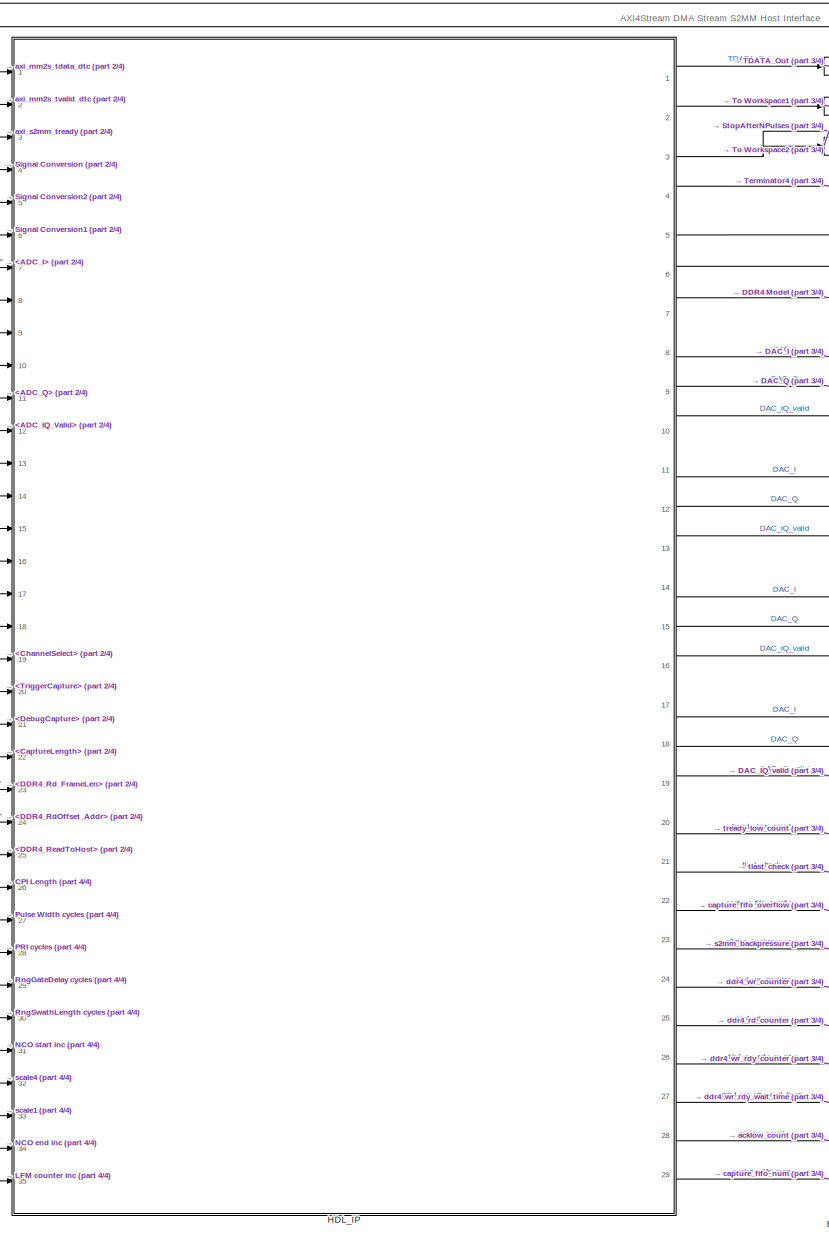
[diagram: root canvas - part 1/4, central region]
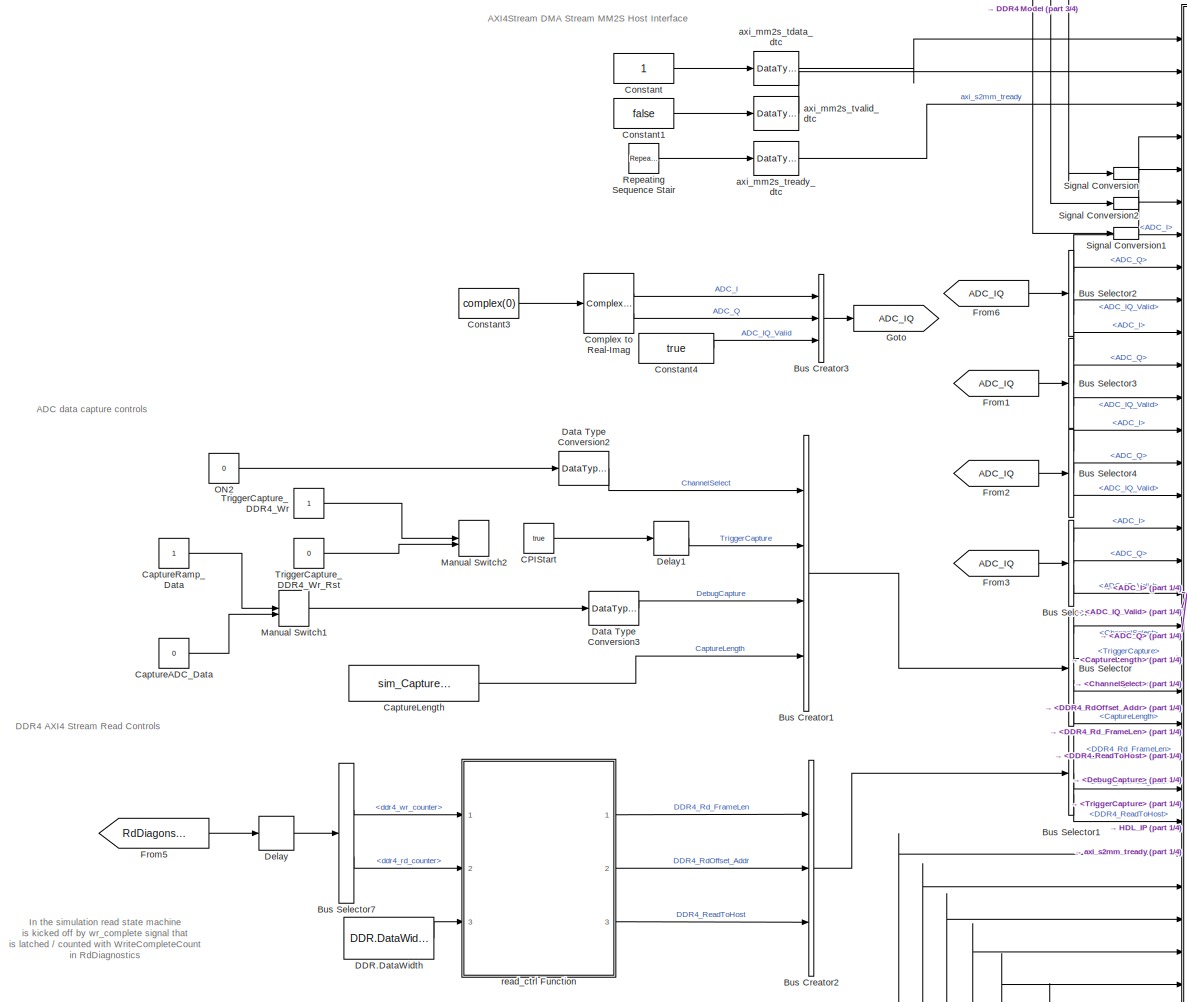
[diagram: root canvas - part 2/4, middle left region]
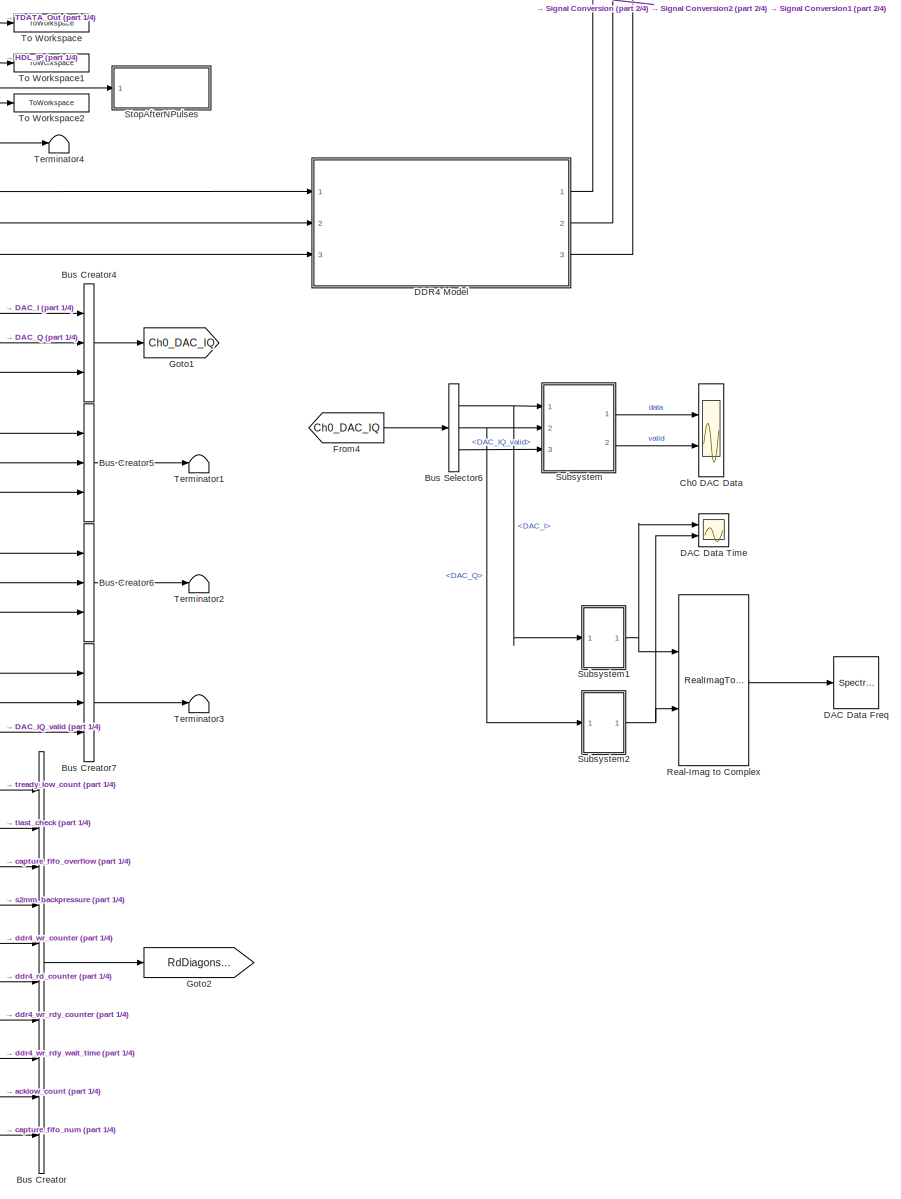
[diagram: root canvas - part 3/4, middle right region]
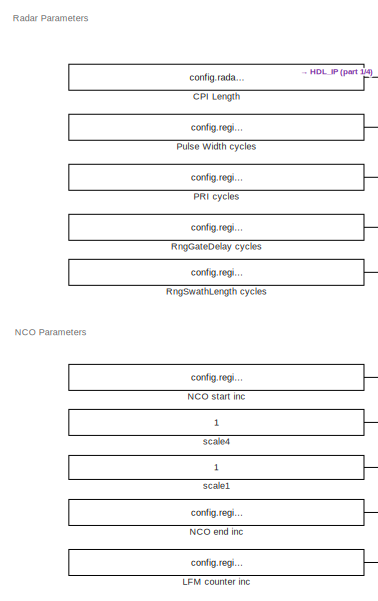
[diagram: root canvas - part 4/4, bottom left region]
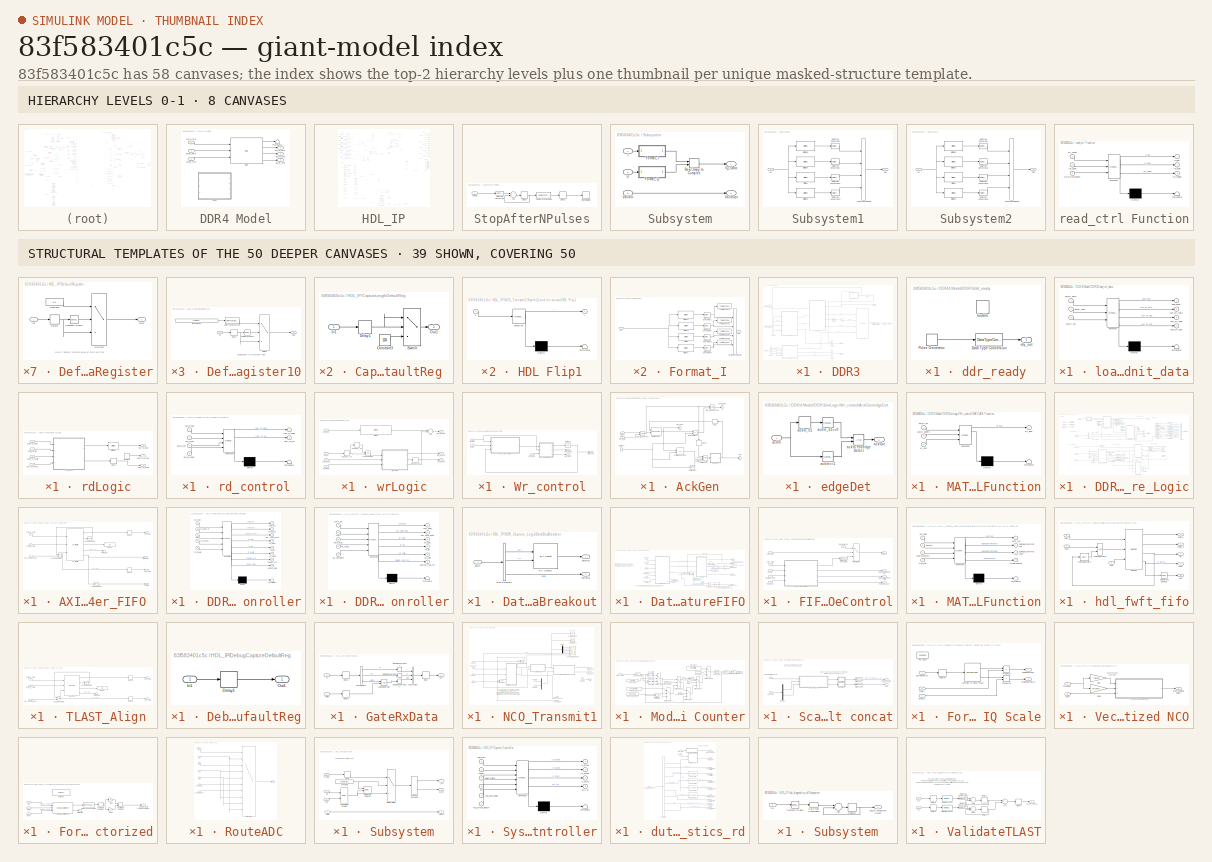
[diagram: thumbnail index - top-2 hierarchy levels (8 canvases) + 39 structural-template representatives of the remaining 50 canvases]
MODEL slx_83f583401c5c
KIND model
CONFIG AbsTol = auto
CONFIG EnableMultiTasking = off
CONFIG FixedStep = auto
CONFIG InitFcn = init_ADC_Capture_4x4_IQ_DDR4
CONFIG MaxStep = auto
CONFIG MinStep = auto
CONFIG RelTol = 1e-3
CONFIG SampleTimeConstraint = Unconstrained
CONFIG Solver = FixedStepDiscrete
CONFIG SolverName = FixedStepDiscrete
CONFIG StartTime = 0.0
CONFIG StopTime = inf
BLOCK [BusCreator] Bus Creator
  DisplayOption = bar
  InheritFromInputs = on
  Inputs = 10
  Ports = [10, 1]
BLOCK [BusCreator] Bus Creator1
  DisplayOption = bar
  InheritFromInputs = on
  Inputs = 4
  Ports = [4, 1]
BLOCK [BusCreator] Bus Creator2
  DisplayOption = bar
  InheritFromInputs = on
  Inputs = 3
  Ports = [3, 1]
BLOCK [BusCreator] Bus Creator3
  DisplayOption = bar
  InheritFromInputs = on
  Inputs = 3
  Ports = [3, 1]
BLOCK [BusCreator] Bus Creator4
  DisplayOption = bar
  InheritFromInputs = on
  Inputs = 3
  Ports = [3, 1]
BLOCK [BusCreator] Bus Creator5
  DisplayOption = bar
  InheritFromInputs = on
  Inputs = 3
  Ports = [3, 1]
BLOCK [BusCreator] Bus Creator6
  DisplayOption = bar
  InheritFromInputs = on
  Inputs = 3
  Ports = [3, 1]
BLOCK [BusCreator] Bus Creator7
  DisplayOption = bar
  InheritFromInputs = on
  Inputs = 3
  Ports = [3, 1]
BLOCK [BusSelector] Bus Selector
  OutputAsBus = off
  OutputSignals = ChannelSelect,TriggerCapture,DebugCapture,CaptureLength
  Ports = [1, 4]
BLOCK [BusSelector] Bus Selector1
  OutputAsBus = off
  OutputSignals = DDR4_Rd_FrameLen,DDR4_RdOffset_Addr,DDR4_ReadToHost
  Ports = [1, 3]
BLOCK [BusSelector] Bus Selector2
  OutputAsBus = off
  OutputSignals = ADC_I,ADC_Q,ADC_IQ_Valid
  Ports = [1, 3]
BLOCK [BusSelector] Bus Selector3
  OutputAsBus = off
  OutputSignals = ADC_I,ADC_Q,ADC_IQ_Valid
  Ports = [1, 3]
BLOCK [BusSelector] Bus Selector4
  OutputAsBus = off
  OutputSignals = ADC_I,ADC_Q,ADC_IQ_Valid
  Ports = [1, 3]
BLOCK [BusSelector] Bus Selector5
  OutputAsBus = off
  OutputSignals = ADC_I,ADC_Q,ADC_IQ_Valid
  Ports = [1, 3]
BLOCK [BusSelector] Bus Selector6
  OutputAsBus = off
  OutputSignals = DAC_I,DAC_Q,DAC_IQ_valid
  Ports = [1, 3]
BLOCK [BusSelector] Bus Selector7
  OutputAsBus = off
  OutputSignals = ddr4_wr_counter,ddr4_rd_counter
  Ports = [1, 2]
BLOCK [Constant] CPI Length
  OutDataTypeStr = uint32
  SampleTime = -1
  Value = config.radar.pulses_per_cpi
BLOCK [Constant] CPIStart
  OutDataTypeStr = boolean
  SampleTime = -1
  Value = true
BLOCK [Constant] CaptureADC_Data
  OutDataTypeStr = boolean
  SampleTime = -1
  Value = 0
BLOCK [Constant] CaptureLength
  OutDataTypeStr = uint32
  SampleTime = -1
  Value = sim_CaptureLength
BLOCK [Constant] CaptureRamp_Data
  OutDataTypeStr = boolean
  SampleTime = -1
BLOCK [Scope] Ch0 DAC Data
  DefaultConfigurationName = spbscopes.TimeScopeBlockCfg
  Floating = off
  NumInputPorts = 2
  Ports = [2]
  ScopeSpecificationString = spbscopes.TimeScopeBlockCfg('CurrentConfiguration', extmgr.ConfigurationSet(extmgr.Configuration('Core','General UI',true),extmgr.Configuration('Core','Source UI',true),extmgr.Configuration('Sources','WiredSimulink',true),extmgr.Configuration('Visuals','Time Domain',true,'DisplayLayoutDimensions',[2 1],'DisplayPropertyDefaults',struct('YLabelReal','Amplitude','XGrid',true,'YGrid',true,'PlotMagPhas...<+2110ch>
  UserDataPersistent = on
BLOCK [ComplexToRealImag] Complex to Real-Imag
  Ports = [1, 2]
BLOCK [Constant] Constant
  SampleTime = -1
BLOCK [Constant] Constant1
  SampleTime = -1
  Value = false
BLOCK [Constant] Constant3
  OutDataTypeStr = uint64
  SampleTime = 1
  Value = complex(0)
BLOCK [Constant] Constant4
  SampleTime = -1
  Value = true
BLOCK [SpectrumAnalyzer] DAC Data Freq
  Ports = [1]
  ScopeSpecificationString = spbscopes.SpectrumAnalyzerBlockCfg('CurrentConfiguration', extmgr.ConfigurationSet(extmgr.Configuration('Core','General UI',true),extmgr.Configuration('Core','Source UI',true),extmgr.Configuration('Sources','WiredSimulink',true),extmgr.Configuration('Sources','Simulink',false),extmgr.Configuration('Sources','SPTool',false),extmgr.Configuration('Sources','File',false),extmgr.Configuration('Sources'...<+3134ch>
BLOCK [Scope] DAC Data Time
  DefaultConfigurationName = spbscopes.TimeScopeBlockCfg
  Floating = off
  NumInputPorts = 2
  Ports = [2]
  ScopeSpecificationString = spbscopes.TimeScopeBlockCfg('CurrentConfiguration', extmgr.ConfigurationSet(extmgr.Configuration('Core','General UI',true,'FigureColor',[0.156862745098039 0.156862745098039 0.156862745098039]),extmgr.Configuration('Core','Source UI',true),extmgr.Configuration('Sources','WiredSimulink',true,'DataLoggingVariableName','ScopeData1'),extmgr.Configuration('Visuals','Time Domain',true,'DisplayPropertyDef...<+1933ch>
  UserDataPersistent = on
BLOCK [Constant] DDR.DataWidth
  Value = DDR.DataWidth
BLOCK [SubSystem] DDR4 Model
  Ports = [3, 3]
  RequestExecContextInheritance = off
BLOCK [Reference] DDR4 Model/DDR  REF=ddr4_behavioral_mdl/DDR  (lib defined in slx_fde7507dc806)
  Ports = [3, 4]
  SourceBlock = ddr4_behavioral_mdl/DDR
BLOCK [SubSystem] DDR4 Model/DDR3
  Commented = on
  Ports = [3, 4]
  RequestExecContextInheritance = off
  ShowPortLabels = FromPortBlockName
BLOCK [Reference] DDR4 Model/DDR3/Bit Slice1  REF=hdlsllib/Logic and Bit
Operations/Bit Slice
  Ports = [1, 1]
  SourceBlock = hdlsllib/Logic and Bit\nOperations/Bit Slice
  SourceProductBaseCode = HD
  SourceProductName = HDL Coder
  SourceType = Bit Slice
BLOCK [BusCreator] DDR4 Model/DDR3/Bus Creator
  DisplayOption = bar
  InheritFromInputs = on
  Inputs = 2
  Ports = [2, 1]
BLOCK [BusCreator] DDR4 Model/DDR3/Bus Creator1
  DisplayOption = bar
  InheritFromInputs = on
  Inputs = 2
  Ports = [2, 1]
BLOCK [BusSelector] DDR4 Model/DDR3/Bus Selector
  OutputAsBus = off
  OutputSignals = rd_addr,rd_len,rd_avalid,rd_dready
  Ports = [1, 4]
BLOCK [BusSelector] DDR4 Model/DDR3/Bus Selector1
  OutputAsBus = off
  OutputSignals = wr_addr,wr_len,wr_valid
  Ports = [1, 3]
BLOCK [DataTypeConversion] DDR4 Model/DDR3/Data Type Conversion
  RndMeth = Floor
  SaturateOnIntegerOverflow = off
BLOCK [Delay] DDR4 Model/DDR3/Delay
  InputPortMap = u0
  Ports = [1, 1]
BLOCK [Delay] DDR4 Model/DDR3/Delay1
  DelayLength = 1
  InputPortMap = u0
  Ports = [1, 1]
BLOCK [Delay] DDR4 Model/DDR3/Delay2
  DelayLength = 1
  InputPortMap = u0
  Ports = [1, 1]
BLOCK [Delay] DDR4 Model/DDR3/Delay3
  DelayLength = 1
  InputPortMap = u0
  Ports = [1, 1]
BLOCK [MATLABSystem] DDR4 Model/DDR3/MATLAB System
  MaskDisplay = disp(['Simple' char(10) 'Dual Port' char(10) 'RAM']);\nport_label('input',1,'din');\nport_label('input',2,'wr_addr');\nport_label('input',3,'wr_en');\nport_label('input',4,'rd_addr');\nport_label('output',1,'rd_dout');
  MaskType = hdl.RAM
  Ports = [4, 1]
  RAMInitialValue = 0
  RAMType = Simple dual port
  SimulateUsing = Code generation
  System = hdl.RAM
  WriteOutputValue = New data
BLOCK [Outport] DDR4 Model/DDR3/axi_rd_data
  IconDisplay = Port number
  OutDataTypeStr = fixdt(0,128,0)
  Port = 2
  VectorParamsAs1DForOutWhenUnconnected = off
BLOCK [Inport] DDR4 Model/DDR3/axi_rd_m2s
  IconDisplay = Port number
BLOCK [Outport] DDR4 Model/DDR3/axi_rd_s2m
  IconDisplay = Port number
  Port = 3
  VectorParamsAs1DForOutWhenUnconnected = off
BLOCK [Inport] DDR4 Model/DDR3/axi_wr_data
  IconDisplay = Port number
  OutDataTypeStr = fixdt(0,128,0)
  Port = 2
BLOCK [Inport] DDR4 Model/DDR3/axi_wr_m2s
  IconDisplay = Port number
  Port = 3
BLOCK [Outport] DDR4 Model/DDR3/axi_wr_s2m
  IconDisplay = Port number
  Port = 4
  VectorParamsAs1DForOutWhenUnconnected = off
BLOCK [SubSystem] DDR4 Model/DDR3/ddr_ready
  Ports = [0, 1, 1]
  RequestExecContextInheritance = off
BLOCK [DataTypeConversion] DDR4 Model/DDR3/ddr_ready/Data Type Conversion
  OutDataTypeStr = boolean
  RndMeth = Floor
  SaturateOnIntegerOverflow = off
BLOCK [EnablePort] DDR4 Model/DDR3/ddr_ready/Enable
  Ports = []
BLOCK [DiscretePulseGenerator] DDR4 Model/DDR3/ddr_ready/Pulse Generator
  Period = 1000
  Ports = [0, 1]
  PulseWidth = 1000 * READY_DUTY_CYL
  SampleTime = -1
BLOCK [Outport] DDR4 Model/DDR3/ddr_ready/rdy_out
  IconDisplay = Port number
  VectorParamsAs1DForOutWhenUnconnected = off
BLOCK [Outport] DDR4 Model/DDR3/load_done
  IconDisplay = Port number
  VectorParamsAs1DForOutWhenUnconnected = off
BLOCK [SubSystem] DDR4 Model/DDR3/load_init_data
  ErrorFcn = Stateflow.Translate.translate
  PermitHierarchicalResolution = ExplicitOnly
  Ports = [3, 4]
  RequestExecContextInheritance = off
  SFBlockType = MATLAB Function
  TreatAsAtomicUnit = on
BLOCK [Demux] DDR4 Model/DDR3/load_init_data/ Demux 
  Outputs = 1
  Ports = [1, 1]
BLOCK [S-Function] DDR4 Model/DDR3/load_init_data/ SFunction 
  EnableBusSupport = on
  FunctionName = sf_sfun
  Parameters = DDR3_DEPTH,INIT_ADDR,INIT_DATA,INIT_DDR3
  PortCounts = [3 5]
  Ports = [3, 5]
  SFcnIsStateOwnerBlock = off
  SFunctionDeploymentMode = off
  Tag = Stateflow S-Function 2
BLOCK [Terminator] DDR4 Model/DDR3/load_init_data/ Terminator 
BLOCK [Inport] DDR4 Model/DDR3/load_init_data/axi_wr_add
  IconDisplay = Port number
  Port = 2
BLOCK [Inport] DDR4 Model/DDR3/load_init_data/axi_wr_data
  IconDisplay = Port number
BLOCK [Inport] DDR4 Model/DDR3/load_init_data/axi_wr_val
  IconDisplay = Port number
  Port = 3
BLOCK [Outport] DDR4 Model/DDR3/load_init_data/load_done
  IconDisplay = Port number
  VectorParamsAs1DForOutWhenUnconnected = off
BLOCK [Outport] DDR4 Model/DDR3/load_init_data/ram_wr_add
  IconDisplay = Port number
  Port = 3
  VectorParamsAs1DForOutWhenUnconnected = off
BLOCK [Outport] DDR4 Model/DDR3/load_init_data/ram_wr_data
  IconDisplay = Port number
  Port = 2
  VectorParamsAs1DForOutWhenUnconnected = off
BLOCK [Outport] DDR4 Model/DDR3/load_init_data/ram_wr_enb
  IconDisplay = Port number
  Port = 4
  VectorParamsAs1DForOutWhenUnconnected = off
BLOCK [SubSystem] DDR4 Model/DDR3/rdLogic
  Ports = [4, 3]
  RequestExecContextInheritance = off
BLOCK [Reference] DDR4 Model/DDR3/rdLogic/Bit Slice1  REF=hdlsllib/Logic and Bit
Operations/Bit Slice
  Ports = [1, 1]
  SourceBlock = hdlsllib/Logic and Bit\nOperations/Bit Slice
  SourceProductBaseCode = HD
  SourceProductName = HDL Coder
  SourceType = Bit Slice
BLOCK [Constant] DDR4 Model/DDR3/rdLogic/Constant
  OutDataTypeStr = boolean
  SampleTime = -1
BLOCK [Delay] DDR4 Model/DDR3/rdLogic/Delay2
  InputPortMap = u0
  Ports = [1, 1]
BLOCK [Inport] DDR4 Model/DDR3/rdLogic/axi_rd_dready
  IconDisplay = Port number
  Port = 4
BLOCK [Inport] DDR4 Model/DDR3/rdLogic/axim_rd_addr
  IconDisplay = Port number
BLOCK [Outport] DDR4 Model/DDR3/rdLogic/axim_rd_aready
  IconDisplay = Port number
  Port = 2
  VectorParamsAs1DForOutWhenUnconnected = off
BLOCK [Inport] DDR4 Model/DDR3/rdLogic/axim_rd_avalid
  IconDisplay = Port number
  Port = 3
BLOCK [Outport] DDR4 Model/DDR3/rdLogic/axim_rd_dvalid
  IconDisplay = Port number
  Port = 3
  VectorParamsAs1DForOutWhenUnconnected = off
BLOCK [Inport] DDR4 Model/DDR3/rdLogic/axim_rd_len
  IconDisplay = Port number
  Port = 2
BLOCK [Outport] DDR4 Model/DDR3/rdLogic/ram_rd_addr
  IconDisplay = Port number
  VectorParamsAs1DForOutWhenUnconnected = off
BLOCK [SubSystem] DDR4 Model/DDR3/rdLogic/rd_control
  ErrorFcn = Stateflow.Translate.translate
  PermitHierarchicalResolution = ExplicitOnly
  Ports = [4, 2]
  RequestExecContextInheritance = off
  SFBlockType = MATLAB Function
  TreatAsAtomicUnit = on
BLOCK [Demux] DDR4 Model/DDR3/rdLogic/rd_control/ Demux 
  Outputs = 1
  Ports = [1, 1]
BLOCK [S-Function] DDR4 Model/DDR3/rdLogic/rd_control/ SFunction 
  EnableBusSupport = on
  FunctionName = sf_sfun
  Parameters = WR_RD_DATAWIDTH,toggle
  PortCounts = [4 3]
  Ports = [4, 3]
  SFcnIsStateOwnerBlock = off
  SFunctionDeploymentMode = off
  Tag = Stateflow S-Function 3
BLOCK [Terminator] DDR4 Model/DDR3/rdLogic/rd_control/ Terminator 
BLOCK [Inport] DDR4 Model/DDR3/rdLogic/rd_control/axi_rd_add
  IconDisplay = Port number
BLOCK [Inport] DDR4 Model/DDR3/rdLogic/rd_control/axi_rd_len
  IconDisplay = Port number
  Port = 2
BLOCK [Inport] DDR4 Model/DDR3/rdLogic/rd_control/axi_rd_ready
  IconDisplay = Port number
  Port = 4
BLOCK [Inport] DDR4 Model/DDR3/rdLogic/rd_control/axi_rd_val
  IconDisplay = Port number
  Port = 3
BLOCK [Outport] DDR4 Model/DDR3/rdLogic/rd_control/ram_rd_addr
  IconDisplay = Port number
  VectorParamsAs1DForOutWhenUnconnected = off
BLOCK [Outport] DDR4 Model/DDR3/rdLogic/rd_control/ram_rd_val
  IconDisplay = Port number
  Port = 2
  VectorParamsAs1DForOutWhenUnconnected = off
BLOCK [SubSystem] DDR4 Model/DDR3/wrLogic
  Ports = [4, 3]
  RequestExecContextInheritance = off
BLOCK [Sum] DDR4 Model/DDR3/wrLogic/Add
  AccumDataTypeStr = uint32
  InputSameDT = off
  OutDataTypeStr = Inherit: Inherit via internal rule
  Ports = [2, 1]
  SaturateOnIntegerOverflow = off
BLOCK [Reference] DDR4 Model/DDR3/wrLogic/Bit Shift  REF=hdlsllib/Logic and Bit
Operations/Bit Shift
  Ports = [1, 1]
  SourceBlock = hdlsllib/Logic and Bit\nOperations/Bit Shift
  SourceProductBaseCode = HD
  SourceProductName = HDL Coder
  SourceType = Bit Shift
BLOCK [Logic] DDR4 Model/DDR3/wrLogic/Logical Operator
  AllPortsSameDT = off
  IconShape = distinctive
  Operator = OR
  OutDataTypeStr = boolean
  Ports = [2, 1]
BLOCK [SubSystem] DDR4 Model/DDR3/wrLogic/Wr_control
  Ports = [3, 3]
  RequestExecContextInheritance = off
BLOCK [SubSystem] DDR4 Model/DDR3/wrLogic/Wr_control/AckGen
  Ports = [3, 3]
  RequestExecContextInheritance = off
BLOCK [Delay] DDR4 Model/DDR3/wrLogic/Wr_control/AckGen/Delay
  DelayLength = 1
  InputPortMap = u0
  Ports = [1, 1]
BLOCK [Delay] DDR4 Model/DDR3/wrLogic/Wr_control/AckGen/Delay1
  DelayLength = 1
  InputPortMap = u0
  Ports = [1, 1]
BLOCK [Outport] DDR4 Model/DDR3/wrLogic/Wr_control/AckGen/ValAddEnb
  IconDisplay = Port number
  Port = 2
  VectorParamsAs1DForOutWhenUnconnected = off
BLOCK [Reference] DDR4 Model/DDR3/wrLogic/Wr_control/AckGen/ValwrLenCnt  REF=hdlsllib/Sources/HDL Counter
  Ports = [2, 1]
  SourceBlock = hdlsllib/Sources/HDL Counter
  SourceProductBaseCode = HD
  SourceProductName = HDL Coder
  SourceType = HDL Counter
BLOCK [Outport] DDR4 Model/DDR3/wrLogic/Wr_control/AckGen/ack
  IconDisplay = Port number
  VectorParamsAs1DForOutWhenUnconnected = off
BLOCK [Inport] DDR4 Model/DDR3/wrLogic/Wr_control/AckGen/axiWrLen
  IconDisplay = Port number
BLOCK [Reference] DDR4 Model/DDR3/wrLogic/Wr_control/AckGen/axiWrLen!=0  REF=simulink/Logic and Bit
Operations/Compare
To Constant
  Ports = [1, 1]
  SourceBlock = simulink/Logic and Bit\nOperations/Compare\nTo Constant
  SourceProductBaseCode = SL
  SourceProductName = Simulink
  SourceType = Compare To Constant
BLOCK [Logic] DDR4 Model/DDR3/wrLogic/Wr_control/AckGen/axiWrLen-1==cnt & axiWrLen!=0 
  AllPortsSameDT = off
  IconShape = distinctive
  Inputs = 3
  OutDataTypeStr = boolean
  Ports = [3, 1]
BLOCK [RelationalOperator] DDR4 Model/DDR3/wrLogic/Wr_control/AckGen/axiWrLen==cnt+1
  InputSameDT = off
  Operator = ==
  OutDataTypeStr = boolean
  Ports = [2, 1]
BLOCK [Inport] DDR4 Model/DDR3/wrLogic/Wr_control/AckGen/ddr_wr_rdy
  IconDisplay = Port number
  Port = 3
BLOCK [SubSystem] DDR4 Model/DDR3/wrLogic/Wr_control/AckGen/edgeDet
  Ports = [1, 1]
  RequestExecContextInheritance = off
BLOCK [Reference] DDR4 Model/DDR3/wrLogic/Wr_control/AckGen/edgeDet/ ackIn==1  REF=simulink/Logic and Bit
Operations/Compare
To Constant
  Ports = [1, 1]
  SourceBlock = simulink/Logic and Bit\nOperations/Compare\nTo Constant
  SourceProductBaseCode = SL
  SourceProductName = Simulink
  SourceType = Compare To Constant
BLOCK [Inport] DDR4 Model/DDR3/wrLogic/Wr_control/AckGen/edgeDet/ackIn
  IconDisplay = Port number
BLOCK [Logic] DDR4 Model/DDR3/wrLogic/Wr_control/AckGen/edgeDet/ackIn Posedge Detect
  AllPortsSameDT = off
  IconShape = distinctive
  OutDataTypeStr = boolean
  Ports = [2, 1]
BLOCK [Delay] DDR4 Model/DDR3/wrLogic/Wr_control/AckGen/edgeDet/ackIn_d1
  DelayLength = 1
  InputPortMap = u0
  Ports = [1, 1]
BLOCK [Reference] DDR4 Model/DDR3/wrLogic/Wr_control/AckGen/edgeDet/ackIn_d1==0  REF=simulink/Logic and Bit
Operations/Compare
To Constant
  Ports = [1, 1]
  SourceBlock = simulink/Logic and Bit\nOperations/Compare\nTo Constant
  SourceProductBaseCode = SL
  SourceProductName = Simulink
  SourceType = Compare To Constant
BLOCK [Outport] DDR4 Model/DDR3/wrLogic/Wr_control/AckGen/edgeDet/ackOut
  IconDisplay = Port number
  VectorParamsAs1DForOutWhenUnconnected = off
BLOCK [RelationalOperator] DDR4 Model/DDR3/wrLogic/Wr_control/AckGen/if cnt < axiWrLen
  InputSameDT = off
  Operator = <=
  OutDataTypeStr = boolean
  Ports = [2, 1]
BLOCK [Outport] DDR4 Model/DDR3/wrLogic/Wr_control/AckGen/ram_addr
  IconDisplay = Port number
  Port = 3
  VectorParamsAs1DForOutWhenUnconnected = off
BLOCK [Logic] DDR4 Model/DDR3/wrLogic/Wr_control/AckGen/ram_wr_enb cond
  AllPortsSameDT = off
  IconShape = distinctive
  OutDataTypeStr = boolean
  Ports = [2, 1]
BLOCK [Logic] DDR4 Model/DDR3/wrLogic/Wr_control/AckGen/ram_wr_enb cond1
  AllPortsSameDT = off
  IconShape = distinctive
  OutDataTypeStr = boolean
  Ports = [2, 1]
BLOCK [Inport] DDR4 Model/DDR3/wrLogic/Wr_control/AckGen/wrEnb
  IconDisplay = Port number
  Port = 2
BLOCK [SubSystem] DDR4 Model/DDR3/wrLogic/Wr_control/MATLAB Function
  ErrorFcn = Stateflow.Translate.translate
  PermitHierarchicalResolution = ExplicitOnly
  Ports = [3, 1]
  RequestExecContextInheritance = off
  SFBlockType = MATLAB Function
  TreatAsAtomicUnit = on
BLOCK [Demux] DDR4 Model/DDR3/wrLogic/Wr_control/MATLAB Function/ Demux 
  Outputs = 1
  Ports = [1, 1]
BLOCK [S-Function] DDR4 Model/DDR3/wrLogic/Wr_control/MATLAB Function/ SFunction 
  EnableBusSupport = on
  FunctionName = sf_sfun
  PortCounts = [3 2]
  Ports = [3, 2]
  SFcnIsStateOwnerBlock = off
  SFunctionDeploymentMode = off
  Tag = Stateflow S-Function 4
BLOCK [Terminator] DDR4 Model/DDR3/wrLogic/Wr_control/MATLAB Function/ Terminator 
BLOCK [Inport] DDR4 Model/DDR3/wrLogic/Wr_control/MATLAB Function/axi_wr_en
  IconDisplay = Port number
BLOCK [Inport] DDR4 Model/DDR3/wrLogic/Wr_control/MATLAB Function/axi_wr_length
  IconDisplay = Port number
  Port = 2
BLOCK [Inport] DDR4 Model/DDR3/wrLogic/Wr_control/MATLAB Function/wr_ack
  IconDisplay = Port number
  Port = 3
BLOCK [Outport] DDR4 Model/DDR3/wrLogic/Wr_control/MATLAB Function/wr_leng
  IconDisplay = Port number
  VectorParamsAs1DForOutWhenUnconnected = off
BLOCK [UnitDelay] DDR4 Model/DDR3/wrLogic/Wr_control/Unit Delay
  HasFrameUpgradeWarning = on
  SampleTime = -1
BLOCK [Outport] DDR4 Model/DDR3/wrLogic/Wr_control/axim_ack
  IconDisplay = Port number
  Port = 2
  VectorParamsAs1DForOutWhenUnconnected = off
BLOCK [Inport] DDR4 Model/DDR3/wrLogic/Wr_control/ddr_wr_rdy
  IconDisplay = Port number
BLOCK [Outport] DDR4 Model/DDR3/wrLogic/Wr_control/ram_addr
  IconDisplay = Port number
  Port = 3
  VectorParamsAs1DForOutWhenUnconnected = off
BLOCK [Outport] DDR4 Model/DDR3/wrLogic/Wr_control/valAddEnb
  IconDisplay = Port number
  VectorParamsAs1DForOutWhenUnconnected = off
BLOCK [Inport] DDR4 Model/DDR3/wrLogic/Wr_control/wr_enb
  IconDisplay = Port number
  Port = 2
BLOCK [Inport] DDR4 Model/DDR3/wrLogic/Wr_control/wr_len
  IconDisplay = Port number
  Port = 3
BLOCK [Inport] DDR4 Model/DDR3/wrLogic/axi_addr
  IconDisplay = Port number
  Port = 2
BLOCK [Outport] DDR4 Model/DDR3/wrLogic/axi_wr_ack
  IconDisplay = Port number
  Port = 3
  VectorParamsAs1DForOutWhenUnconnected = off
BLOCK [Inport] DDR4 Model/DDR3/wrLogic/axi_wr_enb
  IconDisplay = Port number
  Port = 4
BLOCK [Inport] DDR4 Model/DDR3/wrLogic/axi_wr_len
  IconDisplay = Port number
  Port = 3
BLOCK [Delay] DDR4 Model/DDR3/wrLogic/ddr_ack_d1
  DelayLength = 1
  InputPortMap = u0
  Ports = [1, 1]
BLOCK [Inport] DDR4 Model/DDR3/wrLogic/ddr_rdy
  IconDisplay = Port number
BLOCK [Delay] DDR4 Model/DDR3/wrLogic/ddr_reday_d1
  DelayLength = 1
  InputPortMap = u0
  Ports = [1, 1]
BLOCK [Delay] DDR4 Model/DDR3/wrLogic/ddr_reday_d6
  DelayLength = 4
  InputPortMap = u0
  Ports = [1, 1]
BLOCK [Outport] DDR4 Model/DDR3/wrLogic/ram_wr_addr
  IconDisplay = Port number
  VectorParamsAs1DForOutWhenUnconnected = off
BLOCK [Outport] DDR4 Model/DDR3/wrLogic/ram_wr_enb
  IconDisplay = Port number
  Port = 2
  VectorParamsAs1DForOutWhenUnconnected = off
BLOCK [Delay] DDR4 Model/DDR3/wr_addr-3
  DelayLength = 1
  InputPortMap = u0
  Ports = [1, 1]
BLOCK [Terminator] DDR4 Model/Terminator
BLOCK [Outport] DDR4 Model/axi_rd_data
  IconDisplay = Port number
BLOCK [Inport] DDR4 Model/axi_rd_m2s
  IconDisplay = Port number
BLOCK [Outport] DDR4 Model/axi_rd_s2m 
  IconDisplay = Port number
  Port = 2
BLOCK [Inport] DDR4 Model/axi_wr_data
  IconDisplay = Port number
  Port = 2
BLOCK [Inport] DDR4 Model/axi_wr_m2s
  IconDisplay = Port number
  Port = 3
BLOCK [Outport] DDR4 Model/axi_wr_s2m 
  IconDisplay = Port number
  Port = 3
BLOCK [DataTypeConversion] Data Type Conversion2
  OutDataTypeStr = uint32
  RndMeth = Floor
  SaturateOnIntegerOverflow = off
BLOCK [DataTypeConversion] Data Type Conversion3
  OutDataTypeStr = boolean
  RndMeth = Floor
  SaturateOnIntegerOverflow = off
BLOCK [Delay] Delay
  DelayLength = 1
  InputPortMap = u0
  Ports = [1, 1]
BLOCK [Delay] Delay1
  DelayLength = 10
  InputPortMap = u0
  Ports = [1, 1]
BLOCK [From] From1
  GotoTag = ADC_IQ
BLOCK [From] From2
  GotoTag = ADC_IQ
BLOCK [From] From3
  GotoTag = ADC_IQ
BLOCK [From] From4
  GotoTag = Ch0_DAC_IQ
BLOCK [From] From5
  GotoTag = RdDiagonstics
BLOCK [From] From6
  GotoTag = ADC_IQ
BLOCK [Goto] Goto
  GotoTag = ADC_IQ
BLOCK [Goto] Goto1
  GotoTag = Ch0_DAC_IQ
BLOCK [Goto] Goto2
  GotoTag = RdDiagonstics
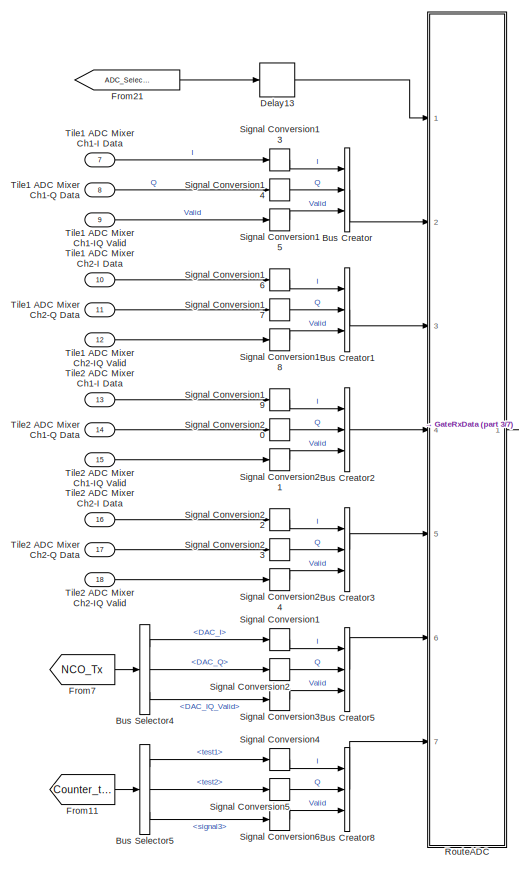
[diagram: HDL_IP - part 1/7, top left region]
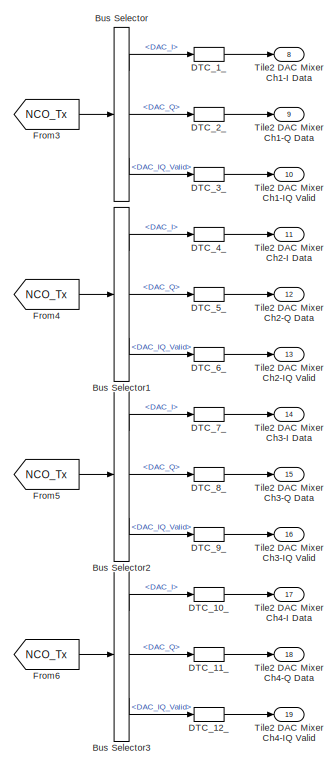
[diagram: HDL_IP - part 2/7, top right region]
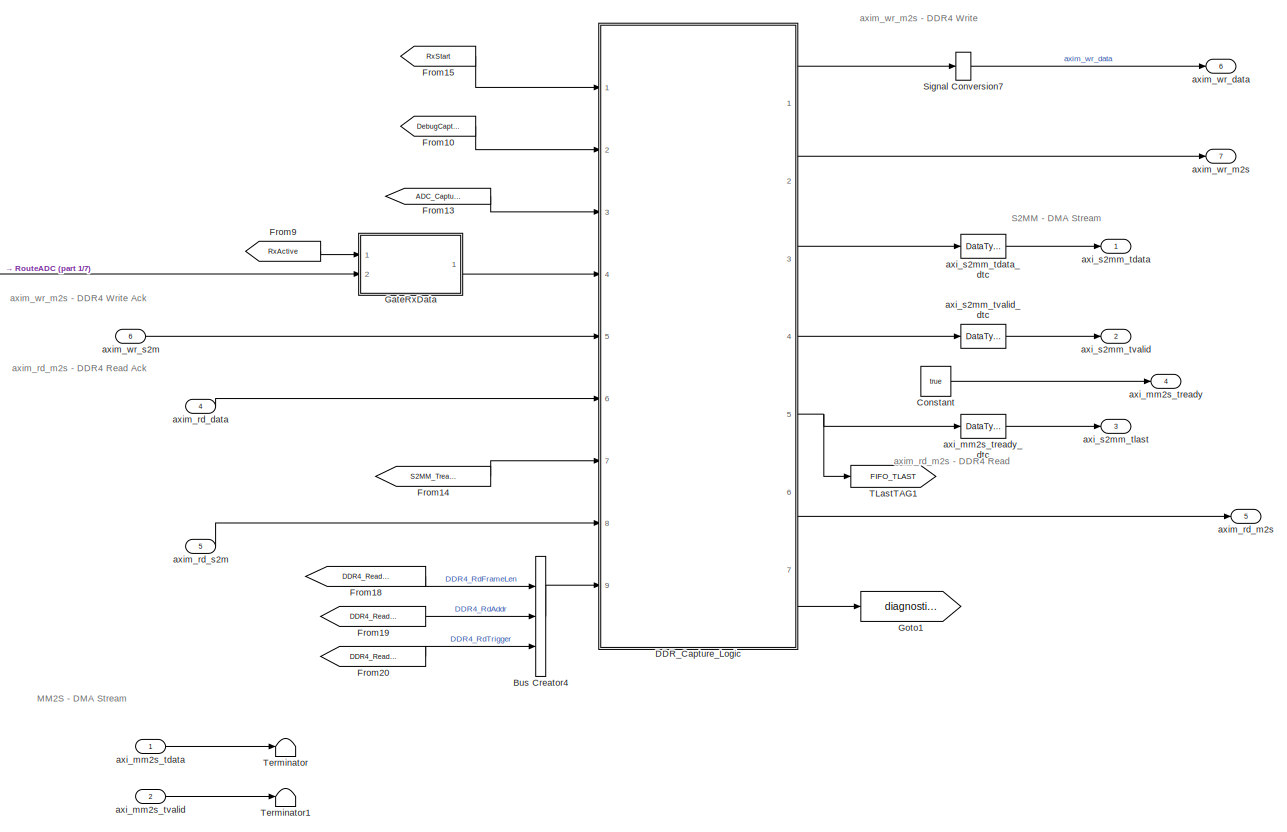
[diagram: HDL_IP - part 3/7, top center region]
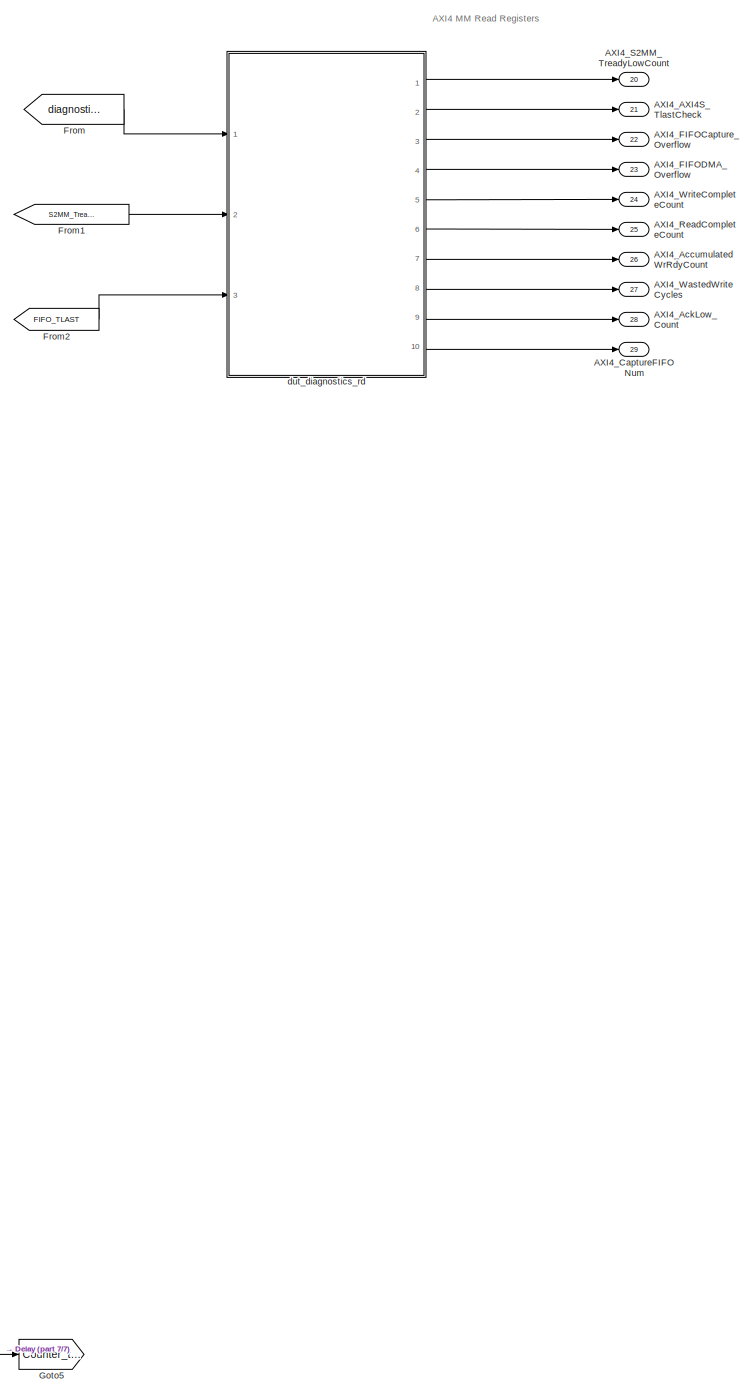
[diagram: HDL_IP - part 4/7, bottom right region]
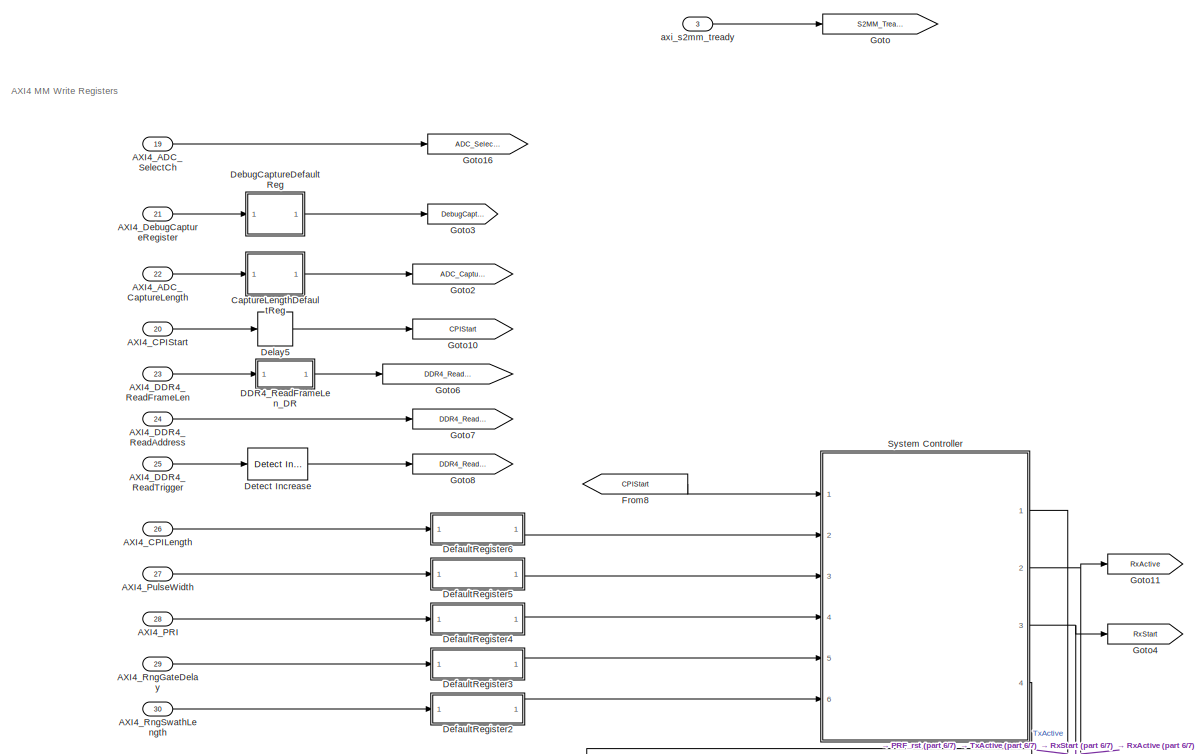
[diagram: HDL_IP - part 5/7, middle left region]
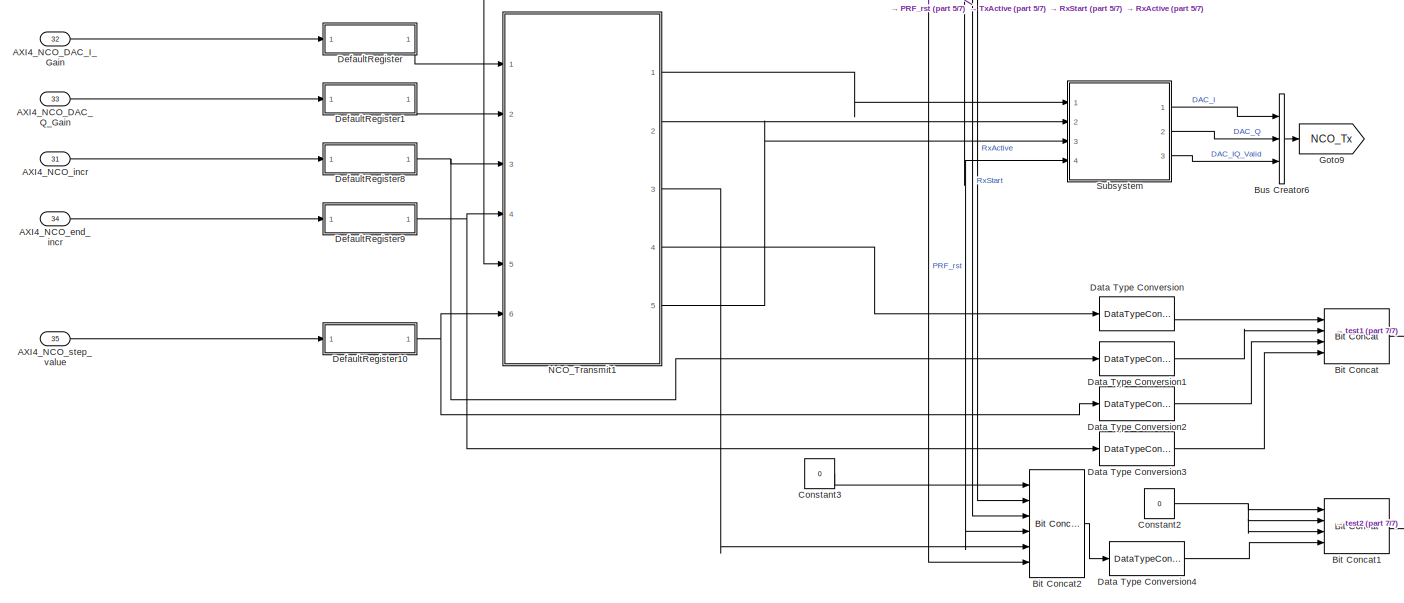
[diagram: HDL_IP - part 6/7, bottom left region]
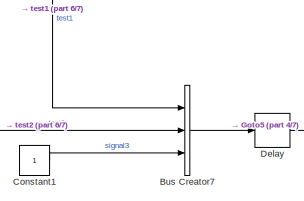
[diagram: HDL_IP - part 7/7, bottom center region]
BLOCK [SubSystem] HDL_IP
  Ports = [35, 29]
  RequestExecContextInheritance = off
  TreatAsAtomicUnit = on
BLOCK [Inport] HDL_IP/AXI4_ADC_CaptureLength
  IconDisplay = Port number
  Port = 22
BLOCK [Inport] HDL_IP/AXI4_ADC_SelectCh
  IconDisplay = Port number
  Port = 19
BLOCK [Outport] HDL_IP/AXI4_AXI4S_TlastCheck
  IconDisplay = Port number
  Port = 21
  VectorParamsAs1DForOutWhenUnconnected = off
BLOCK [Outport] HDL_IP/AXI4_AccumulatedWrRdyCount
  IconDisplay = Port number
  Port = 26
  VectorParamsAs1DForOutWhenUnconnected = off
BLOCK [Outport] HDL_IP/AXI4_AckLow_Count
  IconDisplay = Port number
  Port = 28
  VectorParamsAs1DForOutWhenUnconnected = off
BLOCK [Inport] HDL_IP/AXI4_CPILength
  IconDisplay = Port number
  Port = 26
BLOCK [Inport] HDL_IP/AXI4_CPIStart
  IconDisplay = Port number
  Port = 20
BLOCK [Outport] HDL_IP/AXI4_CaptureFIFONum
  IconDisplay = Port number
  Port = 29
  VectorParamsAs1DForOutWhenUnconnected = off
BLOCK [Inport] HDL_IP/AXI4_DDR4_ReadAddress
  IconDisplay = Port number
  Port = 24
BLOCK [Inport] HDL_IP/AXI4_DDR4_ReadFrameLen
  IconDisplay = Port number
  Port = 23
BLOCK [Inport] HDL_IP/AXI4_DDR4_ReadTrigger
  IconDisplay = Port number
  Port = 25
BLOCK [Inport] HDL_IP/AXI4_DebugCaptureRegister
  IconDisplay = Port number
  Port = 21
BLOCK [Outport] HDL_IP/AXI4_FIFOCapture_Overflow
  IconDisplay = Port number
  Port = 22
  VectorParamsAs1DForOutWhenUnconnected = off
BLOCK [Outport] HDL_IP/AXI4_FIFODMA_Overflow
  IconDisplay = Port number
  Port = 23
  VectorParamsAs1DForOutWhenUnconnected = off
BLOCK [Inport] HDL_IP/AXI4_NCO_DAC_I_Gain
  IconDisplay = Port number
  Port = 32
BLOCK [Inport] HDL_IP/AXI4_NCO_DAC_Q_Gain
  IconDisplay = Port number
  Port = 33
BLOCK [Inport] HDL_IP/AXI4_NCO_end_incr
  IconDisplay = Port number
  Port = 34
BLOCK [Inport] HDL_IP/AXI4_NCO_incr
  IconDisplay = Port number
  Port = 31
BLOCK [Inport] HDL_IP/AXI4_NCO_step_value
  IconDisplay = Port number
  Port = 35
BLOCK [Inport] HDL_IP/AXI4_PRI
  IconDisplay = Port number
  Port = 28
BLOCK [Inport] HDL_IP/AXI4_PulseWidth
  IconDisplay = Port number
  Port = 27
BLOCK [Outport] HDL_IP/AXI4_ReadCompleteCount
  IconDisplay = Port number
  Port = 25
  VectorParamsAs1DForOutWhenUnconnected = off
BLOCK [Inport] HDL_IP/AXI4_RngGateDelay
  IconDisplay = Port number
  Port = 29
BLOCK [Inport] HDL_IP/AXI4_RngSwathLength
  IconDisplay = Port number
  Port = 30
BLOCK [Outport] HDL_IP/AXI4_S2MM_TreadyLowCount
  IconDisplay = Port number
  Port = 20
  VectorParamsAs1DForOutWhenUnconnected = off
BLOCK [Outport] HDL_IP/AXI4_WastedWriteCycles
  IconDisplay = Port number
  Port = 27
  VectorParamsAs1DForOutWhenUnconnected = off
BLOCK [Outport] HDL_IP/AXI4_WriteCompleteCount
  IconDisplay = Port number
  Port = 24
  VectorParamsAs1DForOutWhenUnconnected = off
BLOCK [Reference] HDL_IP/Bit Concat  REF=hdlsllib/Logic and Bit
Operations/Bit Concat
  Ports = [4, 1]
  SourceBlock = hdlsllib/Logic and Bit\nOperations/Bit Concat
  SourceProductBaseCode = SL
  SourceProductName = Simulink
  SourceType = Bit Concat
BLOCK [Reference] HDL_IP/Bit Concat1  REF=hdlsllib/Logic and Bit
Operations/Bit Concat
  Ports = [4, 1]
  SourceBlock = hdlsllib/Logic and Bit\nOperations/Bit Concat
  SourceProductBaseCode = SL
  SourceProductName = Simulink
  SourceType = Bit Concat
BLOCK [Reference] HDL_IP/Bit Concat2  REF=hdlsllib/Logic and Bit
Operations/Bit Concat
  Ports = [6, 1]
  SourceBlock = hdlsllib/Logic and Bit\nOperations/Bit Concat
  SourceProductBaseCode = SL
  SourceProductName = Simulink
  SourceType = Bit Concat
BLOCK [BusCreator] HDL_IP/Bus Creator
  DisplayOption = bar
  InheritFromInputs = on
  Inputs = 3
  Ports = [3, 1]
BLOCK [BusCreator] HDL_IP/Bus Creator1
  DisplayOption = bar
  InheritFromInputs = on
  Inputs = 3
  Ports = [3, 1]
BLOCK [BusCreator] HDL_IP/Bus Creator2
  DisplayOption = bar
  InheritFromInputs = on
  Inputs = 3
  Ports = [3, 1]
BLOCK [BusCreator] HDL_IP/Bus Creator3
  DisplayOption = bar
  InheritFromInputs = on
  Inputs = 3
  Ports = [3, 1]
BLOCK [BusCreator] HDL_IP/Bus Creator4
  DisplayOption = bar
  InheritFromInputs = on
  Inputs = 3
  Ports = [3, 1]
BLOCK [BusCreator] HDL_IP/Bus Creator5
  DisplayOption = bar
  InheritFromInputs = on
  Inputs = 3
  Ports = [3, 1]
BLOCK [BusCreator] HDL_IP/Bus Creator6
  DisplayOption = bar
  InheritFromInputs = on
  Inputs = 3
  Ports = [3, 1]
BLOCK [BusCreator] HDL_IP/Bus Creator7
  DisplayOption = bar
  InheritFromInputs = on
  Inputs = 3
  Ports = [3, 1]
BLOCK [BusCreator] HDL_IP/Bus Creator8
  DisplayOption = bar
  InheritFromInputs = on
  Inputs = 3
  Ports = [3, 1]
BLOCK [BusSelector] HDL_IP/Bus Selector
  OutputAsBus = off
  OutputSignals = DAC_I,DAC_Q,DAC_IQ_Valid
  Ports = [1, 3]
BLOCK [BusSelector] HDL_IP/Bus Selector1
  OutputAsBus = off
  OutputSignals = DAC_I,DAC_Q,DAC_IQ_Valid
  Ports = [1, 3]
BLOCK [BusSelector] HDL_IP/Bus Selector2
  OutputAsBus = off
  OutputSignals = DAC_I,DAC_Q,DAC_IQ_Valid
  Ports = [1, 3]
BLOCK [BusSelector] HDL_IP/Bus Selector3
  OutputAsBus = off
  OutputSignals = DAC_I,DAC_Q,DAC_IQ_Valid
  Ports = [1, 3]
BLOCK [BusSelector] HDL_IP/Bus Selector4
  OutputAsBus = off
  OutputSignals = DAC_I,DAC_Q,DAC_IQ_Valid
  Ports = [1, 3]
BLOCK [BusSelector] HDL_IP/Bus Selector5
  OutputAsBus = off
  OutputSignals = test1,test2,signal3
  Ports = [1, 3]
BLOCK [SubSystem] HDL_IP/CaptureLengthDefaultReg 
  Ports = [1, 1]
  RequestExecContextInheritance = off
BLOCK [Constant] HDL_IP/CaptureLengthDefaultReg /Constant3
  OutDataTypeStr = uint32
  SampleTime = -1
  Value = 1024
BLOCK [Delay] HDL_IP/CaptureLengthDefaultReg /Delay1
  DelayLength = 1
  InputPortMap = u0
  Ports = [1, 1]
BLOCK [Inport] HDL_IP/CaptureLengthDefaultReg /In1
  IconDisplay = Port number
BLOCK [Outport] HDL_IP/CaptureLengthDefaultReg /Out1
  IconDisplay = Port number
  VectorParamsAs1DForOutWhenUnconnected = off
BLOCK [Switch] HDL_IP/CaptureLengthDefaultReg /Switch
  Criteria = u2 ~= 0
  InputSameDT = off
  SaturateOnIntegerOverflow = off
BLOCK [Constant] HDL_IP/Constant
  SampleTime = -1
  Value = true
BLOCK [Constant] HDL_IP/Constant1
  OutDataTypeStr = boolean
BLOCK [Constant] HDL_IP/Constant2
  OutDataTypeStr = fixdt(1,16)
  Value = 0
BLOCK [Constant] HDL_IP/Constant3
  OutDataTypeStr = fixdt(1,11)
  SampleTime = -1
  Value = 0
BLOCK [SubSystem] HDL_IP/DDR4_ReadFrameLen_DR
  Ports = [1, 1]
  RequestExecContextInheritance = off
BLOCK [Constant] HDL_IP/DDR4_ReadFrameLen_DR/Constant3
  OutDataTypeStr = uint32
  SampleTime = -1
  Value = 1024
BLOCK [Delay] HDL_IP/DDR4_ReadFrameLen_DR/Delay1
  DelayLength = 1
  InputPortMap = u0
  Ports = [1, 1]
BLOCK [Inport] HDL_IP/DDR4_ReadFrameLen_DR/In1
  IconDisplay = Port number
BLOCK [Outport] HDL_IP/DDR4_ReadFrameLen_DR/Out1
  IconDisplay = Port number
  VectorParamsAs1DForOutWhenUnconnected = off
BLOCK [Switch] HDL_IP/DDR4_ReadFrameLen_DR/Switch
  Criteria = u2 ~= 0
  InputSameDT = off
  SaturateOnIntegerOverflow = off
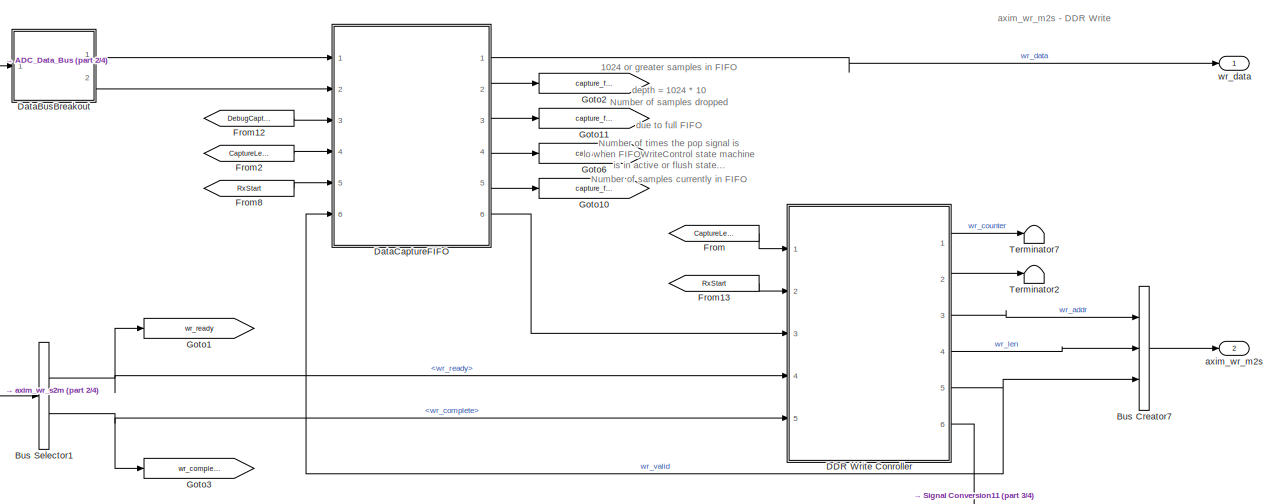
[diagram: HDL_IP/DDR_Capture_Logic - part 1/4, top center region]
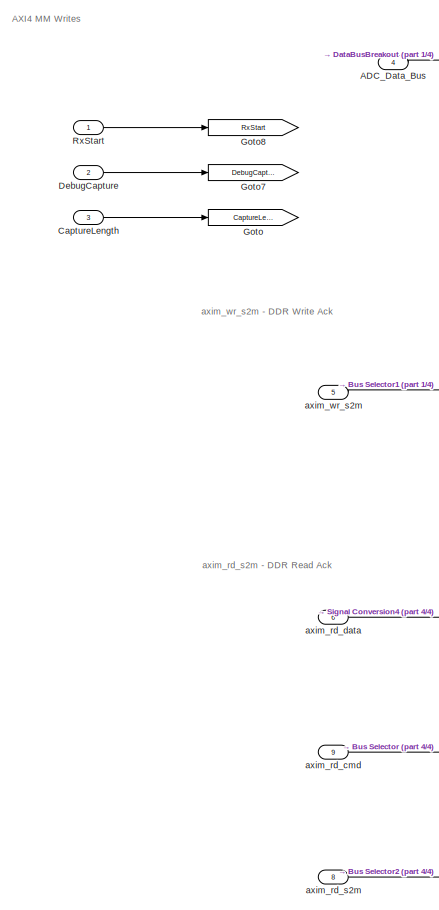
[diagram: HDL_IP/DDR_Capture_Logic - part 2/4, left side, full height]
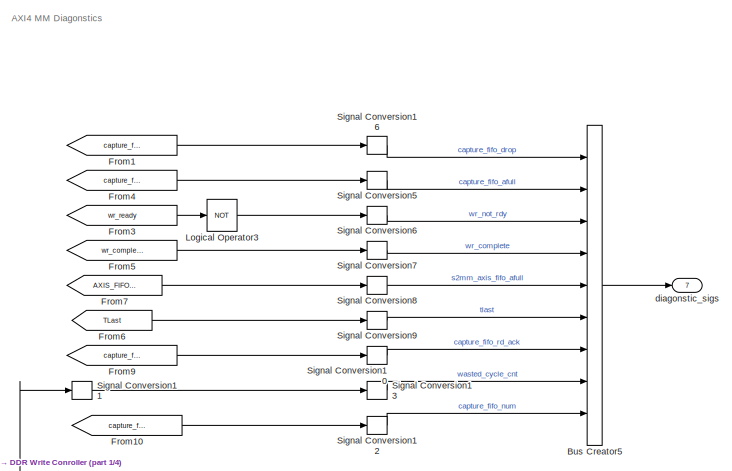
[diagram: HDL_IP/DDR_Capture_Logic - part 3/4, top right region]
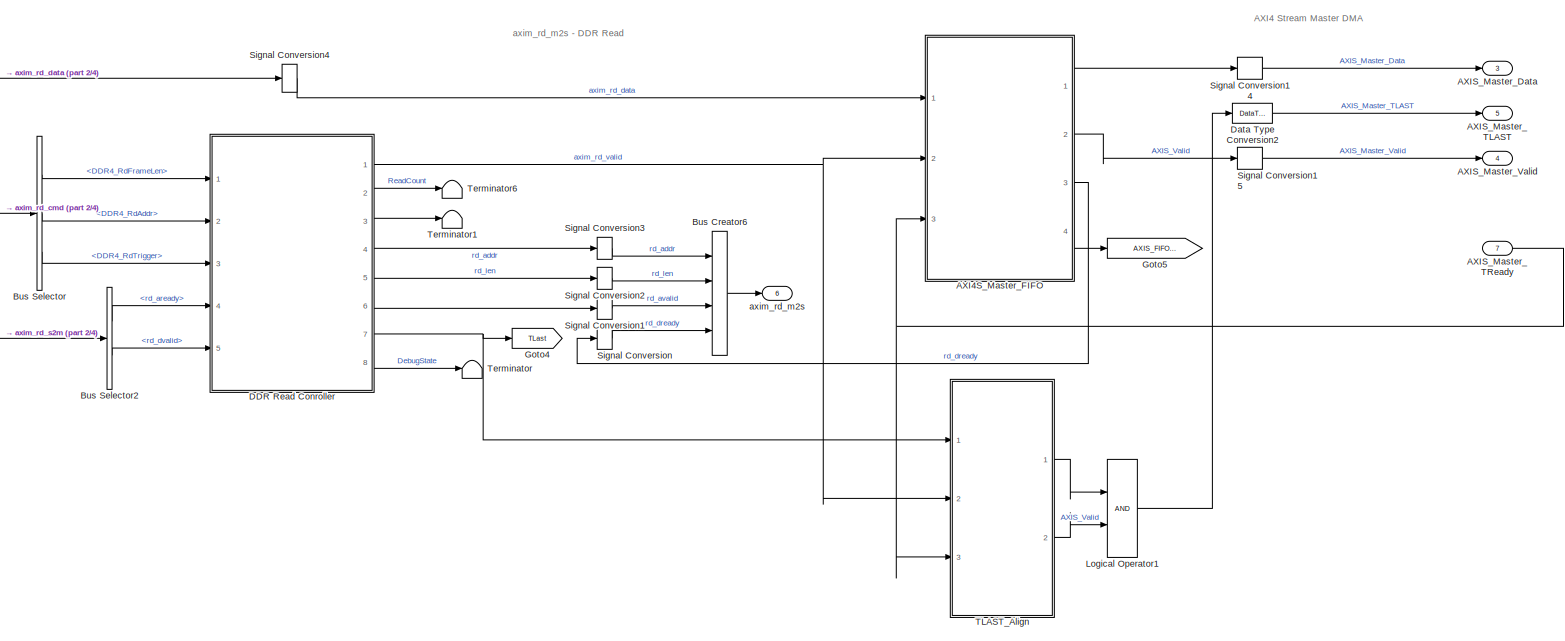
[diagram: HDL_IP/DDR_Capture_Logic - part 4/4, bottom center region]
BLOCK [SubSystem] HDL_IP/DDR_Capture_Logic
  Ports = [9, 7]
  RequestExecContextInheritance = off
BLOCK [Inport] HDL_IP/DDR_Capture_Logic/ADC_Data_Bus
  IconDisplay = Port number
  Port = 4
BLOCK [SubSystem] HDL_IP/DDR_Capture_Logic/AXI4S_Master_FIFO 
  Ports = [3, 4]
  RequestExecContextInheritance = off
BLOCK [Outport] HDL_IP/DDR_Capture_Logic/AXI4S_Master_FIFO /AXIS_Data
  IconDisplay = Port number
  VectorParamsAs1DForOutWhenUnconnected = off
BLOCK [Outport] HDL_IP/DDR_Capture_Logic/AXI4S_Master_FIFO /AXIS_Valid
  IconDisplay = Port number
  Port = 2
  VectorParamsAs1DForOutWhenUnconnected = off
BLOCK [Outport] HDL_IP/DDR_Capture_Logic/AXI4S_Master_FIFO /AlmostFull
  IconDisplay = Port number
  Port = 4
  VectorParamsAs1DForOutWhenUnconnected = off
BLOCK [Delay] HDL_IP/DDR_Capture_Logic/AXI4S_Master_FIFO /Delay3
  DelayLength = 1
  InputPortMap = u0
  Ports = [1, 1]
BLOCK [Delay] HDL_IP/DDR_Capture_Logic/AXI4S_Master_FIFO /Delay4
  DelayLength = 1
  InputPortMap = u0
  Ports = [1, 1]
BLOCK [Display] HDL_IP/DDR_Capture_Logic/AXI4S_Master_FIFO /Display
  Decimation = 1
  Ports = [1]
BLOCK [Logic] HDL_IP/DDR_Capture_Logic/AXI4S_Master_FIFO /Logical Operator1
  AllPortsSameDT = off
  IconShape = distinctive
  Operator = NOT
  OutDataTypeStr = boolean
  Ports = [1, 1]
BLOCK [Logic] HDL_IP/DDR_Capture_Logic/AXI4S_Master_FIFO /Logical Operator2
  AllPortsSameDT = off
  IconShape = distinctive
  Operator = NOT
  OutDataTypeStr = boolean
  Ports = [1, 1]
BLOCK [Logic] HDL_IP/DDR_Capture_Logic/AXI4S_Master_FIFO /Logical Operator3
  AllPortsSameDT = off
  IconShape = distinctive
  OutDataTypeStr = boolean
  Ports = [2, 1]
BLOCK [Outport] HDL_IP/DDR_Capture_Logic/AXI4S_Master_FIFO /Ready
  IconDisplay = Port number
  Port = 3
  VectorParamsAs1DForOutWhenUnconnected = off
BLOCK [Terminator] HDL_IP/DDR_Capture_Logic/AXI4S_Master_FIFO /Terminator1
BLOCK [Inport] HDL_IP/DDR_Capture_Logic/AXI4S_Master_FIFO /axim_rd_data
  IconDisplay = Port number
BLOCK [Inport] HDL_IP/DDR_Capture_Logic/AXI4S_Master_FIFO /axim_rd_valid
  IconDisplay = Port number
  Port = 2
BLOCK [Inport] HDL_IP/DDR_Capture_Logic/AXI4S_Master_FIFO /axis_master_ready
  IconDisplay = Port number
  Port = 3
BLOCK [Reference] HDL_IP/DDR_Capture_Logic/AXI4S_Master_FIFO /hdl_fwft_fifo  REF=AXIDMALib/Hardware/hdl_fwft_fifo
  Ports = [3, 5]
  SourceBlock = AXIDMALib/Hardware/hdl_fwft_fifo
BLOCK [Outport] HDL_IP/DDR_Capture_Logic/AXIS_Master_Data
  IconDisplay = Port number
  Port = 3
  VectorParamsAs1DForOutWhenUnconnected = off
BLOCK [Outport] HDL_IP/DDR_Capture_Logic/AXIS_Master_TLAST
  IconDisplay = Port number
  Port = 5
  VectorParamsAs1DForOutWhenUnconnected = off
BLOCK [Inport] HDL_IP/DDR_Capture_Logic/AXIS_Master_TReady
  IconDisplay = Port number
  Port = 7
BLOCK [Outport] HDL_IP/DDR_Capture_Logic/AXIS_Master_Valid
  IconDisplay = Port number
  Port = 4
  VectorParamsAs1DForOutWhenUnconnected = off
BLOCK [BusCreator] HDL_IP/DDR_Capture_Logic/Bus Creator5
  DisplayOption = bar
  InheritFromInputs = on
  Inputs = 9
  Ports = [9, 1]
BLOCK [BusCreator] HDL_IP/DDR_Capture_Logic/Bus Creator6
  DisplayOption = bar
  InheritFromInputs = on
  Inputs = 4
  Ports = [4, 1]
BLOCK [BusCreator] HDL_IP/DDR_Capture_Logic/Bus Creator7
  DisplayOption = bar
  InheritFromInputs = on
  Inputs = 3
  Ports = [3, 1]
BLOCK [BusSelector] HDL_IP/DDR_Capture_Logic/Bus Selector
  OutputAsBus = off
  OutputSignals = DDR4_RdFrameLen,DDR4_RdAddr,DDR4_RdTrigger
  Ports = [1, 3]
BLOCK [BusSelector] HDL_IP/DDR_Capture_Logic/Bus Selector1
  OutputAsBus = off
  OutputSignals = wr_ready,wr_complete
  Ports = [1, 2]
BLOCK [BusSelector] HDL_IP/DDR_Capture_Logic/Bus Selector2
  OutputAsBus = off
  OutputSignals = rd_aready,rd_dvalid
  Ports = [1, 2]
BLOCK [Inport] HDL_IP/DDR_Capture_Logic/CaptureLength
  IconDisplay = Port number
  Port = 3
BLOCK [SubSystem] HDL_IP/DDR_Capture_Logic/DDR Read Conroller
  ErrorFcn = Stateflow.Translate.translate
  PermitHierarchicalResolution = ExplicitOnly
  Ports = [5, 8]
  RequestExecContextInheritance = off
  SFBlockType = MATLAB Function
  TreatAsAtomicUnit = on
BLOCK [Demux] HDL_IP/DDR_Capture_Logic/DDR Read Conroller/ Demux 
  Outputs = 1
  Ports = [1, 1]
BLOCK [S-Function] HDL_IP/DDR_Capture_Logic/DDR Read Conroller/ SFunction 
  EnableBusSupport = on
  FunctionName = sf_sfun
  PortCounts = [5 9]
  Ports = [5, 9]
  SFcnIsStateOwnerBlock = off
  SFunctionDeploymentMode = off
  Tag = Stateflow S-Function 7
BLOCK [Terminator] HDL_IP/DDR_Capture_Logic/DDR Read Conroller/ Terminator 
BLOCK [Outport] HDL_IP/DDR_Capture_Logic/DDR Read Conroller/ToggleTLAST
  IconDisplay = Port number
  Port = 7
  VectorParamsAs1DForOutWhenUnconnected = off
BLOCK [Inport] HDL_IP/DDR_Capture_Logic/DDR Read Conroller/burst_len
  IconDisplay = Port number
BLOCK [Outport] HDL_IP/DDR_Capture_Logic/DDR Read Conroller/count_out
  IconDisplay = Port number
  Port = 2
  VectorParamsAs1DForOutWhenUnconnected = off
BLOCK [Outport] HDL_IP/DDR_Capture_Logic/DDR Read Conroller/ddr_read_done
  IconDisplay = Port number
  Port = 3
  VectorParamsAs1DForOutWhenUnconnected = off
BLOCK [Outport] HDL_IP/DDR_Capture_Logic/DDR Read Conroller/debug_state
  IconDisplay = Port number
  Port = 8
  VectorParamsAs1DForOutWhenUnconnected = off
BLOCK [Outport] HDL_IP/DDR_Capture_Logic/DDR Read Conroller/rd_addr
  IconDisplay = Port number
  Port = 4
  VectorParamsAs1DForOutWhenUnconnected = off
BLOCK [Inport] HDL_IP/DDR_Capture_Logic/DDR Read Conroller/rd_addr_in
  IconDisplay = Port number
  Port = 2
BLOCK [Inport] HDL_IP/DDR_Capture_Logic/DDR Read Conroller/rd_aready
  IconDisplay = Port number
  Port = 4
BLOCK [Outport] HDL_IP/DDR_Capture_Logic/DDR Read Conroller/rd_avalid
  IconDisplay = Port number
  Port = 6
  VectorParamsAs1DForOutWhenUnconnected = off
BLOCK [Inport] HDL_IP/DDR_Capture_Logic/DDR Read Conroller/rd_dvalid
  IconDisplay = Port number
  Port = 5
BLOCK [Outport] HDL_IP/DDR_Capture_Logic/DDR Read Conroller/rd_len
  IconDisplay = Port number
  Port = 5
  VectorParamsAs1DForOutWhenUnconnected = off
BLOCK [Inport] HDL_IP/DDR_Capture_Logic/DDR Read Conroller/start
  IconDisplay = Port number
  Port = 3
BLOCK [Outport] HDL_IP/DDR_Capture_Logic/DDR Read Conroller/valid_out
  IconDisplay = Port number
  VectorParamsAs1DForOutWhenUnconnected = off
BLOCK [SubSystem] HDL_IP/DDR_Capture_Logic/DDR Write Conroller
  ErrorFcn = Stateflow.Translate.translate
  PermitHierarchicalResolution = ExplicitOnly
  Ports = [5, 6]
  RequestExecContextInheritance = off
  SFBlockType = MATLAB Function
  TreatAsAtomicUnit = on
BLOCK [Demux] HDL_IP/DDR_Capture_Logic/DDR Write Conroller/ Demux 
  Outputs = 1
  Ports = [1, 1]
BLOCK [S-Function] HDL_IP/DDR_Capture_Logic/DDR Write Conroller/ SFunction 
  EnableBusSupport = on
  FunctionName = sf_sfun
  PortCounts = [5 7]
  Ports = [5, 7]
  SFcnIsStateOwnerBlock = off
  SFunctionDeploymentMode = off
  Tag = Stateflow S-Function 5
BLOCK [Terminator] HDL_IP/DDR_Capture_Logic/DDR Write Conroller/ Terminator 
BLOCK [Inport] HDL_IP/DDR_Capture_Logic/DDR Write Conroller/burst_len
  IconDisplay = Port number
BLOCK [Inport] HDL_IP/DDR_Capture_Logic/DDR Write Conroller/data_avail
  IconDisplay = Port number
  Port = 3
BLOCK [Outport] HDL_IP/DDR_Capture_Logic/DDR Write Conroller/ddr_write_done
  IconDisplay = Port number
  Port = 2
  VectorParamsAs1DForOutWhenUnconnected = off
BLOCK [Outport] HDL_IP/DDR_Capture_Logic/DDR Write Conroller/ram_addr
  IconDisplay = Port number
  VectorParamsAs1DForOutWhenUnconnected = off
BLOCK [Inport] HDL_IP/DDR_Capture_Logic/DDR Write Conroller/start
  IconDisplay = Port number
  Port = 2
BLOCK [Outport] HDL_IP/DDR_Capture_Logic/DDR Write Conroller/wasted_cycle_cnt
  IconDisplay = Port number
  Port = 6
  VectorParamsAs1DForOutWhenUnconnected = off
BLOCK [Outport] HDL_IP/DDR_Capture_Logic/DDR Write Conroller/wr_addr
  IconDisplay = Port number
  Port = 3
  VectorParamsAs1DForOutWhenUnconnected = off
BLOCK [Inport] HDL_IP/DDR_Capture_Logic/DDR Write Conroller/wr_complete
  IconDisplay = Port number
  Port = 5
BLOCK [Outport] HDL_IP/DDR_Capture_Logic/DDR Write Conroller/wr_len
  IconDisplay = Port number
  Port = 4
  VectorParamsAs1DForOutWhenUnconnected = off
BLOCK [Inport] HDL_IP/DDR_Capture_Logic/DDR Write Conroller/wr_ready
  IconDisplay = Port number
  Port = 4
BLOCK [Outport] HDL_IP/DDR_Capture_Logic/DDR Write Conroller/wr_valid
  IconDisplay = Port number
  Port = 5
  VectorParamsAs1DForOutWhenUnconnected = off
BLOCK [DataTypeConversion] HDL_IP/DDR_Capture_Logic/Data Type Conversion2
  OutDataTypeStr = boolean
  RndMeth = Floor
  SaturateOnIntegerOverflow = off
BLOCK [SubSystem] HDL_IP/DDR_Capture_Logic/DataBusBreakout
  Ports = [1, 2]
  RequestExecContextInheritance = off
BLOCK [Reference] HDL_IP/DDR_Capture_Logic/DataBusBreakout/Bit Concat1  REF=hdlsllib/Logic and Bit
Operations/Bit Concat
  Ports = [2, 1]
  SourceBlock = hdlsllib/Logic and Bit\nOperations/Bit Concat
  SourceProductBaseCode = SL
  SourceProductName = Simulink
  SourceType = Bit Concat
BLOCK [BusSelector] HDL_IP/DDR_Capture_Logic/DataBusBreakout/Bus Selector3
  OutputAsBus = off
  OutputSignals = Q,I,Valid
  Ports = [1, 3]
BLOCK [Inport] HDL_IP/DDR_Capture_Logic/DataBusBreakout/busIn
  IconDisplay = Port number
BLOCK [Outport] HDL_IP/DDR_Capture_Logic/DataBusBreakout/dataOut
  IconDisplay = Port number
BLOCK [Outport] HDL_IP/DDR_Capture_Logic/DataBusBreakout/validOut
  IconDisplay = Port number
  Port = 2
BLOCK [SubSystem] HDL_IP/DDR_Capture_Logic/DataCaptureFIFO
  Ports = [6, 6]
  RequestExecContextInheritance = off
BLOCK [Inport] HDL_IP/DDR_Capture_Logic/DataCaptureFIFO/ADC_Data
  IconDisplay = Port number
BLOCK [Inport] HDL_IP/DDR_Capture_Logic/DataCaptureFIFO/ADC_Valid
  IconDisplay = Port number
  Port = 2
BLOCK [Outport] HDL_IP/DDR_Capture_Logic/DataCaptureFIFO/CaptureFIFONum
  IconDisplay = Port number
  Port = 5
  VectorParamsAs1DForOutWhenUnconnected = off
BLOCK [Delay] HDL_IP/DDR_Capture_Logic/DataCaptureFIFO/CaptureFIFONumReg
  DelayLength = 1
  InputPortMap = u0
  Ports = [1, 1]
BLOCK [Inport] HDL_IP/DDR_Capture_Logic/DataCaptureFIFO/CaptureLength
  IconDisplay = Port number
  Port = 4
BLOCK [DataTypeConversion] HDL_IP/DDR_Capture_Logic/DataCaptureFIFO/Data Type Conversion1
  OutDataTypeStr = uint32
  RndMeth = Floor
  SaturateOnIntegerOverflow = off
BLOCK [Inport] HDL_IP/DDR_Capture_Logic/DataCaptureFIFO/DebugCapture
  IconDisplay = Port number
  Port = 3
BLOCK [Outport] HDL_IP/DDR_Capture_Logic/DataCaptureFIFO/FIFODropCount
  IconDisplay = Port number
  Port = 3
  VectorParamsAs1DForOutWhenUnconnected = off
BLOCK [SubSystem] HDL_IP/DDR_Capture_Logic/DataCaptureFIFO/FIFOWriteControl
  PortSchema = {"entries":[{"content":{"sides":[{"content":{"connectorIds":["In1","In2","In3","In4","In5","In6"]},"type":"ConnectorPlacement.EquallySpacedRectSide","uuid":"e521c4e1-d63e-4776-a5fe-9169b813b24e"},{"content":{"connectorIds":["Out1","Out2","Out3","Out4"],"side":"RIGHT"},"type":"ConnectorPlacement.EquallySpacedRectSide","uuid":"3008809a-f1e7-4909-9ea3-d872427f328e"},{"content":{"connectorIds":[],"sid...<+293ch>
  Ports = [6, 4]
  RequestExecContextInheritance = off
BLOCK [Inport] HDL_IP/DDR_Capture_Logic/DataCaptureFIFO/FIFOWriteControl/ADC_Data
  IconDisplay = Port number
BLOCK [Inport] HDL_IP/DDR_Capture_Logic/DataCaptureFIFO/FIFOWriteControl/ADC_Valid
  IconDisplay = Port number
  Port = 2
BLOCK [Inport] HDL_IP/DDR_Capture_Logic/DataCaptureFIFO/FIFOWriteControl/CaptureLength
  IconDisplay = Port number
  Port = 4
BLOCK [Outport] HDL_IP/DDR_Capture_Logic/DataCaptureFIFO/FIFOWriteControl/DDRCaptureFIFOActive
  IconDisplay = Port number
  Port = 3
  VectorParamsAs1DForOutWhenUnconnected = off
BLOCK [Outport] HDL_IP/DDR_Capture_Logic/DataCaptureFIFO/FIFOWriteControl/DDRCaptureFIFOPush
  IconDisplay = Port number
  Port = 2
  VectorParamsAs1DForOutWhenUnconnected = off
BLOCK [DataTypeConversion] HDL_IP/DDR_Capture_Logic/DataCaptureFIFO/FIFOWriteControl/Data Type Conversion
  RndMeth = Floor
  SaturateOnIntegerOverflow = off
BLOCK [Outport] HDL_IP/DDR_Capture_Logic/DataCaptureFIFO/FIFOWriteControl/DataOut
  IconDisplay = Port number
  VectorParamsAs1DForOutWhenUnconnected = off
BLOCK [Inport] HDL_IP/DDR_Capture_Logic/DataCaptureFIFO/FIFOWriteControl/DebugMode
  IconDisplay = Port number
  Port = 5
BLOCK [Outport] HDL_IP/DDR_Capture_Logic/DataCaptureFIFO/FIFOWriteControl/FIFODropCount
  IconDisplay = Port number
  Port = 4
  VectorParamsAs1DForOutWhenUnconnected = off
BLOCK [Inport] HDL_IP/DDR_Capture_Logic/DataCaptureFIFO/FIFOWriteControl/FIFO_Full
  IconDisplay = Port number
  Port = 6
BLOCK [SubSystem] HDL_IP/DDR_Capture_Logic/DataCaptureFIFO/FIFOWriteControl/MATLAB Function
  ErrorFcn = Stateflow.Translate.translate
  PermitHierarchicalResolution = ExplicitOnly
  Ports = [4, 4]
  RequestExecContextInheritance = off
  SFBlockType = MATLAB Function
  TreatAsAtomicUnit = on
BLOCK [Demux] HDL_IP/DDR_Capture_Logic/DataCaptureFIFO/FIFOWriteControl/MATLAB Function/ Demux 
  Outputs = 1
  Ports = [1, 1]
BLOCK [S-Function] HDL_IP/DDR_Capture_Logic/DataCaptureFIFO/FIFOWriteControl/MATLAB Function/ SFunction 
  EnableBusSupport = on
  FunctionName = sf_sfun
  PortCounts = [4 5]
  Ports = [4, 5]
  SFcnIsStateOwnerBlock = off
  SFunctionDeploymentMode = off
  Tag = Stateflow S-Function 6
BLOCK [Terminator] HDL_IP/DDR_Capture_Logic/DataCaptureFIFO/FIFOWriteControl/MATLAB Function/ Terminator 
BLOCK [Inport] HDL_IP/DDR_Capture_Logic/DataCaptureFIFO/FIFOWriteControl/MATLAB Function/ADC_Valid
  IconDisplay = Port number
BLOCK [Inport] HDL_IP/DDR_Capture_Logic/DataCaptureFIFO/FIFOWriteControl/MATLAB Function/CaptureLength
  IconDisplay = Port number
  Port = 3
BLOCK [Outport] HDL_IP/DDR_Capture_Logic/DataCaptureFIFO/FIFOWriteControl/MATLAB Function/DDRCaptureFIFOActive
  IconDisplay = Port number
  Port = 3
BLOCK [Outport] HDL_IP/DDR_Capture_Logic/DataCaptureFIFO/FIFOWriteControl/MATLAB Function/DDRCaptureFIFOPush
  IconDisplay = Port number
  Port = 2
BLOCK [Outport] HDL_IP/DDR_Capture_Logic/DataCaptureFIFO/FIFOWriteControl/MATLAB Function/FIFODropCount
  IconDisplay = Port number
  Port = 4
BLOCK [Inport] HDL_IP/DDR_Capture_Logic/DataCaptureFIFO/FIFOWriteControl/MATLAB Function/FIFO_Full
  IconDisplay = Port number
  Port = 4
BLOCK [Inport] HDL_IP/DDR_Capture_Logic/DataCaptureFIFO/FIFOWriteControl/MATLAB Function/RxStart
  IconDisplay = Port number
  Port = 2
BLOCK [Outport] HDL_IP/DDR_Capture_Logic/DataCaptureFIFO/FIFOWriteControl/MATLAB Function/count_out
  IconDisplay = Port number
BLOCK [MultiPortSwitch] HDL_IP/DDR_Capture_Logic/DataCaptureFIFO/FIFOWriteControl/Multiport Switch
  DataPortOrder = Zero-based contiguous
  InputSameDT = off
  Inputs = 2
  Ports = [3, 1]
  SaturateOnIntegerOverflow = off
  zeroidx = on
BLOCK [Inport] HDL_IP/DDR_Capture_Logic/DataCaptureFIFO/FIFOWriteControl/RxStart
  IconDisplay = Port number
  Port = 3
BLOCK [Outport] HDL_IP/DDR_Capture_Logic/DataCaptureFIFO/FIFO_AFull
  IconDisplay = Port number
  Port = 2
  VectorParamsAs1DForOutWhenUnconnected = off
BLOCK [Outport] HDL_IP/DDR_Capture_Logic/DataCaptureFIFO/FIFO_DataAvail
  IconDisplay = Port number
  Port = 6
  VectorParamsAs1DForOutWhenUnconnected = off
BLOCK [From] HDL_IP/DDR_Capture_Logic/DataCaptureFIFO/From
  GotoTag = FIFO_Full
BLOCK [Goto] HDL_IP/DDR_Capture_Logic/DataCaptureFIFO/Goto
  GotoTag = FIFO_Full
BLOCK [Reference] HDL_IP/DDR_Capture_Logic/DataCaptureFIFO/HDL Counter1  REF=hdlsllib/Sources/HDL Counter
  Ports = [1, 1]
  SourceBlock = hdlsllib/Sources/HDL Counter
  SourceProductBaseCode = HD
  SourceProductName = HDL Coder
  SourceType = HDL Counter
BLOCK [Logic] HDL_IP/DDR_Capture_Logic/DataCaptureFIFO/Logical Operator
  AllPortsSameDT = off
  OutDataTypeStr = boolean
  Ports = [2, 1]
BLOCK [Logic] HDL_IP/DDR_Capture_Logic/DataCaptureFIFO/Logical Operator2
  AllPortsSameDT = off
  IconShape = distinctive
  Operator = NOT
  OutDataTypeStr = boolean
  Ports = [1, 1]
BLOCK [Logic] HDL_IP/DDR_Capture_Logic/DataCaptureFIFO/Logical Operator3
  AllPortsSameDT = off
  OutDataTypeStr = boolean
  Ports = [2, 1]
BLOCK [Logic] HDL_IP/DDR_Capture_Logic/DataCaptureFIFO/NOT
  AllPortsSameDT = off
  IconShape = distinctive
  Operator = NOT
  OutDataTypeStr = boolean
  Ports = [1, 1]
BLOCK [Inport] HDL_IP/DDR_Capture_Logic/DataCaptureFIFO/RxStart
  IconDisplay = Port number
  Port = 5
BLOCK [Inport] HDL_IP/DDR_Capture_Logic/DataCaptureFIFO/fifo_rd_ack
  IconDisplay = Port number
  Port = 6
BLOCK [SubSystem] HDL_IP/DDR_Capture_Logic/DataCaptureFIFO/hdl_fwft_fifo
  Ports = [3, 5]
  RequestExecContextInheritance = off
BLOCK [Reference] HDL_IP/DDR_Capture_Logic/DataCaptureFIFO/hdl_fwft_fifo/Compare To Constant  REF=simulink/Logic and Bit
Operations/Compare
To Constant
  Ports = [1, 1]
  SourceBlock = simulink/Logic and Bit\nOperations/Compare\nTo Constant
  SourceProductBaseCode = SL
  SourceProductName = Simulink
  SourceType = Compare To Constant
BLOCK [Reference] HDL_IP/DDR_Capture_Logic/DataCaptureFIFO/hdl_fwft_fifo/HDL FIFO  REF=hdlsllib/HDL RAMs/HDL FIFO
  Ports = [3, 4]
  SourceBlock = hdlsllib/HDL RAMs/HDL FIFO
  SourceProductBaseCode = HD
  SourceProductName = HDL Coder
  SourceType = HDL_FIFO
BLOCK [Logic] HDL_IP/DDR_Capture_Logic/DataCaptureFIFO/hdl_fwft_fifo/Logical Operator1
  AllPortsSameDT = off
  IconShape = distinctive
  Operator = NOT
  OutDataTypeStr = boolean
  Ports = [1, 1]
BLOCK [Logic] HDL_IP/DDR_Capture_Logic/DataCaptureFIFO/hdl_fwft_fifo/Logical Operator2
  AllPortsSameDT = off
  IconShape = distinctive
  OutDataTypeStr = boolean
  Ports = [2, 1]
BLOCK [Outport] HDL_IP/DDR_Capture_Logic/DataCaptureFIFO/hdl_fwft_fifo/afull
  IconDisplay = Port number
  Port = 5
  VectorParamsAs1DForOutWhenUnconnected = off
BLOCK [Inport] HDL_IP/DDR_Capture_Logic/DataCaptureFIFO/hdl_fwft_fifo/data_i
  IconDisplay = Port number
BLOCK [Outport] HDL_IP/DDR_Capture_Logic/DataCaptureFIFO/hdl_fwft_fifo/data_o
  IconDisplay = Port number
  VectorParamsAs1DForOutWhenUnconnected = off
BLOCK [Outport] HDL_IP/DDR_Capture_Logic/DataCaptureFIFO/hdl_fwft_fifo/empty_o
  IconDisplay = Port number
  Port = 2
  VectorParamsAs1DForOutWhenUnconnected = off
BLOCK [Outport] HDL_IP/DDR_Capture_Logic/DataCaptureFIFO/hdl_fwft_fifo/full
  IconDisplay = Port number
  Port = 4
  VectorParamsAs1DForOutWhenUnconnected = off
BLOCK [Outport] HDL_IP/DDR_Capture_Logic/DataCaptureFIFO/hdl_fwft_fifo/num
  IconDisplay = Port number
  Port = 3
  VectorParamsAs1DForOutWhenUnconnected = off
BLOCK [Inport] HDL_IP/DDR_Capture_Logic/DataCaptureFIFO/hdl_fwft_fifo/pop
  IconDisplay = Port number
  Port = 3
BLOCK [Inport] HDL_IP/DDR_Capture_Logic/DataCaptureFIFO/hdl_fwft_fifo/push
  IconDisplay = Port number
  Port = 2
BLOCK [Outport] HDL_IP/DDR_Capture_Logic/DataCaptureFIFO/rd_ack_low_count
  IconDisplay = Port number
  Port = 4
  VectorParamsAs1DForOutWhenUnconnected = off
BLOCK [Outport] HDL_IP/DDR_Capture_Logic/DataCaptureFIFO/wr_data
  IconDisplay = Port number
  VectorParamsAs1DForOutWhenUnconnected = off
BLOCK [Inport] HDL_IP/DDR_Capture_Logic/DebugCapture
  IconDisplay = Port number
  Port = 2
BLOCK [From] HDL_IP/DDR_Capture_Logic/From
  GotoTag = CaptureLength
BLOCK [From] HDL_IP/DDR_Capture_Logic/From1
  GotoTag = capture_fifo_drop
BLOCK [From] HDL_IP/DDR_Capture_Logic/From10
  GotoTag = capture_fifo_num
BLOCK [From] HDL_IP/DDR_Capture_Logic/From12
  GotoTag = DebugCapture
BLOCK [From] HDL_IP/DDR_Capture_Logic/From13
  GotoTag = RxStart
BLOCK [From] HDL_IP/DDR_Capture_Logic/From2
  GotoTag = CaptureLength
BLOCK [From] HDL_IP/DDR_Capture_Logic/From3
  GotoTag = wr_ready
BLOCK [From] HDL_IP/DDR_Capture_Logic/From4
  GotoTag = capture_fifo_afull
BLOCK [From] HDL_IP/DDR_Capture_Logic/From5
  GotoTag = wr_complete
BLOCK [From] HDL_IP/DDR_Capture_Logic/From6
  GotoTag = TLast
BLOCK [From] HDL_IP/DDR_Capture_Logic/From7
  GotoTag = AXIS_FIFO_AFull
BLOCK [From] HDL_IP/DDR_Capture_Logic/From8
  GotoTag = RxStart
BLOCK [From] HDL_IP/DDR_Capture_Logic/From9
  GotoTag = capture_fifo_rd_ack
BLOCK [Goto] HDL_IP/DDR_Capture_Logic/Goto
  GotoTag = CaptureLength
BLOCK [Goto] HDL_IP/DDR_Capture_Logic/Goto1
  GotoTag = wr_ready
BLOCK [Goto] HDL_IP/DDR_Capture_Logic/Goto10
  GotoTag = capture_fifo_num
BLOCK [Goto] HDL_IP/DDR_Capture_Logic/Goto11
  GotoTag = capture_fifo_drop
BLOCK [Goto] HDL_IP/DDR_Capture_Logic/Goto2
  GotoTag = capture_fifo_afull
BLOCK [Goto] HDL_IP/DDR_Capture_Logic/Goto3
  GotoTag = wr_complete
BLOCK [Goto] HDL_IP/DDR_Capture_Logic/Goto4
  GotoTag = TLast
BLOCK [Goto] HDL_IP/DDR_Capture_Logic/Goto5
  GotoTag = AXIS_FIFO_AFull
BLOCK [Goto] HDL_IP/DDR_Capture_Logic/Goto6
  GotoTag = capture_fifo_rd_ack
BLOCK [Goto] HDL_IP/DDR_Capture_Logic/Goto7
  GotoTag = DebugCapture
BLOCK [Goto] HDL_IP/DDR_Capture_Logic/Goto8
  GotoTag = RxStart
BLOCK [Logic] HDL_IP/DDR_Capture_Logic/Logical Operator1
  AllPortsSameDT = off
  IconShape = distinctive
  OutDataTypeStr = boolean
  Ports = [2, 1]
BLOCK [Logic] HDL_IP/DDR_Capture_Logic/Logical Operator3
  AllPortsSameDT = off
  IconShape = distinctive
  Operator = NOT
  OutDataTypeStr = boolean
  Ports = [1, 1]
BLOCK [Inport] HDL_IP/DDR_Capture_Logic/RxStart
  IconDisplay = Port number
BLOCK [SignalConversion] HDL_IP/DDR_Capture_Logic/Signal Conversion
  OverrideOpt = off
BLOCK [SignalConversion] HDL_IP/DDR_Capture_Logic/Signal Conversion1
  OverrideOpt = off
BLOCK [SignalConversion] HDL_IP/DDR_Capture_Logic/Signal Conversion10
  OverrideOpt = off
BLOCK [SignalConversion] HDL_IP/DDR_Capture_Logic/Signal Conversion11
  OverrideOpt = off
BLOCK [SignalConversion] HDL_IP/DDR_Capture_Logic/Signal Conversion12
  OverrideOpt = off
BLOCK [SignalConversion] HDL_IP/DDR_Capture_Logic/Signal Conversion13
  OverrideOpt = off
BLOCK [SignalConversion] HDL_IP/DDR_Capture_Logic/Signal Conversion14
  OverrideOpt = off
BLOCK [SignalConversion] HDL_IP/DDR_Capture_Logic/Signal Conversion15
  OverrideOpt = off
BLOCK [SignalConversion] HDL_IP/DDR_Capture_Logic/Signal Conversion16
  OverrideOpt = off
BLOCK [SignalConversion] HDL_IP/DDR_Capture_Logic/Signal Conversion2
  OverrideOpt = off
BLOCK [SignalConversion] HDL_IP/DDR_Capture_Logic/Signal Conversion3
  OverrideOpt = off
BLOCK [SignalConversion] HDL_IP/DDR_Capture_Logic/Signal Conversion4
  OverrideOpt = off
BLOCK [SignalConversion] HDL_IP/DDR_Capture_Logic/Signal Conversion5
  OverrideOpt = off
BLOCK [SignalConversion] HDL_IP/DDR_Capture_Logic/Signal Conversion6
  OverrideOpt = off
BLOCK [SignalConversion] HDL_IP/DDR_Capture_Logic/Signal Conversion7
  OverrideOpt = off
BLOCK [SignalConversion] HDL_IP/DDR_Capture_Logic/Signal Conversion8
  OverrideOpt = off
BLOCK [SignalConversion] HDL_IP/DDR_Capture_Logic/Signal Conversion9
  OverrideOpt = off
BLOCK [SubSystem] HDL_IP/DDR_Capture_Logic/TLAST_Align
  Ports = [3, 2]
  RequestExecContextInheritance = off
BLOCK [Outport] HDL_IP/DDR_Capture_Logic/TLAST_Align/AXIS_Data
  IconDisplay = Port number
  VectorParamsAs1DForOutWhenUnconnected = off
BLOCK [Outport] HDL_IP/DDR_Capture_Logic/TLAST_Align/AXIS_Valid
  IconDisplay = Port number
  Port = 2
  VectorParamsAs1DForOutWhenUnconnected = off
BLOCK [Delay] HDL_IP/DDR_Capture_Logic/TLAST_Align/Delay3
  DelayLength = 1
  InputPortMap = u0
  Ports = [1, 1]
BLOCK [Delay] HDL_IP/DDR_Capture_Logic/TLAST_Align/Delay4
  DelayLength = 1
  InputPortMap = u0
  Ports = [1, 1]
BLOCK [Display] HDL_IP/DDR_Capture_Logic/TLAST_Align/Display
  Decimation = 1
  Ports = [1]
BLOCK [Reference] HDL_IP/DDR_Capture_Logic/TLAST_Align/HDL FIFO  REF=hdlsllib/HDL RAMs/HDL FIFO
  Ports = [3, 4]
  SourceBlock = hdlsllib/HDL RAMs/HDL FIFO
  SourceProductBaseCode = SL
  SourceProductName = Simulink
  SourceType = HDL_FIFO
BLOCK [Logic] HDL_IP/DDR_Capture_Logic/TLAST_Align/Logical Operator2
  AllPortsSameDT = off
  IconShape = distinctive
  Operator = NOT
  OutDataTypeStr = boolean
  Ports = [1, 1]
BLOCK [Logic] HDL_IP/DDR_Capture_Logic/TLAST_Align/Logical Operator3
  AllPortsSameDT = off
  IconShape = distinctive
  OutDataTypeStr = boolean
  Ports = [2, 1]
BLOCK [Terminator] HDL_IP/DDR_Capture_Logic/TLAST_Align/Terminator1
BLOCK [Inport] HDL_IP/DDR_Capture_Logic/TLAST_Align/axim_rd_data
  IconDisplay = Port number
BLOCK [Inport] HDL_IP/DDR_Capture_Logic/TLAST_Align/axim_rd_valid
  IconDisplay = Port number
  Port = 2
BLOCK [Inport] HDL_IP/DDR_Capture_Logic/TLAST_Align/axis_master_ready
  IconDisplay = Port number
  Port = 3
BLOCK [Terminator] HDL_IP/DDR_Capture_Logic/Terminator
BLOCK [Terminator] HDL_IP/DDR_Capture_Logic/Terminator1
BLOCK [Terminator] HDL_IP/DDR_Capture_Logic/Terminator2
BLOCK [Terminator] HDL_IP/DDR_Capture_Logic/Terminator6
BLOCK [Terminator] HDL_IP/DDR_Capture_Logic/Terminator7
BLOCK [Inport] HDL_IP/DDR_Capture_Logic/axim_rd_cmd
  IconDisplay = Port number
  Port = 9
BLOCK [Inport] HDL_IP/DDR_Capture_Logic/axim_rd_data
  IconDisplay = Port number
  Port = 6
BLOCK [Outport] HDL_IP/DDR_Capture_Logic/axim_rd_m2s
  IconDisplay = Port number
  Port = 6
  VectorParamsAs1DForOutWhenUnconnected = off
BLOCK [Inport] HDL_IP/DDR_Capture_Logic/axim_rd_s2m
  IconDisplay = Port number
  Port = 8
BLOCK [Outport] HDL_IP/DDR_Capture_Logic/axim_wr_m2s
  IconDisplay = Port number
  Port = 2
  VectorParamsAs1DForOutWhenUnconnected = off
BLOCK [Inport] HDL_IP/DDR_Capture_Logic/axim_wr_s2m
  IconDisplay = Port number
  Port = 5
BLOCK [Outport] HDL_IP/DDR_Capture_Logic/diagonstic_sigs
  IconDisplay = Port number
  Port = 7
BLOCK [Outport] HDL_IP/DDR_Capture_Logic/wr_data
  IconDisplay = Port number
  VectorParamsAs1DForOutWhenUnconnected = off
BLOCK [DataTypeConversion] HDL_IP/DTC_10_
  ConvertRealWorld = Stored Integer (SI)
  OutDataTypeStr = uint64
  RndMeth = Floor
  SaturateOnIntegerOverflow = off
BLOCK [DataTypeConversion] HDL_IP/DTC_11_
  ConvertRealWorld = Stored Integer (SI)
  OutDataTypeStr = uint64
  RndMeth = Floor
  SaturateOnIntegerOverflow = off
BLOCK [DataTypeConversion] HDL_IP/DTC_12_
  ConvertRealWorld = Stored Integer (SI)
  OutDataTypeStr = boolean
  RndMeth = Floor
  SaturateOnIntegerOverflow = off
BLOCK [DataTypeConversion] HDL_IP/DTC_1_
  ConvertRealWorld = Stored Integer (SI)
  OutDataTypeStr = uint64
  RndMeth = Floor
  SaturateOnIntegerOverflow = off
BLOCK [DataTypeConversion] HDL_IP/DTC_2_
  ConvertRealWorld = Stored Integer (SI)
  OutDataTypeStr = uint64
  RndMeth = Floor
  SaturateOnIntegerOverflow = off
BLOCK [DataTypeConversion] HDL_IP/DTC_3_
  ConvertRealWorld = Stored Integer (SI)
  OutDataTypeStr = boolean
  RndMeth = Floor
  SaturateOnIntegerOverflow = off
BLOCK [DataTypeConversion] HDL_IP/DTC_4_
  ConvertRealWorld = Stored Integer (SI)
  OutDataTypeStr = uint64
  RndMeth = Floor
  SaturateOnIntegerOverflow = off
BLOCK [DataTypeConversion] HDL_IP/DTC_5_
  ConvertRealWorld = Stored Integer (SI)
  OutDataTypeStr = uint64
  RndMeth = Floor
  SaturateOnIntegerOverflow = off
BLOCK [DataTypeConversion] HDL_IP/DTC_6_
  ConvertRealWorld = Stored Integer (SI)
  OutDataTypeStr = boolean
  RndMeth = Floor
  SaturateOnIntegerOverflow = off
BLOCK [DataTypeConversion] HDL_IP/DTC_7_
  ConvertRealWorld = Stored Integer (SI)
  OutDataTypeStr = uint64
  RndMeth = Floor
  SaturateOnIntegerOverflow = off
BLOCK [DataTypeConversion] HDL_IP/DTC_8_
  ConvertRealWorld = Stored Integer (SI)
  OutDataTypeStr = uint64
  RndMeth = Floor
  SaturateOnIntegerOverflow = off
BLOCK [DataTypeConversion] HDL_IP/DTC_9_
  ConvertRealWorld = Stored Integer (SI)
  OutDataTypeStr = boolean
  RndMeth = Floor
  SaturateOnIntegerOverflow = off
BLOCK [DataTypeConversion] HDL_IP/Data Type Conversion
  OutDataTypeStr = fixdt(1,16)
  OutMax = 32767
  OutMin = -32768
  RndMeth = Floor
  SaturateOnIntegerOverflow = off
BLOCK [DataTypeConversion] HDL_IP/Data Type Conversion1
  OutDataTypeStr = fixdt(1,16)
  OutMax = 32767
  OutMin = -32768
  RndMeth = Floor
  SaturateOnIntegerOverflow = off
BLOCK [DataTypeConversion] HDL_IP/Data Type Conversion2
  OutDataTypeStr = fixdt(1,16)
  OutMax = 32767
  OutMin = -32768
  RndMeth = Floor
  SaturateOnIntegerOverflow = off
BLOCK [DataTypeConversion] HDL_IP/Data Type Conversion3
  OutDataTypeStr = fixdt(1,16)
  OutMax = 32767
  OutMin = -32768
  RndMeth = Floor
  SaturateOnIntegerOverflow = off
BLOCK [DataTypeConversion] HDL_IP/Data Type Conversion4
  OutDataTypeStr = fixdt(1,16)
  OutMax = 32767
  OutMin = -32768
  RndMeth = Floor
  SaturateOnIntegerOverflow = off
BLOCK [SubSystem] HDL_IP/DebugCaptureDefaultReg
  Ports = [1, 1]
  RequestExecContextInheritance = off
BLOCK [Delay] HDL_IP/DebugCaptureDefaultReg/Delay1
  DelayLength = 1
  InputPortMap = u0
  Ports = [1, 1]
BLOCK [Inport] HDL_IP/DebugCaptureDefaultReg/In1
  IconDisplay = Port number
BLOCK [Outport] HDL_IP/DebugCaptureDefaultReg/Out1
  IconDisplay = Port number
  VectorParamsAs1DForOutWhenUnconnected = off
BLOCK [SubSystem] HDL_IP/DefaultRegister
  Ports = [1, 1]
  RequestExecContextInheritance = off
BLOCK [Reference] HDL_IP/DefaultRegister/Compare To Zero  REF=simulink/Logic and Bit
Operations/Compare
To Zero
  Ports = [1, 1]
  SourceBlock = simulink/Logic and Bit\nOperations/Compare\nTo Zero
  SourceProductBaseCode = SL
  SourceProductName = Simulink
  SourceType = Compare To Zero
BLOCK [Constant] HDL_IP/DefaultRegister/Constant5
  OutDataTypeStr = fixdt(0,4,4)
  SampleTime = -1
  Value = 0.3
BLOCK [Delay] HDL_IP/DefaultRegister/Delay1
  DelayLength = 1
  InputPortMap = u0
  Ports = [1, 1]
BLOCK [Inport] HDL_IP/DefaultRegister/In1
  IconDisplay = Port number
BLOCK [Outport] HDL_IP/DefaultRegister/Out2
  IconDisplay = Port number
  VectorParamsAs1DForOutWhenUnconnected = off
BLOCK [Switch] HDL_IP/DefaultRegister/Switch2
  Criteria = u2 > Threshold
  InputSameDT = off
  SaturateOnIntegerOverflow = off
BLOCK [SubSystem] HDL_IP/DefaultRegister1
  Ports = [1, 1]
  RequestExecContextInheritance = off
BLOCK [Reference] HDL_IP/DefaultRegister1/Compare To Zero  REF=simulink/Logic and Bit
Operations/Compare
To Zero
  Ports = [1, 1]
  SourceBlock = simulink/Logic and Bit\nOperations/Compare\nTo Zero
  SourceProductBaseCode = SL
  SourceProductName = Simulink
  SourceType = Compare To Zero
BLOCK [Constant] HDL_IP/DefaultRegister1/Constant5
  OutDataTypeStr = fixdt(0,4,4)
  SampleTime = -1
  Value = 0.6
BLOCK [Delay] HDL_IP/DefaultRegister1/Delay1
  DelayLength = 1
  InputPortMap = u0
  Ports = [1, 1]
BLOCK [Inport] HDL_IP/DefaultRegister1/In1
  IconDisplay = Port number
BLOCK [Outport] HDL_IP/DefaultRegister1/Out2
  IconDisplay = Port number
  VectorParamsAs1DForOutWhenUnconnected = off
BLOCK [Switch] HDL_IP/DefaultRegister1/Switch2
  Criteria = u2 > Threshold
  InputSameDT = off
  SaturateOnIntegerOverflow = off
BLOCK [SubSystem] HDL_IP/DefaultRegister10
  Ports = [1, 1]
  RequestExecContextInheritance = off
BLOCK [Reference] HDL_IP/DefaultRegister10/Compare To Zero  REF=simulink/Logic and Bit
Operations/Compare
To Zero
  Ports = [1, 1]
  SourceBlock = simulink/Logic and Bit\nOperations/Compare\nTo Zero
  SourceProductBaseCode = SL
  SourceProductName = Simulink
  SourceType = Compare To Zero
BLOCK [DataTypeConversion] HDL_IP/DefaultRegister10/Data Type Conversion
  OutDataTypeStr = int32
  RndMeth = Floor
  SaturateOnIntegerOverflow = off
BLOCK [Delay] HDL_IP/DefaultRegister10/Delay1
  DelayLength = 1
  InputPortMap = u0
  Ports = [1, 1]
BLOCK [Inport] HDL_IP/DefaultRegister10/In1
  IconDisplay = Port number
BLOCK [Outport] HDL_IP/DefaultRegister10/Out2
  IconDisplay = Port number
  VectorParamsAs1DForOutWhenUnconnected = off
BLOCK [Switch] HDL_IP/DefaultRegister10/Switch2
  Criteria = u2 > Threshold
  InputSameDT = off
  OutDataTypeStr = int32
  SaturateOnIntegerOverflow = off
BLOCK [Constant] HDL_IP/DefaultRegister10/lfc counter inc
  OutDataTypeStr = int32
  Value = config.register.lfm_counter_inc
BLOCK [SubSystem] HDL_IP/DefaultRegister2
  Ports = [1, 1]
  RequestExecContextInheritance = off
BLOCK [Reference] HDL_IP/DefaultRegister2/Compare To Zero  REF=simulink/Logic and Bit
Operations/Compare
To Zero
  Ports = [1, 1]
  SourceBlock = simulink/Logic and Bit\nOperations/Compare\nTo Zero
  SourceProductBaseCode = SL
  SourceProductName = Simulink
  SourceType = Compare To Zero
BLOCK [Delay] HDL_IP/DefaultRegister2/Delay1
  DelayLength = 1
  InputPortMap = u0
  Ports = [1, 1]
BLOCK [Inport] HDL_IP/DefaultRegister2/In1
  IconDisplay = Port number
BLOCK [Outport] HDL_IP/DefaultRegister2/Out2
  IconDisplay = Port number
  VectorParamsAs1DForOutWhenUnconnected = off
BLOCK [Switch] HDL_IP/DefaultRegister2/Switch2
  Criteria = u2 > Threshold
  InputSameDT = off
  SaturateOnIntegerOverflow = off
BLOCK [Constant] HDL_IP/DefaultRegister2/range swath cycles
  OutDataTypeStr = uint32
  SampleTime = -1
  Value = config.register.range_swath_cycles
BLOCK [SubSystem] HDL_IP/DefaultRegister3
  Ports = [1, 1]
  RequestExecContextInheritance = off
BLOCK [Reference] HDL_IP/DefaultRegister3/Compare To Zero  REF=simulink/Logic and Bit
Operations/Compare
To Zero
  Ports = [1, 1]
  SourceBlock = simulink/Logic and Bit\nOperations/Compare\nTo Zero
  SourceProductBaseCode = SL
  SourceProductName = Simulink
  SourceType = Compare To Zero
BLOCK [Delay] HDL_IP/DefaultRegister3/Delay1
  DelayLength = 1
  InputPortMap = u0
  Ports = [1, 1]
BLOCK [Inport] HDL_IP/DefaultRegister3/In1
  IconDisplay = Port number
BLOCK [Outport] HDL_IP/DefaultRegister3/Out2
  IconDisplay = Port number
  VectorParamsAs1DForOutWhenUnconnected = off
BLOCK [Switch] HDL_IP/DefaultRegister3/Switch2
  Criteria = u2 > Threshold
  InputSameDT = off
  SaturateOnIntegerOverflow = off
BLOCK [Constant] HDL_IP/DefaultRegister3/tx end to rx start cycles
  OutDataTypeStr = uint32
  SampleTime = -1
  Value = config.register.tx_end_to_rx_start_delay_cycles
BLOCK [SubSystem] HDL_IP/DefaultRegister4
  Ports = [1, 1]
  RequestExecContextInheritance = off
BLOCK [Reference] HDL_IP/DefaultRegister4/Compare To Zero  REF=simulink/Logic and Bit
Operations/Compare
To Zero
  Ports = [1, 1]
  SourceBlock = simulink/Logic and Bit\nOperations/Compare\nTo Zero
  SourceProductBaseCode = SL
  SourceProductName = Simulink
  SourceType = Compare To Zero
BLOCK [Constant] HDL_IP/DefaultRegister4/Constant5
  OutDataTypeStr = uint32
  SampleTime = -1
  Value = config.register.pri_cycles
BLOCK [Delay] HDL_IP/DefaultRegister4/Delay1
  DelayLength = 1
  InputPortMap = u0
  Ports = [1, 1]
BLOCK [Inport] HDL_IP/DefaultRegister4/In1
  IconDisplay = Port number
BLOCK [Outport] HDL_IP/DefaultRegister4/Out2
  IconDisplay = Port number
  VectorParamsAs1DForOutWhenUnconnected = off
BLOCK [Switch] HDL_IP/DefaultRegister4/Switch2
  Criteria = u2 > Threshold
  InputSameDT = off
  SaturateOnIntegerOverflow = off
BLOCK [SubSystem] HDL_IP/DefaultRegister5
  Ports = [1, 1]
  RequestExecContextInheritance = off
BLOCK [Reference] HDL_IP/DefaultRegister5/Compare To Zero  REF=simulink/Logic and Bit
Operations/Compare
To Zero
  Ports = [1, 1]
  SourceBlock = simulink/Logic and Bit\nOperations/Compare\nTo Zero
  SourceProductBaseCode = SL
  SourceProductName = Simulink
  SourceType = Compare To Zero
BLOCK [Constant] HDL_IP/DefaultRegister5/Constant5
  OutDataTypeStr = uint32
  SampleTime = -1
  Value = config.register.pulse_width_cycles
BLOCK [Delay] HDL_IP/DefaultRegister5/Delay1
  DelayLength = 1
  InputPortMap = u0
  Ports = [1, 1]
BLOCK [Inport] HDL_IP/DefaultRegister5/In1
  IconDisplay = Port number
BLOCK [Outport] HDL_IP/DefaultRegister5/Out2
  IconDisplay = Port number
  VectorParamsAs1DForOutWhenUnconnected = off
BLOCK [Switch] HDL_IP/DefaultRegister5/Switch2
  Criteria = u2 > Threshold
  InputSameDT = off
  SaturateOnIntegerOverflow = off
BLOCK [SubSystem] HDL_IP/DefaultRegister6
  Ports = [1, 1]
  RequestExecContextInheritance = off
BLOCK [Reference] HDL_IP/DefaultRegister6/Compare To Zero  REF=simulink/Logic and Bit
Operations/Compare
To Zero
  Ports = [1, 1]
  SourceBlock = simulink/Logic and Bit\nOperations/Compare\nTo Zero
  SourceProductBaseCode = SL
  SourceProductName = Simulink
  SourceType = Compare To Zero
BLOCK [Constant] HDL_IP/DefaultRegister6/Constant5
  OutDataTypeStr = uint32
  SampleTime = -1
  Value = config.radar.pulses_per_cpi
BLOCK [Delay] HDL_IP/DefaultRegister6/Delay1
  DelayLength = 1
  InputPortMap = u0
  Ports = [1, 1]
BLOCK [Inport] HDL_IP/DefaultRegister6/In1
  IconDisplay = Port number
BLOCK [Outport] HDL_IP/DefaultRegister6/Out2
  IconDisplay = Port number
  VectorParamsAs1DForOutWhenUnconnected = off
BLOCK [Switch] HDL_IP/DefaultRegister6/Switch2
  Criteria = u2 > Threshold
  InputSameDT = off
  SaturateOnIntegerOverflow = off
BLOCK [SubSystem] HDL_IP/DefaultRegister8
  Ports = [1, 1]
  RequestExecContextInheritance = off
BLOCK [Reference] HDL_IP/DefaultRegister8/Compare To Zero  REF=simulink/Logic and Bit
Operations/Compare
To Zero
  Ports = [1, 1]
  SourceBlock = simulink/Logic and Bit\nOperations/Compare\nTo Zero
  SourceProductBaseCode = SL
  SourceProductName = Simulink
  SourceType = Compare To Zero
BLOCK [DataTypeConversion] HDL_IP/DefaultRegister8/Data Type Conversion
  OutDataTypeStr = int32
  RndMeth = Floor
  SaturateOnIntegerOverflow = off
BLOCK [Delay] HDL_IP/DefaultRegister8/Delay1
  DelayLength = 1
  InputPortMap = u0
  Ports = [1, 1]
BLOCK [Inport] HDL_IP/DefaultRegister8/In1
  IconDisplay = Port number
BLOCK [Outport] HDL_IP/DefaultRegister8/Out2
  IconDisplay = Port number
  VectorParamsAs1DForOutWhenUnconnected = off
BLOCK [Switch] HDL_IP/DefaultRegister8/Switch2
  Criteria = u2 > Threshold
  InputSameDT = off
  OutDataTypeStr = int32
  SaturateOnIntegerOverflow = off
BLOCK [Constant] HDL_IP/DefaultRegister8/start inc steps
  OutDataTypeStr = int32
  Value = config.register.start_inc_steps
BLOCK [SubSystem] HDL_IP/DefaultRegister9
  Ports = [1, 1]
  RequestExecContextInheritance = off
BLOCK [Reference] HDL_IP/DefaultRegister9/Compare To Zero  REF=simulink/Logic and Bit
Operations/Compare
To Zero
  Ports = [1, 1]
  SourceBlock = simulink/Logic and Bit\nOperations/Compare\nTo Zero
  SourceProductBaseCode = SL
  SourceProductName = Simulink
  SourceType = Compare To Zero
BLOCK [DataTypeConversion] HDL_IP/DefaultRegister9/Data Type Conversion
  OutDataTypeStr = int32
  RndMeth = Floor
  SaturateOnIntegerOverflow = off
BLOCK [Delay] HDL_IP/DefaultRegister9/Delay1
  DelayLength = 1
  InputPortMap = u0
  Ports = [1, 1]
BLOCK [Inport] HDL_IP/DefaultRegister9/In1
  IconDisplay = Port number
BLOCK [Outport] HDL_IP/DefaultRegister9/Out2
  IconDisplay = Port number
  VectorParamsAs1DForOutWhenUnconnected = off
BLOCK [Switch] HDL_IP/DefaultRegister9/Switch2
  Criteria = u2 > Threshold
  InputSameDT = off
  OutDataTypeStr = int32
  SaturateOnIntegerOverflow = off
BLOCK [Constant] HDL_IP/DefaultRegister9/end_inc_steps
  OutDataTypeStr = int32
  Value = config.register.end_inc_steps
BLOCK [Delay] HDL_IP/Delay
  DelayLength = 10
  InputPortMap = u0
  Ports = [1, 1]
BLOCK [Delay] HDL_IP/Delay13
  DelayLength = 1
  InputPortMap = u0
  Ports = [1, 1]
BLOCK [Delay] HDL_IP/Delay5
  DelayLength = 1
  InputPortMap = u0
  Ports = [1, 1]
BLOCK [Reference] HDL_IP/Detect Increase  REF=simulink/Logic and Bit
Operations/Detect
Increase
  Ports = [1, 1]
  SourceBlock = simulink/Logic and Bit\nOperations/Detect\nIncrease
  SourceProductBaseCode = SL
  SourceProductName = Simulink
  SourceType = Detect Increase
BLOCK [From] HDL_IP/From
  GotoTag = diagnostic_sigs
BLOCK [From] HDL_IP/From1
  GotoTag = S2MM_Tready
BLOCK [From] HDL_IP/From10
  GotoTag = DebugCapture
BLOCK [From] HDL_IP/From11
  GotoTag = Counter_test
BLOCK [From] HDL_IP/From13
  GotoTag = ADC_CaptureLength
BLOCK [From] HDL_IP/From14
  GotoTag = S2MM_Tready
BLOCK [From] HDL_IP/From15
  GotoTag = RxStart
BLOCK [From] HDL_IP/From18
  GotoTag = DDR4_ReadFrameLen
BLOCK [From] HDL_IP/From19
  GotoTag = DDR4_ReadAddr
BLOCK [From] HDL_IP/From2
  GotoTag = FIFO_TLAST
BLOCK [From] HDL_IP/From20
  GotoTag = DDR4_ReadTrigger
BLOCK [From] HDL_IP/From21
  GotoTag = ADC_SelectCh
BLOCK [From] HDL_IP/From3
  GotoTag = NCO_Tx
BLOCK [From] HDL_IP/From4
  GotoTag = NCO_Tx
BLOCK [From] HDL_IP/From5
  GotoTag = NCO_Tx
BLOCK [From] HDL_IP/From6
  GotoTag = NCO_Tx
BLOCK [From] HDL_IP/From7
  GotoTag = NCO_Tx
BLOCK [From] HDL_IP/From8
  GotoTag = CPIStart
BLOCK [From] HDL_IP/From9
  GotoTag = RxActive
BLOCK [SubSystem] HDL_IP/GateRxData
  PortSchema = {"entries":[{"content":{"sides":[{"content":{"connectorIds":["In1","In2"]},"type":"ConnectorPlacement.EquallySpacedRectSide","uuid":"73340317-26ec-445b-a38a-ecaac9c95ad8"},{"content":{"connectorIds":["Out1"],"side":"RIGHT"},"type":"ConnectorPlacement.EquallySpacedRectSide","uuid":"4d52f90a-d813-4789-957e-2a9657680730"},{"content":{"connectorIds":[],"side":"TOP"},"type":"ConnectorPlacement.EquallyS...<+248ch>
  Ports = [2, 1]
  RequestExecContextInheritance = off
BLOCK [BusCreator] HDL_IP/GateRxData/Bus Creator
  DisplayOption = bar
  InheritFromInputs = on
  Inputs = 3
  Ports = [3, 1]
BLOCK [BusSelector] HDL_IP/GateRxData/Bus Selector4
  OutputAsBus = off
  OutputSignals = I,Q,Valid
  Ports = [1, 3]
BLOCK [Delay] HDL_IP/GateRxData/Delay
  DelayLength = 1
  InputPortMap = u0
  Ports = [1, 1]
BLOCK [Delay] HDL_IP/GateRxData/Delay1
  DelayLength = 1
  InputPortMap = u0
  Ports = [1, 1]
BLOCK [Delay] HDL_IP/GateRxData/Delay2
  DelayLength = 1
  InputPortMap = u0
  Ports = [1, 1]
BLOCK [Logic] HDL_IP/GateRxData/Logical Operator
  AllPortsSameDT = off
  OutDataTypeStr = boolean
  Ports = [2, 1]
BLOCK [SignalConversion] HDL_IP/GateRxData/Signal Conversion13
  OverrideOpt = off
BLOCK [SignalConversion] HDL_IP/GateRxData/Signal Conversion14
  OverrideOpt = off
BLOCK [SignalConversion] HDL_IP/GateRxData/Signal Conversion15
  OverrideOpt = off
BLOCK [Inport] HDL_IP/GateRxData/active
  IconDisplay = Port number
BLOCK [Inport] HDL_IP/GateRxData/in
  IconDisplay = Port number
  Port = 2
BLOCK [Outport] HDL_IP/GateRxData/out
  IconDisplay = Port number
BLOCK [Goto] HDL_IP/Goto
  GotoTag = S2MM_Tready
BLOCK [Goto] HDL_IP/Goto1
  GotoTag = diagnostic_sigs
BLOCK [Goto] HDL_IP/Goto10
  GotoTag = CPIStart
BLOCK [Goto] HDL_IP/Goto11
  GotoTag = RxActive
BLOCK [Goto] HDL_IP/Goto16
  GotoTag = ADC_SelectCh
BLOCK [Goto] HDL_IP/Goto2
  GotoTag = ADC_CaptureLength
BLOCK [Goto] HDL_IP/Goto3
  GotoTag = DebugCapture
BLOCK [Goto] HDL_IP/Goto4
  GotoTag = RxStart
BLOCK [Goto] HDL_IP/Goto5
  GotoTag = Counter_test
BLOCK [Goto] HDL_IP/Goto6
  GotoTag = DDR4_ReadFrameLen
BLOCK [Goto] HDL_IP/Goto7
  GotoTag = DDR4_ReadAddr
BLOCK [Goto] HDL_IP/Goto8
  GotoTag = DDR4_ReadTrigger
BLOCK [Goto] HDL_IP/Goto9
  GotoTag = NCO_Tx
BLOCK [SubSystem] HDL_IP/NCO_Transmit1
  Ports = [6, 5]
  RequestExecContextInheritance = off
BLOCK [Scope] HDL_IP/NCO_Transmit1/4xNCO Muxed
  DefaultConfigurationName = spbscopes.TimeScopeBlockCfg
  Floating = off
  NumInputPorts = 1
  Ports = [1]
  ScopeSpecificationString = spbscopes.TimeScopeBlockCfg('CurrentConfiguration', extmgr.ConfigurationSet(extmgr.Configuration('Core','General UI',true,'FigureColor',[0.156862745098039 0.156862745098039 0.156862745098039]),extmgr.Configuration('Core','Source UI',true),extmgr.Configuration('Sources','WiredSimulink',true,'DataLoggingVariableName','ScopeData2'),extmgr.Configuration('Visuals','Time Domain',true,'DisplayPropertyDef...<+1956ch>
  UserDataPersistent = on
BLOCK [Constant] HDL_IP/NCO_Transmit1/Constant
  SampleTime = -1
  Value = true
BLOCK [Outport] HDL_IP/NCO_Transmit1/Counter_reload 
  IconDisplay = Port number
  Port = 3
BLOCK [Demux] HDL_IP/NCO_Transmit1/Demux
  DisplayOption = bar
  Ports = [1, 4]
BLOCK [Inport] HDL_IP/NCO_Transmit1/End_inc
  IconDisplay = Port number
  Port = 4
BLOCK [Inport] HDL_IP/NCO_Transmit1/Increment
  IconDisplay = Port number
  Port = 3
BLOCK [Logic] HDL_IP/NCO_Transmit1/Logical Operator
  AllPortsSameDT = off
  Operator = OR
  OutDataTypeStr = boolean
  Ports = [2, 1]
BLOCK [SubSystem] HDL_IP/NCO_Transmit1/Modified HDL Counter
  Ports = [3, 1]
  RequestExecContextInheritance = off
BLOCK [Reference] HDL_IP/NCO_Transmit1/Modified HDL Counter/Add_wrap  REF=hdlsllib/Sources/HDL Counter/Add_wrap
  Ports = [2, 1]
  SourceBlock = hdlsllib/Sources/HDL Counter/Add_wrap
  SourceProductBaseCode = SL
  SourceProductName = Simulink
  SourceType = SubSystem
BLOCK [UnitDelay] HDL_IP/NCO_Transmit1/Modified HDL Counter/Count_reg1
  HasFrameUpgradeWarning = on
  InitialCondition = CountInit*2^CountFracLen
  SampleTime = -1
BLOCK [DataTypeConversion] HDL_IP/NCO_Transmit1/Modified HDL Counter/DT_convert3
  ConvertRealWorld = Stored Integer (SI)
  OutDataTypeStr = fixdt(issigned,CountWordLen,CountFracLen,'DataTypeOverride','Off')
  RndMeth = Floor
  SaturateOnIntegerOverflow = off
BLOCK [DataTypeConversion] HDL_IP/NCO_Transmit1/Modified HDL Counter/DT_convert4
  ConvertRealWorld = Stored Integer (SI)
  OutDataTypeStr = fixdt(issigned,CountWordLen,0,'DataTypeOverride','Off')
  RndMeth = Floor
  SaturateOnIntegerOverflow = off
BLOCK [DataTypeConversion] HDL_IP/NCO_Transmit1/Modified HDL Counter/DT_convert5
  ConvertRealWorld = Stored Integer (SI)
  OutDataTypeStr = fixdt(issigned,CountWordLen,CountFracLen,'DataTypeOverride','Off')
  RndMeth = Floor
  SaturateOnIntegerOverflow = off
BLOCK [Constant] HDL_IP/NCO_Transmit1/Modified HDL Counter/Free_running
  OutDataTypeStr = boolean
  Value = freerun
BLOCK [Constant] HDL_IP/NCO_Transmit1/Modified HDL Counter/From_value1
  OutDataTypeStr = fixdt(issigned,CountWordLen, 0,'DataTypeOverride','Off')
  Value = CountFrom*2^CountFracLen
BLOCK [Constant] HDL_IP/NCO_Transmit1/Modified HDL Counter/Init_value1
  OutDataTypeStr = fixdt(issigned,CountWordLen, 0,'DataTypeOverride','Off')
  Value = CountInit*2^CountFracLen
BLOCK [Constant] HDL_IP/NCO_Transmit1/Modified HDL Counter/MaxValue 2^(N-1)-1
  OutDataTypeStr = Inherit: Inherit via back propagation
  Value = MaxValue
BLOCK [RelationalOperator] HDL_IP/NCO_Transmit1/Modified HDL Counter/Relational Operator1
  InputSameDT = off
  Operator = ==
  OutDataTypeStr = boolean
  Ports = [2, 1]
BLOCK [SignalSpecification] HDL_IP/NCO_Transmit1/Modified HDL Counter/Signal Specification1
  Dimensions = 1
BLOCK [Inport] HDL_IP/NCO_Transmit1/Modified HDL Counter/Step_value
  IconDisplay = Port number
  PortDimensions = 1
BLOCK [Reference] HDL_IP/NCO_Transmit1/Modified HDL Counter/Sub_wrap  REF=hdlsllib/Sources/HDL Counter/Sub_wrap
  Ports = [2, 1]
  SourceBlock = hdlsllib/Sources/HDL Counter/Sub_wrap
  SourceProductBaseCode = SL
  SourceProductName = Simulink
  SourceType = SubSystem
BLOCK [Switch] HDL_IP/NCO_Transmit1/Modified HDL Counter/Switch_dir1
  Criteria = u2 ~= 0
  InputSameDT = off
  SaturateOnIntegerOverflow = off
BLOCK [Switch] HDL_IP/NCO_Transmit1/Modified HDL Counter/Switch_enb1
  Criteria = u2 ~= 0
  InputSameDT = off
  SaturateOnIntegerOverflow = off
BLOCK [Switch] HDL_IP/NCO_Transmit1/Modified HDL Counter/Switch_load1
  Criteria = u2 ~= 0
  InputSameDT = off
  SaturateOnIntegerOverflow = off
BLOCK [Switch] HDL_IP/NCO_Transmit1/Modified HDL Counter/Switch_max1
  Criteria = u2 ~= 0
  InputSameDT = off
  SaturateOnIntegerOverflow = off
BLOCK [Switch] HDL_IP/NCO_Transmit1/Modified HDL Counter/Switch_reset1
  Criteria = u2 ~= 0
  InputSameDT = off
  OutDataTypeStr = fixdt(issigned,CountWordLen, 0,'DataTypeOverride','Off')
  SaturateOnIntegerOverflow = off
BLOCK [Switch] HDL_IP/NCO_Transmit1/Modified HDL Counter/Switch_type1
  Criteria = u2 ~= 0
  InputSameDT = off
  SaturateOnIntegerOverflow = off
BLOCK [Constant] HDL_IP/NCO_Transmit1/Modified HDL Counter/const_dir
  OutDataTypeStr = boolean
  Value = CountDir
BLOCK [Constant] HDL_IP/NCO_Transmit1/Modified HDL Counter/const_enb1
  OutDataTypeStr = boolean
BLOCK [Constant] HDL_IP/NCO_Transmit1/Modified HDL Counter/const_rst1
  OutDataTypeStr = boolean
  Value = 0
BLOCK [Outport] HDL_IP/NCO_Transmit1/Modified HDL Counter/count1
  IconDisplay = Port number
  VectorParamsAs1DForOutWhenUnconnected = off
BLOCK [Inport] HDL_IP/NCO_Transmit1/Modified HDL Counter/load
  IconDisplay = Port number
  OutDataTypeStr = boolean
  Port = 3
  PortDimensions = 1
BLOCK [Inport] HDL_IP/NCO_Transmit1/Modified HDL Counter/load_val
  IconDisplay = Port number
  Port = 2
  PortDimensions = 1
BLOCK [Mux] HDL_IP/NCO_Transmit1/Mux
  DisplayOption = bar
  Inputs = 2
  Ports = [2, 1]
BLOCK [Outport] HDL_IP/NCO_Transmit1/NCO_Vector_DAC0_I
  IconDisplay = Port number
  VectorParamsAs1DForOutWhenUnconnected = off
BLOCK [Outport] HDL_IP/NCO_Transmit1/NCO_Vector_DAC0_Q
  IconDisplay = Port number
  Port = 2
  VectorParamsAs1DForOutWhenUnconnected = off
BLOCK [Inport] HDL_IP/NCO_Transmit1/PRF_rst
  IconDisplay = Port number
  Port = 5
BLOCK [RelationalOperator] HDL_IP/NCO_Transmit1/Relational Operator
  InputSameDT = off
  OutDataTypeStr = boolean
  Ports = [2, 1]
BLOCK [Inport] HDL_IP/NCO_Transmit1/ScaleCh0
  IconDisplay = Port number
BLOCK [Inport] HDL_IP/NCO_Transmit1/ScaleCh1
  IconDisplay = Port number
  Port = 2
BLOCK [SubSystem] HDL_IP/NCO_Transmit1/ScaleIQ and bit concat
  Ports = [2, 2]
  RequestExecContextInheritance = off
BLOCK [Reference] HDL_IP/NCO_Transmit1/ScaleIQ and bit concat/Bit Concat  REF=hdlsllib/Logic and Bit
Operations/Bit Concat
  Ports = [1, 1]
  SourceBlock = hdlsllib/Logic and Bit\nOperations/Bit Concat
  SourceProductBaseCode = SL
  SourceProductName = Simulink
  SourceType = Bit Concat
BLOCK [Reference] HDL_IP/NCO_Transmit1/ScaleIQ and bit concat/Bit Concat1  REF=hdlsllib/Logic and Bit
Operations/Bit Concat
  Ports = [1, 1]
  SourceBlock = hdlsllib/Logic and Bit\nOperations/Bit Concat
  SourceProductBaseCode = SL
  SourceProductName = Simulink
  SourceType = Bit Concat
BLOCK [Demux] HDL_IP/NCO_Transmit1/ScaleIQ and bit concat/Demux1
  DisplayOption = bar
  Outputs = 2
  Ports = [1, 2]
BLOCK [SubSystem] HDL_IP/NCO_Transmit1/ScaleIQ and bit concat/For Each IQ Scale
  Ports = [3, 2]
  RequestExecContextInheritance = off
  TreatAsAtomicUnit = on
BLOCK [ComplexToRealImag] HDL_IP/NCO_Transmit1/ScaleIQ and bit concat/For Each IQ Scale/Complex to Real-Imag3
  Ports = [1, 2]
BLOCK [Delay] HDL_IP/NCO_Transmit1/ScaleIQ and bit concat/For Each IQ Scale/Delay16
  DelayLength = 1
  InputPortMap = u0
  Ports = [1, 1]
BLOCK [ForEach] HDL_IP/NCO_Transmit1/ScaleIQ and bit concat/For Each IQ Scale/For Each
  DisableCoverage = on
  Ports = []
BLOCK [Product] HDL_IP/NCO_Transmit1/ScaleIQ and bit concat/For Each IQ Scale/Product10
  InputSameDT = off
  Ports = [2, 1]
  RndMeth = Floor
  SaturateOnIntegerOverflow = off
BLOCK [Product] HDL_IP/NCO_Transmit1/ScaleIQ and bit concat/For Each IQ Scale/Product9
  InputSameDT = off
  Ports = [2, 1]
  RndMeth = Floor
  SaturateOnIntegerOverflow = off
BLOCK [Inport] HDL_IP/NCO_Transmit1/ScaleIQ and bit concat/For Each IQ Scale/SampleVector
  IconDisplay = Port number
  Partition = on
  PartitionDimension = 1
  PartitionOffset = 0
  PartitionWidth = 1
BLOCK [Inport] HDL_IP/NCO_Transmit1/ScaleIQ and bit concat/For Each IQ Scale/Scale_I
  IconDisplay = Port number
  Port = 2
BLOCK [Inport] HDL_IP/NCO_Transmit1/ScaleIQ and bit concat/For Each IQ Scale/Scale_Q
  IconDisplay = Port number
  Port = 3
BLOCK [Outport] HDL_IP/NCO_Transmit1/ScaleIQ and bit concat/For Each IQ Scale/ScaledSample_I
  ConcatenationDimension = 1
  IconDisplay = Port number
  VectorParamsAs1DForOutWhenUnconnected = off
BLOCK [Outport] HDL_IP/NCO_Transmit1/ScaleIQ and bit concat/For Each IQ Scale/ScaledSample_Q
  ConcatenationDimension = 1
  IconDisplay = Port number
  Port = 2
  VectorParamsAs1DForOutWhenUnconnected = off
BLOCK [SubSystem] HDL_IP/NCO_Transmit1/ScaleIQ and bit concat/HDL Flip1
  ErrorFcn = Stateflow.Translate.translate
  PermitHierarchicalResolution = ExplicitOnly
  Ports = [1, 1]
  RequestExecContextInheritance = off
  SFBlockType = MATLAB Function
  TreatAsAtomicUnit = on
BLOCK [Demux] HDL_IP/NCO_Transmit1/ScaleIQ and bit concat/HDL Flip1/ Demux 
  Outputs = 1
  Ports = [1, 1]
BLOCK [S-Function] HDL_IP/NCO_Transmit1/ScaleIQ and bit concat/HDL Flip1/ SFunction 
  EnableBusSupport = on
  FunctionName = sf_sfun
  PortCounts = [1 2]
  Ports = [1, 2]
  SFcnIsStateOwnerBlock = off
  SFunctionDeploymentMode = off
  Tag = Stateflow S-Function 9
BLOCK [Terminator] HDL_IP/NCO_Transmit1/ScaleIQ and bit concat/HDL Flip1/ Terminator 
BLOCK [Inport] HDL_IP/NCO_Transmit1/ScaleIQ and bit concat/HDL Flip1/u
  IconDisplay = Port number
BLOCK [Outport] HDL_IP/NCO_Transmit1/ScaleIQ and bit concat/HDL Flip1/y
  IconDisplay = Port number
BLOCK [SubSystem] HDL_IP/NCO_Transmit1/ScaleIQ and bit concat/HDL Flip2
  ErrorFcn = Stateflow.Translate.translate
  PermitHierarchicalResolution = ExplicitOnly
  Ports = [1, 1]
  RequestExecContextInheritance = off
  SFBlockType = MATLAB Function
  TreatAsAtomicUnit = on
BLOCK [Demux] HDL_IP/NCO_Transmit1/ScaleIQ and bit concat/HDL Flip2/ Demux 
  Outputs = 1
  Ports = [1, 1]
BLOCK [S-Function] HDL_IP/NCO_Transmit1/ScaleIQ and bit concat/HDL Flip2/ SFunction 
  EnableBusSupport = on
  FunctionName = sf_sfun
  PortCounts = [1 2]
  Ports = [1, 2]
  SFcnIsStateOwnerBlock = off
  SFunctionDeploymentMode = off
  Tag = Stateflow S-Function 10
BLOCK [Terminator] HDL_IP/NCO_Transmit1/ScaleIQ and bit concat/HDL Flip2/ Terminator 
BLOCK [Inport] HDL_IP/NCO_Transmit1/ScaleIQ and bit concat/HDL Flip2/u
  IconDisplay = Port number
BLOCK [Outport] HDL_IP/NCO_Transmit1/ScaleIQ and bit concat/HDL Flip2/y
  IconDisplay = Port number
BLOCK [Inport] HDL_IP/NCO_Transmit1/ScaleIQ and bit concat/IQ_Scale
  IconDisplay = Port number
  Port = 2
BLOCK [Outport] HDL_IP/NCO_Transmit1/ScaleIQ and bit concat/NCO_Vector_DAC0_I_v2
  IconDisplay = Port number
BLOCK [Outport] HDL_IP/NCO_Transmit1/ScaleIQ and bit concat/Out2
  IconDisplay = Port number
  Port = 2
BLOCK [Inport] HDL_IP/NCO_Transmit1/ScaleIQ and bit concat/SuperSampleVector
  IconDisplay = Port number
BLOCK [Scope] HDL_IP/NCO_Transmit1/Separate Supersamples
  DefaultConfigurationName = spbscopes.TimeScopeBlockCfg
  Floating = off
  NumInputPorts = 6
  Ports = [6]
  ScopeSpecificationString = spbscopes.TimeScopeBlockCfg('CurrentConfiguration', extmgr.ConfigurationSet(extmgr.Configuration('Core','General UI',true,'FigureColor',[0.156862745098039 0.156862745098039 0.156862745098039]),extmgr.Configuration('Core','Source UI',true),extmgr.Configuration('Sources','WiredSimulink',true,'DataLoggingVariableName','ScopeData3'),extmgr.Configuration('Visuals','Time Domain',true,'DisplayLayoutDimen...<+5427ch>
  UserDataPersistent = on
BLOCK [SpectrumAnalyzer] HDL_IP/NCO_Transmit1/Spectrum 4xNCO Muxed
  Ports = [1]
  ScopeSpecificationString = spbscopes.SpectrumAnalyzerBlockCfg('CurrentConfiguration', extmgr.ConfigurationSet(extmgr.Configuration('Core','General UI',true),extmgr.Configuration('Core','Source UI',true),extmgr.Configuration('Sources','WiredSimulink',true),extmgr.Configuration('Sources','Simulink',false),extmgr.Configuration('Sources','SPTool',false),extmgr.Configuration('Sources','File',false),extmgr.Configuration('Sources'...<+3140ch>
BLOCK [Inport] HDL_IP/NCO_Transmit1/Step_value
  IconDisplay = Port number
  Port = 6
BLOCK [Outport] HDL_IP/NCO_Transmit1/Valid 
  IconDisplay = Port number
  Port = 5
BLOCK [SubSystem] HDL_IP/NCO_Transmit1/Vectorized NCO
  Ports = [2, 1]
  RequestExecContextInheritance = off
BLOCK [SubSystem] HDL_IP/NCO_Transmit1/Vectorized NCO/For Each NCO Vectorized
  Ports = [3, 1]
  RequestExecContextInheritance = off
  TreatAsAtomicUnit = on
BLOCK [ComplexToRealImag] HDL_IP/NCO_Transmit1/Vectorized NCO/For Each NCO Vectorized/Complex to Real-Imag
  Ports = [1, 2]
BLOCK [Outport] HDL_IP/NCO_Transmit1/Vectorized NCO/For Each NCO Vectorized/ComplexChirp Vectorized Samples
  ConcatenationDimension = 1
  IconDisplay = Port number
BLOCK [DataTypeConversion] HDL_IP/NCO_Transmit1/Vectorized NCO/For Each NCO Vectorized/Data Type Conversion
  ConvertRealWorld = Stored Integer (SI)
  OutDataTypeStr = fixdt(1,16,15)
  RndMeth = Floor
  SaturateOnIntegerOverflow = off
BLOCK [ForEach] HDL_IP/NCO_Transmit1/Vectorized NCO/For Each NCO Vectorized/For Each
  DisableCoverage = on
  Ports = []
BLOCK [Gain] HDL_IP/NCO_Transmit1/Vectorized NCO/For Each NCO Vectorized/Gain
  Gain = 4
  ParamDataTypeStr = Inherit: Inherit via internal rule
  SaturateOnIntegerOverflow = off
BLOCK [Gain] HDL_IP/NCO_Transmit1/Vectorized NCO/For Each NCO Vectorized/Gain1
  Gain = 4
  ParamDataTypeStr = Inherit: Inherit via internal rule
  SaturateOnIntegerOverflow = off
BLOCK [Reference] HDL_IP/NCO_Transmit1/Vectorized NCO/For Each NCO Vectorized/NCO HDL Optimized1  REF=dsphdlsigops/NCO
HDL Optimized
  Ports = [3, 2]
  SourceBlock = dsphdlsigops/NCO\nHDL Optimized
  SourceProductBaseCode = DS
  SourceProductName = DSP System Toolbox
  SourceType = NCO HDL Optimized
BLOCK [RealImagToComplex] HDL_IP/NCO_Transmit1/Vectorized NCO/For Each NCO Vectorized/Real-Imag to Complex
  Ports = [2, 1]
BLOCK [Terminator] HDL_IP/NCO_Transmit1/Vectorized NCO/For Each NCO Vectorized/Terminator
BLOCK [Inport] HDL_IP/NCO_Transmit1/Vectorized NCO/For Each NCO Vectorized/inc
  IconDisplay = Port number
BLOCK [Inport] HDL_IP/NCO_Transmit1/Vectorized NCO/For Each NCO Vectorized/offset
  IconDisplay = Port number
  Partition = on
  PartitionDimension = 1
  PartitionOffset = 0
  PartitionWidth = 1
  Port = 2
BLOCK [Inport] HDL_IP/NCO_Transmit1/Vectorized NCO/For Each NCO Vectorized/reset
  IconDisplay = Port number
  Port = 3
BLOCK [Gain] HDL_IP/NCO_Transmit1/Vectorized NCO/Gain
  Gain = factor
  OutDataTypeStr = Inherit: Inherit via back propagation
  SaturateOnIntegerOverflow = off
BLOCK [Gain] HDL_IP/NCO_Transmit1/Vectorized NCO/Gain3
  Gain = offsetForEach
  OutDataTypeStr = Inherit: Inherit via back propagation
  ParamDataTypeStr = Inherit: Inherit via internal rule
  SaturateOnIntegerOverflow = off
BLOCK [Outport] HDL_IP/NCO_Transmit1/Vectorized NCO/SuperSampled Output
  IconDisplay = Port number
BLOCK [Inport] HDL_IP/NCO_Transmit1/Vectorized NCO/increment
  IconDisplay = Port number
BLOCK [Inport] HDL_IP/NCO_Transmit1/Vectorized NCO/reset
  IconDisplay = Port number
  Port = 2
BLOCK [Outport] HDL_IP/NCO_Transmit1/phase_count_dot
  IconDisplay = Port number
  Port = 4
BLOCK [SubSystem] HDL_IP/RouteADC
  Ports = [7, 1]
  RequestExecContextInheritance = off
BLOCK [Inport] HDL_IP/RouteADC/Ch0
  IconDisplay = Port number
  Port = 2
BLOCK [Inport] HDL_IP/RouteADC/Ch1
  IconDisplay = Port number
  Port = 3
BLOCK [Inport] HDL_IP/RouteADC/Ch2
  IconDisplay = Port number
  Port = 4
BLOCK [Inport] HDL_IP/RouteADC/Ch3
  IconDisplay = Port number
  Port = 5
BLOCK [Outport] HDL_IP/RouteADC/ChOut
  IconDisplay = Port number
  VectorParamsAs1DForOutWhenUnconnected = off
BLOCK [Inport] HDL_IP/RouteADC/CounterDebug
  IconDisplay = Port number
  Port = 7
BLOCK [Inport] HDL_IP/RouteADC/DACDebug
  IconDisplay = Port number
  Port = 6
BLOCK [MultiPortSwitch] HDL_IP/RouteADC/Multiport Switch
  DataPortForDefault = Additional data port
  DataPortOrder = Zero-based contiguous
  DiagnosticForDefault = Warning
  InputSameDT = off
  Inputs = 8
  Ports = [10, 1]
  SaturateOnIntegerOverflow = off
  zeroidx = on
BLOCK [Inport] HDL_IP/RouteADC/PortSelect
  IconDisplay = Port number
BLOCK [SignalConversion] HDL_IP/Signal Conversion1
  OverrideOpt = off
BLOCK [SignalConversion] HDL_IP/Signal Conversion13
  OverrideOpt = off
BLOCK [SignalConversion] HDL_IP/Signal Conversion14
  OverrideOpt = off
BLOCK [SignalConversion] HDL_IP/Signal Conversion15
  OverrideOpt = off
BLOCK [SignalConversion] HDL_IP/Signal Conversion16
  OverrideOpt = off
BLOCK [SignalConversion] HDL_IP/Signal Conversion17
  OverrideOpt = off
BLOCK [SignalConversion] HDL_IP/Signal Conversion18
  OverrideOpt = off
BLOCK [SignalConversion] HDL_IP/Signal Conversion19
  OverrideOpt = off
BLOCK [SignalConversion] HDL_IP/Signal Conversion2
  OverrideOpt = off
BLOCK [SignalConversion] HDL_IP/Signal Conversion20
  OverrideOpt = off
BLOCK [SignalConversion] HDL_IP/Signal Conversion21
  OverrideOpt = off
BLOCK [SignalConversion] HDL_IP/Signal Conversion22
  OverrideOpt = off
BLOCK [SignalConversion] HDL_IP/Signal Conversion23
  OverrideOpt = off
BLOCK [SignalConversion] HDL_IP/Signal Conversion24
  OverrideOpt = off
BLOCK [SignalConversion] HDL_IP/Signal Conversion3
  OverrideOpt = off
BLOCK [SignalConversion] HDL_IP/Signal Conversion4
  OverrideOpt = off
BLOCK [SignalConversion] HDL_IP/Signal Conversion5
  OverrideOpt = off
BLOCK [SignalConversion] HDL_IP/Signal Conversion6
  OverrideOpt = off
BLOCK [SignalConversion] HDL_IP/Signal Conversion7
  OverrideOpt = off
BLOCK [SubSystem] HDL_IP/Subsystem
  Ports = [4, 3]
  RequestExecContextInheritance = off
BLOCK [ComplexToRealImag] HDL_IP/Subsystem/Complex to Real-Imag
  Ports = [1, 2]
BLOCK [Constant] HDL_IP/Subsystem/Constant2
  OutDataTypeStr = Inherit: Inherit via back propagation
  SampleTime = -1
  Value = complex(0,0)
BLOCK [DataTypeDuplicate] HDL_IP/Subsystem/Data Type Duplicate
  Ports = [2]
BLOCK [Delay] HDL_IP/Subsystem/Delay
  DelayLength = 7
  InputPortMap = u0
  Ports = [1, 1]
BLOCK [Inport] HDL_IP/Subsystem/I_in
  IconDisplay = Port number
BLOCK [Outport] HDL_IP/Subsystem/I_out
  IconDisplay = Port number
BLOCK [MultiPortSwitch] HDL_IP/Subsystem/Multiport Switch
  DataPortOrder = Zero-based contiguous
  InputSameDT = off
  Inputs = 2
  Ports = [3, 1]
  SaturateOnIntegerOverflow = off
  zeroidx = on
BLOCK [Inport] HDL_IP/Subsystem/Q_in
  IconDisplay = Port number
  Port = 2
BLOCK [Outport] HDL_IP/Subsystem/Q_out
  IconDisplay = Port number
  Port = 2
BLOCK [RealImagToComplex] HDL_IP/Subsystem/Real-Imag to Complex
  Ports = [2, 1]
BLOCK [Inport] HDL_IP/Subsystem/TxActive
  IconDisplay = Port number
  Port = 4
BLOCK [Inport] HDL_IP/Subsystem/ValidIn
  IconDisplay = Port number
  Port = 3
BLOCK [Outport] HDL_IP/Subsystem/ValidOut
  IconDisplay = Port number
  Port = 3
BLOCK [SubSystem] HDL_IP/System Controller
  ErrorFcn = Stateflow.Translate.translate
  PermitHierarchicalResolution = ExplicitOnly
  Ports = [6, 4]
  RequestExecContextInheritance = off
  SFBlockType = MATLAB Function
  TreatAsAtomicUnit = on
BLOCK [Demux] HDL_IP/System Controller/ Demux 
  DisplayOption = bar
  Outputs = 1
  Ports = [1, 1]
BLOCK [S-Function] HDL_IP/System Controller/ SFunction 
  EnableBusSupport = on
  FunctionName = sf_sfun
  PortCounts = [6 5]
  Ports = [6, 5]
  SFcnIsStateOwnerBlock = off
  SFunctionDeploymentMode = off
  Tag = Stateflow S-Function 1
BLOCK [Terminator] HDL_IP/System Controller/ Terminator 
BLOCK [Inport] HDL_IP/System Controller/cpi_len
  IconDisplay = Port number
  Port = 2
BLOCK [Inport] HDL_IP/System Controller/cpi_start
  IconDisplay = Port number
BLOCK [Outport] HDL_IP/System Controller/prf_rst
  IconDisplay = Port number
  Port = 4
BLOCK [Inport] HDL_IP/System Controller/pri
  IconDisplay = Port number
  Port = 4
BLOCK [Inport] HDL_IP/System Controller/pulse_width
  IconDisplay = Port number
  Port = 3
BLOCK [Inport] HDL_IP/System Controller/rng_gate_delay
  IconDisplay = Port number
  Port = 5
BLOCK [Inport] HDL_IP/System Controller/rng_swath_length
  IconDisplay = Port number
  Port = 6
BLOCK [Outport] HDL_IP/System Controller/rx_active
  IconDisplay = Port number
  Port = 2
BLOCK [Outport] HDL_IP/System Controller/rx_start
  IconDisplay = Port number
  Port = 3
BLOCK [Outport] HDL_IP/System Controller/tx_active
  IconDisplay = Port number
BLOCK [Goto] HDL_IP/TLastTAG1
  GotoTag = FIFO_TLAST
BLOCK [Terminator] HDL_IP/Terminator
BLOCK [Terminator] HDL_IP/Terminator1
BLOCK [Inport] HDL_IP/Tile1 ADC Mixer Ch1-I Data
  IconDisplay = Port number
  OutDataTypeStr = uint64
  Port = 7
BLOCK [Inport] HDL_IP/Tile1 ADC Mixer Ch1-IQ Valid
  IconDisplay = Port number
  OutDataTypeStr = boolean
  Port = 9
BLOCK [Inport] HDL_IP/Tile1 ADC Mixer Ch1-Q Data
  IconDisplay = Port number
  OutDataTypeStr = uint64
  Port = 8
BLOCK [Inport] HDL_IP/Tile1 ADC Mixer Ch2-I Data
  IconDisplay = Port number
  OutDataTypeStr = uint64
  Port = 10
BLOCK [Inport] HDL_IP/Tile1 ADC Mixer Ch2-IQ Valid
  IconDisplay = Port number
  OutDataTypeStr = boolean
  Port = 12
BLOCK [Inport] HDL_IP/Tile1 ADC Mixer Ch2-Q Data
  IconDisplay = Port number
  OutDataTypeStr = uint64
  Port = 11
BLOCK [Inport] HDL_IP/Tile2 ADC Mixer Ch1-I Data
  IconDisplay = Port number
  OutDataTypeStr = uint64
  Port = 13
BLOCK [Inport] HDL_IP/Tile2 ADC Mixer Ch1-IQ Valid
  IconDisplay = Port number
  OutDataTypeStr = boolean
  Port = 15
BLOCK [Inport] HDL_IP/Tile2 ADC Mixer Ch1-Q Data
  IconDisplay = Port number
  OutDataTypeStr = uint64
  Port = 14
BLOCK [Inport] HDL_IP/Tile2 ADC Mixer Ch2-I Data
  IconDisplay = Port number
  OutDataTypeStr = uint64
  Port = 16
BLOCK [Inport] HDL_IP/Tile2 ADC Mixer Ch2-IQ Valid
  IconDisplay = Port number
  OutDataTypeStr = boolean
  Port = 18
BLOCK [Inport] HDL_IP/Tile2 ADC Mixer Ch2-Q Data
  IconDisplay = Port number
  OutDataTypeStr = uint64
  Port = 17
BLOCK [Outport] HDL_IP/Tile2 DAC Mixer Ch1-I Data
  IconDisplay = Port number
  OutDataTypeStr = uint64
  Port = 8
BLOCK [Outport] HDL_IP/Tile2 DAC Mixer Ch1-IQ Valid
  IconDisplay = Port number
  OutDataTypeStr = boolean
  Port = 10
BLOCK [Outport] HDL_IP/Tile2 DAC Mixer Ch1-Q Data
  IconDisplay = Port number
  OutDataTypeStr = uint64
  Port = 9
BLOCK [Outport] HDL_IP/Tile2 DAC Mixer Ch2-I Data
  IconDisplay = Port number
  OutDataTypeStr = uint64
  Port = 11
BLOCK [Outport] HDL_IP/Tile2 DAC Mixer Ch2-IQ Valid
  IconDisplay = Port number
  OutDataTypeStr = boolean
  Port = 13
BLOCK [Outport] HDL_IP/Tile2 DAC Mixer Ch2-Q Data
  IconDisplay = Port number
  OutDataTypeStr = uint64
  Port = 12
BLOCK [Outport] HDL_IP/Tile2 DAC Mixer Ch3-I Data
  IconDisplay = Port number
  OutDataTypeStr = uint64
  Port = 14
BLOCK [Outport] HDL_IP/Tile2 DAC Mixer Ch3-IQ Valid
  IconDisplay = Port number
  OutDataTypeStr = boolean
  Port = 16
BLOCK [Outport] HDL_IP/Tile2 DAC Mixer Ch3-Q Data
  IconDisplay = Port number
  OutDataTypeStr = uint64
  Port = 15
BLOCK [Outport] HDL_IP/Tile2 DAC Mixer Ch4-I Data
  IconDisplay = Port number
  OutDataTypeStr = uint64
  Port = 17
BLOCK [Outport] HDL_IP/Tile2 DAC Mixer Ch4-IQ Valid
  IconDisplay = Port number
  OutDataTypeStr = boolean
  Port = 19
BLOCK [Outport] HDL_IP/Tile2 DAC Mixer Ch4-Q Data
  IconDisplay = Port number
  OutDataTypeStr = uint64
  Port = 18
BLOCK [Inport] HDL_IP/axi_mm2s_tdata
  IconDisplay = Port number
BLOCK [Outport] HDL_IP/axi_mm2s_tready
  IconDisplay = Port number
  Port = 4
  VectorParamsAs1DForOutWhenUnconnected = off
BLOCK [DataTypeConversion] HDL_IP/axi_mm2s_tready_dtc
  OutDataTypeStr = boolean
  RndMeth = Floor
  SaturateOnIntegerOverflow = off
BLOCK [Inport] HDL_IP/axi_mm2s_tvalid
  IconDisplay = Port number
  Port = 2
BLOCK [Outport] HDL_IP/axi_s2mm_tdata
  IconDisplay = Port number
  VectorParamsAs1DForOutWhenUnconnected = off
BLOCK [DataTypeConversion] HDL_IP/axi_s2mm_tdata_dtc
  OutDataTypeStr = fixdt(0,128,0)
  RndMeth = Floor
  SaturateOnIntegerOverflow = off
BLOCK [Outport] HDL_IP/axi_s2mm_tlast
  IconDisplay = Port number
  Port = 3
BLOCK [Inport] HDL_IP/axi_s2mm_tready
  IconDisplay = Port number
  Port = 3
BLOCK [Outport] HDL_IP/axi_s2mm_tvalid
  IconDisplay = Port number
  Port = 2
  VectorParamsAs1DForOutWhenUnconnected = off
BLOCK [DataTypeConversion] HDL_IP/axi_s2mm_tvalid_dtc
  OutDataTypeStr = boolean
  RndMeth = Floor
  SaturateOnIntegerOverflow = off
BLOCK [Inport] HDL_IP/axim_rd_data
  IconDisplay = Port number
  Port = 4
BLOCK [Outport] HDL_IP/axim_rd_m2s
  IconDisplay = Port number
  Port = 5
  VectorParamsAs1DForOutWhenUnconnected = off
BLOCK [Inport] HDL_IP/axim_rd_s2m
  IconDisplay = Port number
  Port = 5
BLOCK [Outport] HDL_IP/axim_wr_data
  IconDisplay = Port number
  Port = 6
  VectorParamsAs1DForOutWhenUnconnected = off
BLOCK [Outport] HDL_IP/axim_wr_m2s
  IconDisplay = Port number
  Port = 7
  VectorParamsAs1DForOutWhenUnconnected = off
BLOCK [Inport] HDL_IP/axim_wr_s2m
  IconDisplay = Port number
  Port = 6
BLOCK [SubSystem] HDL_IP/dut_diagnostics_rd
  Ports = [3, 10]
  RequestExecContextInheritance = off
BLOCK [Outport] HDL_IP/dut_diagnostics_rd/AXI4_AXI4S_TlastCheck
  IconDisplay = Port number
  Port = 2
  VectorParamsAs1DForOutWhenUnconnected = off
BLOCK [Outport] HDL_IP/dut_diagnostics_rd/AXI4_AccumulatedWrRdyCount
  IconDisplay = Port number
  Port = 7
  VectorParamsAs1DForOutWhenUnconnected = off
BLOCK [Outport] HDL_IP/dut_diagnostics_rd/AXI4_AckLow_Count
  IconDisplay = Port number
  Port = 9
  VectorParamsAs1DForOutWhenUnconnected = off
BLOCK [Outport] HDL_IP/dut_diagnostics_rd/AXI4_CaptureFIFONum
  IconDisplay = Port number
  Port = 10
  VectorParamsAs1DForOutWhenUnconnected = off
BLOCK [Outport] HDL_IP/dut_diagnostics_rd/AXI4_FIFOCapture_Overflow
  IconDisplay = Port number
  Port = 3
  VectorParamsAs1DForOutWhenUnconnected = off
BLOCK [Outport] HDL_IP/dut_diagnostics_rd/AXI4_FIFODMA_Overflow
  IconDisplay = Port number
  Port = 4
  VectorParamsAs1DForOutWhenUnconnected = off
BLOCK [Outport] HDL_IP/dut_diagnostics_rd/AXI4_ReadCompleteCount
  IconDisplay = Port number
  Port = 6
  VectorParamsAs1DForOutWhenUnconnected = off
BLOCK [Outport] HDL_IP/dut_diagnostics_rd/AXI4_S2MM_TreadyLowCount
  IconDisplay = Port number
  VectorParamsAs1DForOutWhenUnconnected = off
BLOCK [Outport] HDL_IP/dut_diagnostics_rd/AXI4_WastedWriteCycles
  IconDisplay = Port number
  Port = 8
  VectorParamsAs1DForOutWhenUnconnected = off
BLOCK [Outport] HDL_IP/dut_diagnostics_rd/AXI4_WriteCompleteCount
  IconDisplay = Port number
  Port = 5
  VectorParamsAs1DForOutWhenUnconnected = off
BLOCK [BusSelector] HDL_IP/dut_diagnostics_rd/Bus Selector
  OutputAsBus = off
  OutputSignals = tlast,capture_fifo_drop,s2mm_axis_fifo_afull,wr_complete,wr_not_rdy,wasted_cycle_cnt,capture_fifo_rd_ack,capture_fifo_num
  Ports = [1, 8]
BLOCK [Reference] HDL_IP/dut_diagnostics_rd/HDL Counter  REF=hdlsllib/Sources/HDL Counter
  Ports = [1, 1]
  SourceBlock = hdlsllib/Sources/HDL Counter
  SourceProductBaseCode = SL
  SourceProductName = Simulink
  SourceType = HDL Counter
BLOCK [Reference] HDL_IP/dut_diagnostics_rd/HDL Counter1  REF=hdlsllib/Sources/HDL Counter
  Ports = [1, 1]
  SourceBlock = hdlsllib/Sources/HDL Counter
  SourceProductBaseCode = SL
  SourceProductName = Simulink
  SourceType = HDL Counter
BLOCK [Reference] HDL_IP/dut_diagnostics_rd/HDL Counter2  REF=hdlsllib/Sources/HDL Counter
  Ports = [1, 1]
  SourceBlock = hdlsllib/Sources/HDL Counter
  SourceProductBaseCode = SL
  SourceProductName = Simulink
  SourceType = HDL Counter
BLOCK [Reference] HDL_IP/dut_diagnostics_rd/HDL Counter3  REF=hdlsllib/Sources/HDL Counter
  Ports = [1, 1]
  SourceBlock = hdlsllib/Sources/HDL Counter
  SourceProductBaseCode = SL
  SourceProductName = Simulink
  SourceType = HDL Counter
BLOCK [SubSystem] HDL_IP/dut_diagnostics_rd/Subsystem
  Ports = [1, 1]
  RequestExecContextInheritance = off
BLOCK [Sum] HDL_IP/dut_diagnostics_rd/Subsystem/Add
  InputSameDT = off
  OutDataTypeStr = uint32
  Ports = [2, 1]
  SaturateOnIntegerOverflow = off
BLOCK [Reference] HDL_IP/dut_diagnostics_rd/Subsystem/Compare To Zero  REF=simulink/Logic and Bit
Operations/Compare
To Zero
  Ports = [1, 1]
  SourceBlock = simulink/Logic and Bit\nOperations/Compare\nTo Zero
  SourceProductBaseCode = SL
  SourceProductName = Simulink
  SourceType = Compare To Zero
BLOCK [DataTypeConversion] HDL_IP/dut_diagnostics_rd/Subsystem/Data Type Conversion3
  OutDataTypeStr = uint32
  RndMeth = Floor
  SaturateOnIntegerOverflow = off
BLOCK [Delay] HDL_IP/dut_diagnostics_rd/Subsystem/Delay18
  DelayLength = 1
  InputPortMap = u0
  Ports = [1, 1]
BLOCK [Inport] HDL_IP/dut_diagnostics_rd/Subsystem/In1
  IconDisplay = Port number
BLOCK [Outport] HDL_IP/dut_diagnostics_rd/Subsystem/S2MM_TreadyLowCount
  IconDisplay = Port number
  VectorParamsAs1DForOutWhenUnconnected = off
BLOCK [SubSystem] HDL_IP/dut_diagnostics_rd/ValidateTLAST
  Ports = [2, 1]
  RequestExecContextInheritance = off
BLOCK [Sum] HDL_IP/dut_diagnostics_rd/ValidateTLAST/Add
  AccumDataTypeStr = uint32
  InputSameDT = off
  OutDataTypeStr = Inherit: Inherit via internal rule
  Ports = [2, 1]
  SaturateOnIntegerOverflow = off
BLOCK [Sum] HDL_IP/dut_diagnostics_rd/ValidateTLAST/Add1
  AccumDataTypeStr = uint32
  InputSameDT = off
  OutDataTypeStr = Inherit: Inherit via internal rule
  Ports = [2, 1]
  SaturateOnIntegerOverflow = off
BLOCK [Sum] HDL_IP/dut_diagnostics_rd/ValidateTLAST/Add2
  AccumDataTypeStr = int32
  InputSameDT = off
  Inputs = +-
  OutDataTypeStr = Inherit: Inherit via internal rule
  Ports = [2, 1]
  SaturateOnIntegerOverflow = off
BLOCK [DataTypeConversion] HDL_IP/dut_diagnostics_rd/ValidateTLAST/Data Type Conversion3
  OutDataTypeStr = uint32
  RndMeth = Floor
  SaturateOnIntegerOverflow = off
BLOCK [DataTypeConversion] HDL_IP/dut_diagnostics_rd/ValidateTLAST/Data Type Conversion4
  OutDataTypeStr = uint32
  RndMeth = Floor
  SaturateOnIntegerOverflow = off
BLOCK [Delay] HDL_IP/dut_diagnostics_rd/ValidateTLAST/Delay1
  DelayLength = 1
  InputPortMap = u0
  Ports = [1, 1]
BLOCK [Delay] HDL_IP/dut_diagnostics_rd/ValidateTLAST/Delay2
  DelayLength = 1
  InputPortMap = u0
  Ports = [1, 1]
BLOCK [Delay] HDL_IP/dut_diagnostics_rd/ValidateTLAST/Delay3
  DelayLength = 1
  InputPortMap = u0
  Ports = [1, 1]
BLOCK [Delay] HDL_IP/dut_diagnostics_rd/ValidateTLAST/Delay4
  DelayLength = 1
  InputPortMap = u0
  Ports = [1, 1]
BLOCK [Delay] HDL_IP/dut_diagnostics_rd/ValidateTLAST/Delay5
  DelayLength = 1
  InputPortMap = u0
  Ports = [1, 1]
BLOCK [Reference] HDL_IP/dut_diagnostics_rd/ValidateTLAST/Detect Increase  REF=simulink/Logic and Bit
Operations/Detect
Increase
  Ports = [1, 1]
  SourceBlock = simulink/Logic and Bit\nOperations/Detect\nIncrease
  SourceProductBaseCode = SL
  SourceProductName = Simulink
  SourceType = Detect Increase
BLOCK [Reference] HDL_IP/dut_diagnostics_rd/ValidateTLAST/Detect Increase1  REF=simulink/Logic and Bit
Operations/Detect
Increase
  Ports = [1, 1]
  SourceBlock = simulink/Logic and Bit\nOperations/Detect\nIncrease
  SourceProductBaseCode = SL
  SourceProductName = Simulink
  SourceType = Detect Increase
BLOCK [Inport] HDL_IP/dut_diagnostics_rd/ValidateTLAST/In1
  IconDisplay = Port number
BLOCK [Inport] HDL_IP/dut_diagnostics_rd/ValidateTLAST/In2
  IconDisplay = Port number
  Port = 2
BLOCK [Outport] HDL_IP/dut_diagnostics_rd/ValidateTLAST/TLAST_Check
  IconDisplay = Port number
  VectorParamsAs1DForOutWhenUnconnected = off
BLOCK [Inport] HDL_IP/dut_diagnostics_rd/diagnostic_sigs
  IconDisplay = Port number
BLOCK [Inport] HDL_IP/dut_diagnostics_rd/fifo_tlast
  IconDisplay = Port number
  Port = 3
BLOCK [Inport] HDL_IP/dut_diagnostics_rd/s2mm_tready
  IconDisplay = Port number
  Port = 2
BLOCK [Constant] LFM counter inc
  OutDataTypeStr = int32
  SampleTime = -1
  Value = config.register.lfm_counter_inc
BLOCK [ManualSwitch] Manual Switch1
BLOCK [ManualSwitch] Manual Switch2
  Commented = on
BLOCK [Constant] NCO end inc
  OutDataTypeStr = int32
  SampleTime = -1
  Value = config.register.end_inc_steps
BLOCK [Constant] NCO start inc
  OutDataTypeStr = int32
  SampleTime = -1
  Value = config.register.start_inc_steps
BLOCK [Constant] ON2
  OutDataTypeStr = uint32
  SampleTime = -1
  Value = 0
BLOCK [Constant] PRI cycles
  OutDataTypeStr = uint32
  SampleTime = -1
  Value = config.register.pri_cycles
BLOCK [Constant] Pulse Width cycles
  OutDataTypeStr = uint32
  SampleTime = -1
  Value = config.register.pulse_width_cycles
BLOCK [RealImagToComplex] Real-Imag to Complex
  Ports = [2, 1]
BLOCK [Reference] Repeating Sequence Stair  REF=simulink/Sources/Repeating
Sequence
Stair
  AttributesFormatString = ---------------\nIpr = 0\nOpr = 0
  Ports = [0, 1]
  SourceBlock = simulink/Sources/Repeating\nSequence\nStair
  SourceProductBaseCode = SL
  SourceProductName = Simulink
  SourceType = Repeating Sequence Stair
BLOCK [Constant] RngGateDelay cycles
  OutDataTypeStr = uint32
  SampleTime = -1
  Value = config.register.tx_end_to_rx_start_delay_cycles
BLOCK [Constant] RngSwathLength cycles
  OutDataTypeStr = uint32
  SampleTime = -1
  Value = config.register.range_swath_cycles
BLOCK [SignalConversion] Signal Conversion
  OverrideOpt = off
BLOCK [SignalConversion] Signal Conversion1
  OverrideOpt = off
BLOCK [SignalConversion] Signal Conversion2
  OverrideOpt = off
BLOCK [SubSystem] StopAfterNPulses
  Ports = [1]
  RequestExecContextInheritance = off
BLOCK [Sum] StopAfterNPulses/Add
  AccumDataTypeStr = uint32
  InputSameDT = off
  OutDataTypeStr = Inherit: Inherit via internal rule
  Ports = [2, 1]
  SaturateOnIntegerOverflow = off
BLOCK [Reference] StopAfterNPulses/Compare To Constant1  REF=simulink/Logic and Bit
Operations/Compare
To Constant
  Ports = [1, 1]
  SourceBlock = simulink/Logic and Bit\nOperations/Compare\nTo Constant
  SourceProductBaseCode = SL
  SourceProductName = Simulink
  SourceType = Compare To Constant
BLOCK [DataTypeConversion] StopAfterNPulses/Data Type Conversion
  OutDataTypeStr = uint32
  RndMeth = Floor
  SaturateOnIntegerOverflow = off
BLOCK [Delay] StopAfterNPulses/Delay1
  DelayLength = DelayTerm
  InputPortMap = u0
  Ports = [1, 1]
BLOCK [Delay] StopAfterNPulses/Delay2
  DelayLength = 1
  InputPortMap = u0
  Ports = [1, 1]
BLOCK [Inport] StopAfterNPulses/PulseIn
  IconDisplay = Port number
BLOCK [Stop] StopAfterNPulses/Stop Simulation
BLOCK [SubSystem] Subsystem
  Ports = [3, 2]
  RequestExecContextInheritance = off
BLOCK [SubSystem] Subsystem/Format_I
  Ports = [1, 1]
  RequestExecContextInheritance = off
BLOCK [Reference] Subsystem/Format_I/Bit Slice  REF=hdlsllib/Logic and Bit
Operations/Bit Slice
  Ports = [1, 1]
  SourceBlock = hdlsllib/Logic and Bit\nOperations/Bit Slice
  SourceProductBaseCode = HD
  SourceProductName = HDL Coder
  SourceType = Bit Slice
BLOCK [Reference] Subsystem/Format_I/Bit Slice1  REF=hdlsllib/Logic and Bit
Operations/Bit Slice
  Ports = [1, 1]
  SourceBlock = hdlsllib/Logic and Bit\nOperations/Bit Slice
  SourceProductBaseCode = HD
  SourceProductName = HDL Coder
  SourceType = Bit Slice
BLOCK [Reference] Subsystem/Format_I/Bit Slice2  REF=hdlsllib/Logic and Bit
Operations/Bit Slice
  Ports = [1, 1]
  SourceBlock = hdlsllib/Logic and Bit\nOperations/Bit Slice
  SourceProductBaseCode = HD
  SourceProductName = HDL Coder
  SourceType = Bit Slice
BLOCK [Reference] Subsystem/Format_I/Bit Slice3  REF=hdlsllib/Logic and Bit
Operations/Bit Slice
  Ports = [1, 1]
  SourceBlock = hdlsllib/Logic and Bit\nOperations/Bit Slice
  SourceProductBaseCode = HD
  SourceProductName = HDL Coder
  SourceType = Bit Slice
BLOCK [DataTypeConversion] Subsystem/Format_I/Data Type Conversion1
  ConvertRealWorld = Stored Integer (SI)
  OutDataTypeStr = int16
  RndMeth = Floor
  SaturateOnIntegerOverflow = off
BLOCK [DataTypeConversion] Subsystem/Format_I/Data Type Conversion2
  ConvertRealWorld = Stored Integer (SI)
  OutDataTypeStr = int16
  RndMeth = Floor
  SaturateOnIntegerOverflow = off
BLOCK [DataTypeConversion] Subsystem/Format_I/Data Type Conversion3
  ConvertRealWorld = Stored Integer (SI)
  OutDataTypeStr = int16
  RndMeth = Floor
  SaturateOnIntegerOverflow = off
BLOCK [DataTypeConversion] Subsystem/Format_I/Data Type Conversion4
  ConvertRealWorld = Stored Integer (SI)
  OutDataTypeStr = int16
  RndMeth = Floor
  SaturateOnIntegerOverflow = off
BLOCK [Inport] Subsystem/Format_I/In1
  IconDisplay = Port number
BLOCK [Outport] Subsystem/Format_I/Out1
  IconDisplay = Port number
  VectorParamsAs1DForOutWhenUnconnected = off
BLOCK [ToWorkspace] Subsystem/Format_I/To Workspace
  FixptAsFi = on
  MaxDataPoints = inf
  Ports = [1]
  SampleTime = -1
  SaveFormat = Timeseries
  VariableName = iout_0
BLOCK [ToWorkspace] Subsystem/Format_I/To Workspace1
  FixptAsFi = on
  MaxDataPoints = inf
  Ports = [1]
  SampleTime = -1
  SaveFormat = Timeseries
  VariableName = iout_1
BLOCK [ToWorkspace] Subsystem/Format_I/To Workspace2
  FixptAsFi = on
  MaxDataPoints = inf
  Ports = [1]
  SampleTime = -1
  SaveFormat = Timeseries
  VariableName = iout_2
BLOCK [ToWorkspace] Subsystem/Format_I/To Workspace3
  FixptAsFi = on
  MaxDataPoints = inf
  Ports = [1]
  SampleTime = -1
  SaveFormat = Timeseries
  VariableName = iout_3
BLOCK [Concatenate] Subsystem/Format_I/Vector Concatenate
  Mode = Multidimensional array
  NumInputs = 4
  Ports = [4, 1]
BLOCK [SubSystem] Subsystem/Format_Q
  Ports = [1, 1]
  RequestExecContextInheritance = off
BLOCK [Reference] Subsystem/Format_Q/Bit Slice  REF=hdlsllib/Logic and Bit
Operations/Bit Slice
  Ports = [1, 1]
  SourceBlock = hdlsllib/Logic and Bit\nOperations/Bit Slice
  SourceProductBaseCode = HD
  SourceProductName = HDL Coder
  SourceType = Bit Slice
BLOCK [Reference] Subsystem/Format_Q/Bit Slice1  REF=hdlsllib/Logic and Bit
Operations/Bit Slice
  Ports = [1, 1]
  SourceBlock = hdlsllib/Logic and Bit\nOperations/Bit Slice
  SourceProductBaseCode = HD
  SourceProductName = HDL Coder
  SourceType = Bit Slice
BLOCK [Reference] Subsystem/Format_Q/Bit Slice2  REF=hdlsllib/Logic and Bit
Operations/Bit Slice
  Ports = [1, 1]
  SourceBlock = hdlsllib/Logic and Bit\nOperations/Bit Slice
  SourceProductBaseCode = HD
  SourceProductName = HDL Coder
  SourceType = Bit Slice
BLOCK [Reference] Subsystem/Format_Q/Bit Slice3  REF=hdlsllib/Logic and Bit
Operations/Bit Slice
  Ports = [1, 1]
  SourceBlock = hdlsllib/Logic and Bit\nOperations/Bit Slice
  SourceProductBaseCode = HD
  SourceProductName = HDL Coder
  SourceType = Bit Slice
BLOCK [DataTypeConversion] Subsystem/Format_Q/Data Type Conversion1
  ConvertRealWorld = Stored Integer (SI)
  OutDataTypeStr = int16
  RndMeth = Floor
  SaturateOnIntegerOverflow = off
BLOCK [DataTypeConversion] Subsystem/Format_Q/Data Type Conversion2
  ConvertRealWorld = Stored Integer (SI)
  OutDataTypeStr = int16
  RndMeth = Floor
  SaturateOnIntegerOverflow = off
BLOCK [DataTypeConversion] Subsystem/Format_Q/Data Type Conversion3
  ConvertRealWorld = Stored Integer (SI)
  OutDataTypeStr = int16
  RndMeth = Floor
  SaturateOnIntegerOverflow = off
BLOCK [DataTypeConversion] Subsystem/Format_Q/Data Type Conversion4
  ConvertRealWorld = Stored Integer (SI)
  OutDataTypeStr = int16
  RndMeth = Floor
  SaturateOnIntegerOverflow = off
BLOCK [Inport] Subsystem/Format_Q/In1
  IconDisplay = Port number
BLOCK [Outport] Subsystem/Format_Q/Out1
  IconDisplay = Port number
  VectorParamsAs1DForOutWhenUnconnected = off
BLOCK [ToWorkspace] Subsystem/Format_Q/To Workspace
  FixptAsFi = on
  MaxDataPoints = inf
  Ports = [1]
  SampleTime = -1
  SaveFormat = Timeseries
  VariableName = qout_0
BLOCK [ToWorkspace] Subsystem/Format_Q/To Workspace1
  FixptAsFi = on
  MaxDataPoints = inf
  Ports = [1]
  SampleTime = -1
  SaveFormat = Timeseries
  VariableName = qout_1
BLOCK [ToWorkspace] Subsystem/Format_Q/To Workspace2
  FixptAsFi = on
  MaxDataPoints = inf
  Ports = [1]
  SampleTime = -1
  SaveFormat = Timeseries
  VariableName = qout_3
BLOCK [ToWorkspace] Subsystem/Format_Q/To Workspace3
  FixptAsFi = on
  MaxDataPoints = inf
  Ports = [1]
  SampleTime = -1
  SaveFormat = Timeseries
  VariableName = qout_2
BLOCK [Concatenate] Subsystem/Format_Q/Vector Concatenate
  Mode = Multidimensional array
  NumInputs = 4
  Ports = [4, 1]
BLOCK [Inport] Subsystem/I
  IconDisplay = Port number
BLOCK [Outport] Subsystem/IQ_Data
  IconDisplay = Port number
BLOCK [Inport] Subsystem/Q
  IconDisplay = Port number
  Port = 2
BLOCK [RealImagToComplex] Subsystem/Real-Imag to Complex
  Ports = [2, 1]
BLOCK [Inport] Subsystem/ValidIn
  IconDisplay = Port number
  Port = 3
BLOCK [Outport] Subsystem/ValidOut
  IconDisplay = Port number
  Port = 2
BLOCK [SubSystem] Subsystem1
  Ports = [1, 1]
  RequestExecContextInheritance = off
BLOCK [Reference] Subsystem1/Bit Slice  REF=hdlsllib/Logic and Bit
Operations/Bit Slice
  Ports = [1, 1]
  SourceBlock = hdlsllib/Logic and Bit\nOperations/Bit Slice
  SourceProductBaseCode = HD
  SourceProductName = HDL Coder
  SourceType = Bit Slice
BLOCK [Reference] Subsystem1/Bit Slice2  REF=hdlsllib/Logic and Bit
Operations/Bit Slice
  Ports = [1, 1]
  SourceBlock = hdlsllib/Logic and Bit\nOperations/Bit Slice
  SourceProductBaseCode = HD
  SourceProductName = HDL Coder
  SourceType = Bit Slice
BLOCK [Reference] Subsystem1/Bit Slice3  REF=hdlsllib/Logic and Bit
Operations/Bit Slice
  Ports = [1, 1]
  SourceBlock = hdlsllib/Logic and Bit\nOperations/Bit Slice
  SourceProductBaseCode = HD
  SourceProductName = HDL Coder
  SourceType = Bit Slice
BLOCK [Reference] Subsystem1/Bit Slice5  REF=hdlsllib/Logic and Bit
Operations/Bit Slice
  Ports = [1, 1]
  SourceBlock = hdlsllib/Logic and Bit\nOperations/Bit Slice
  SourceProductBaseCode = HD
  SourceProductName = HDL Coder
  SourceType = Bit Slice
BLOCK [DataTypeConversion] Subsystem1/Data Type Conversion
  ConvertRealWorld = Stored Integer (SI)
  OutDataTypeStr = fixdt(1,16,0)
  RndMeth = Floor
  SaturateOnIntegerOverflow = off
BLOCK [DataTypeConversion] Subsystem1/Data Type Conversion1
  ConvertRealWorld = Stored Integer (SI)
  OutDataTypeStr = fixdt(1,16,0)
  RndMeth = Floor
  SaturateOnIntegerOverflow = off
BLOCK [DataTypeConversion] Subsystem1/Data Type Conversion2
  ConvertRealWorld = Stored Integer (SI)
  OutDataTypeStr = fixdt(1,16,0)
  RndMeth = Floor
  SaturateOnIntegerOverflow = off
BLOCK [DataTypeConversion] Subsystem1/Data Type Conversion3
  ConvertRealWorld = Stored Integer (SI)
  OutDataTypeStr = fixdt(1,16,0)
  RndMeth = Floor
  SaturateOnIntegerOverflow = off
BLOCK [Inport] Subsystem1/In1
  IconDisplay = Port number
BLOCK [Outport] Subsystem1/Out1
  IconDisplay = Port number
  VectorParamsAs1DForOutWhenUnconnected = off
BLOCK [Concatenate] Subsystem1/Vector Concatenate
  Mode = Multidimensional array
  NumInputs = 4
  Ports = [4, 1]
BLOCK [SubSystem] Subsystem2
  Ports = [1, 1]
  RequestExecContextInheritance = off
BLOCK [Reference] Subsystem2/Bit Slice  REF=hdlsllib/Logic and Bit
Operations/Bit Slice
  Ports = [1, 1]
  SourceBlock = hdlsllib/Logic and Bit\nOperations/Bit Slice
  SourceProductBaseCode = HD
  SourceProductName = HDL Coder
  SourceType = Bit Slice
BLOCK [Reference] Subsystem2/Bit Slice2  REF=hdlsllib/Logic and Bit
Operations/Bit Slice
  Ports = [1, 1]
  SourceBlock = hdlsllib/Logic and Bit\nOperations/Bit Slice
  SourceProductBaseCode = HD
  SourceProductName = HDL Coder
  SourceType = Bit Slice
BLOCK [Reference] Subsystem2/Bit Slice3  REF=hdlsllib/Logic and Bit
Operations/Bit Slice
  Ports = [1, 1]
  SourceBlock = hdlsllib/Logic and Bit\nOperations/Bit Slice
  SourceProductBaseCode = HD
  SourceProductName = HDL Coder
  SourceType = Bit Slice
BLOCK [Reference] Subsystem2/Bit Slice5  REF=hdlsllib/Logic and Bit
Operations/Bit Slice
  Ports = [1, 1]
  SourceBlock = hdlsllib/Logic and Bit\nOperations/Bit Slice
  SourceProductBaseCode = HD
  SourceProductName = HDL Coder
  SourceType = Bit Slice
BLOCK [DataTypeConversion] Subsystem2/Data Type Conversion
  ConvertRealWorld = Stored Integer (SI)
  OutDataTypeStr = fixdt(1,16,0)
  RndMeth = Floor
  SaturateOnIntegerOverflow = off
BLOCK [DataTypeConversion] Subsystem2/Data Type Conversion1
  ConvertRealWorld = Stored Integer (SI)
  OutDataTypeStr = fixdt(1,16,0)
  RndMeth = Floor
  SaturateOnIntegerOverflow = off
BLOCK [DataTypeConversion] Subsystem2/Data Type Conversion2
  ConvertRealWorld = Stored Integer (SI)
  OutDataTypeStr = fixdt(1,16,0)
  RndMeth = Floor
  SaturateOnIntegerOverflow = off
BLOCK [DataTypeConversion] Subsystem2/Data Type Conversion3
  ConvertRealWorld = Stored Integer (SI)
  OutDataTypeStr = fixdt(1,16,0)
  RndMeth = Floor
  SaturateOnIntegerOverflow = off
BLOCK [Inport] Subsystem2/In1
  IconDisplay = Port number
BLOCK [Outport] Subsystem2/Out1
  IconDisplay = Port number
  VectorParamsAs1DForOutWhenUnconnected = off
BLOCK [Concatenate] Subsystem2/Vector Concatenate
  Mode = Multidimensional array
  NumInputs = 4
  Ports = [4, 1]
BLOCK [Terminator] Terminator1
BLOCK [Terminator] Terminator2
BLOCK [Terminator] Terminator3
BLOCK [Terminator] Terminator4
BLOCK [ToWorkspace] To Workspace
  MaxDataPoints = inf
  Ports = [1]
  SampleTime = -1
  Save2DSignal = 2-D array (concatenate along first dimension)
  VariableName = sim_tdata
BLOCK [ToWorkspace] To Workspace1
  MaxDataPoints = inf
  Ports = [1]
  SampleTime = -1
  Save2DSignal = 2-D array (concatenate along first dimension)
  VariableName = sim_tvalid
BLOCK [ToWorkspace] To Workspace2
  MaxDataPoints = inf
  Ports = [1]
  SampleTime = -1
  Save2DSignal = 2-D array (concatenate along first dimension)
  VariableName = sim_tlast
BLOCK [Constant] TriggerCapture_DDR4_Wr
  Commented = on
  OutDataTypeStr = boolean
  SampleTime = -1
BLOCK [Constant] TriggerCapture_DDR4_Wr_Rst
  Commented = on
  OutDataTypeStr = boolean
  SampleTime = -1
  Value = 0
BLOCK [DataTypeConversion] axi_mm2s_tdata_dtc
  OutDataTypeStr = fixdt(0,128,0)
  RndMeth = Floor
  SaturateOnIntegerOverflow = off
BLOCK [DataTypeConversion] axi_mm2s_tready_dtc
  OutDataTypeStr = boolean
  RndMeth = Floor
  SaturateOnIntegerOverflow = off
BLOCK [DataTypeConversion] axi_mm2s_tvalid_dtc
  OutDataTypeStr = boolean
  RndMeth = Floor
  SaturateOnIntegerOverflow = off
BLOCK [SubSystem] read_ctrl Function
  ErrorFcn = Stateflow.Translate.translate
  PermitHierarchicalResolution = ExplicitOnly
  Ports = [3, 3]
  RequestExecContextInheritance = off
  SFBlockType = MATLAB Function
  TreatAsAtomicUnit = on
BLOCK [Demux] read_ctrl Function/ Demux 
  Outputs = 1
  Ports = [1, 1]
BLOCK [S-Function] read_ctrl Function/ SFunction 
  EnableBusSupport = on
  FunctionName = sf_sfun
  Parameters = sim_CaptureLength,sim_RdFrameSize
  PortCounts = [3 4]
  Ports = [3, 4]
  SFcnIsStateOwnerBlock = off
  SFunctionDeploymentMode = off
  Tag = Stateflow S-Function 8
BLOCK [Terminator] read_ctrl Function/ Terminator 
BLOCK [Inport] read_ctrl Function/DDRDataWidth
  IconDisplay = Port number
  Port = 3
BLOCK [Outport] read_ctrl Function/rd_addr
  IconDisplay = Port number
  Port = 2
BLOCK [Inport] read_ctrl Function/rd_count
  IconDisplay = Port number
  Port = 2
BLOCK [Outport] read_ctrl Function/rd_len
  IconDisplay = Port number
BLOCK [Outport] read_ctrl Function/rd_trigger
  IconDisplay = Port number
  Port = 3
BLOCK [Inport] read_ctrl Function/wr_count
  IconDisplay = Port number
BLOCK [Constant] scale1
  OutDataTypeStr = fixdt(0,8,7)
  SampleTime = -1
BLOCK [Constant] scale4
  OutDataTypeStr = fixdt(0,8,7)
  SampleTime = -1
ANNOTATION (root): ADC data capture controls
ANNOTATION (root): AXI4Stream DMA Stream MM2S Host Interface
ANNOTATION (root): AXI4Stream DMA Stream S2MM Host Interface
ANNOTATION (root): DDR4 AXI4 Stream Read Controls
ANNOTATION (root): In the simulation read state machine is kicked off by wr_complete signal that is latched / counted with WriteCompleteCount in RdDiagnostics
ANNOTATION (root): NCO Parameters
ANNOTATION (root): Radar Parameters
ANNOTATION HDL_IP: AXI4 MM Read Registers
ANNOTATION HDL_IP: AXI4 MM Write Registers
ANNOTATION HDL_IP: MM2S - DMA Stream
ANNOTATION HDL_IP: S2MM - DMA Stream
ANNOTATION HDL_IP: axim_rd_m2s - DDR4 Read
ANNOTATION HDL_IP: axim_rd_m2s - DDR4 Read Ack
ANNOTATION HDL_IP: axim_wr_m2s - DDR4 Write
ANNOTATION HDL_IP: axim_wr_m2s - DDR4 Write Ack
ANNOTATION HDL_IP/DDR_Capture_Logic: 1024 or greater samples in FIFO depth = 1024 * 10
ANNOTATION HDL_IP/DDR_Capture_Logic: AXI4 MM Diagonstics
ANNOTATION HDL_IP/DDR_Capture_Logic: AXI4 MM Writes
ANNOTATION HDL_IP/DDR_Capture_Logic: AXI4 Stream Master DMA
ANNOTATION HDL_IP/DDR_Capture_Logic: Number of samples currently in FIFO
ANNOTATION HDL_IP/DDR_Capture_Logic: Number of samples dropped due to full FIFO
ANNOTATION HDL_IP/DDR_Capture_Logic: Number of times the pop signal is lo when FIFOWriteControl state machine is in active or flush state...
ANNOTATION HDL_IP/DDR_Capture_Logic: axim_rd_m2s - DDR Read
ANNOTATION HDL_IP/DDR_Capture_Logic: axim_rd_s2m - DDR Read Ack
ANNOTATION HDL_IP/DDR_Capture_Logic: axim_wr_m2s - DDR Write
ANNOTATION HDL_IP/DDR_Capture_Logic: axim_wr_s2m - DDR Write Ack
ANNOTATION HDL_IP/DDR_Capture_Logic/DataCaptureFIFO: Trigger must happen one cycle BEFORE first valid sample in capture window incoming data / valid is delayed 2 clock cycles upstream in GateRxData block accordingly
ANNOTATION HDL_IP/DDR_Capture_Logic/DataCaptureFIFO: Block reads when empty
ANNOTATION HDL_IP/DDR_Capture_Logic/DataCaptureFIFO: FIFO control, RxStart starts writes till capture length once ADC_valid enables. Includes debug counter and debug mode switch
ANNOTATION HDL_IP/DDR_Capture_Logic/DataCaptureFIFO: For fwft operation not empty signals data available on output
ANNOTATION HDL_IP/DDR_Capture_Logic/DataCaptureFIFO: Number of samples currently in FIFO
ANNOTATION HDL_IP/DDR_Capture_Logic/DataCaptureFIFO: Number of samples dropped due to full FIFO
ANNOTATION HDL_IP/DDR_Capture_Logic/DataCaptureFIFO: Number of times the pop signal is lo when FIFOWriteControl state machine is in active or flush state...
ANNOTATION HDL_IP/DDR_Capture_Logic/DataCaptureFIFO: fwft - first word written falls through to the output port without pop valid
ANNOTATION HDL_IP/DefaultRegister: Give it default non-zero value at start-up time
ANNOTATION HDL_IP/DefaultRegister1: Give it default non-zero value at start-up time
ANNOTATION HDL_IP/DefaultRegister10: Give it default non-zero value at start-up time
ANNOTATION HDL_IP/DefaultRegister2: Give it default non-zero value at start-up time
ANNOTATION HDL_IP/DefaultRegister3: Give it default non-zero value at start-up time
ANNOTATION HDL_IP/DefaultRegister4: Give it default non-zero value at start-up time
ANNOTATION HDL_IP/DefaultRegister5: Give it default non-zero value at start-up time
ANNOTATION HDL_IP/DefaultRegister6: Give it default non-zero value at start-up time
ANNOTATION HDL_IP/DefaultRegister8: Give it default non-zero value at start-up time
ANNOTATION HDL_IP/DefaultRegister9: Give it default non-zero value at start-up time
ANNOTATION HDL_IP/NCO_Transmit1: The VectorSamplingFactor variable controls the number of samples the Vectorized NCO block generates per FPGA clock cycle. If this is modified, the downstream bit concatinated data will need additional management, because the bit width quickly exceeds the data bus width.
ANNOTATION HDL_IP/NCO_Transmit1/ScaleIQ and bit concat: Apply I_Scale and Q_Scale to vector of complex signals
ANNOTATION HDL_IP/NCO_Transmit1/ScaleIQ and bit concat: Bit concatenate super sampled vector for ADC. Multiple Samples per FPGA clock.
ANNOTATION HDL_IP/NCO_Transmit1/Vectorized NCO: Vectorized NCO Inner Mask
ANNOTATION HDL_IP/Subsystem: Verify this delay is still correct...
ANNOTATION HDL_IP/dut_diagnostics_rd: AXI4 MM Read Registers
ANNOTATION HDL_IP/dut_diagnostics_rd/ValidateTLAST: Check to see if TLAST pulse got lost in the FIFO due to overflows. If there is a constant difference then it means TLAST was dropped due to back-pressure and the FIFO filling up to capacity. The AXIS frame is now corrupted
LINE Bus Creator1:1 -> Bus Selector:1
LINE Bus Creator2:1 -> Bus Selector1:1
LINE Bus Creator3:1 -> Goto:1
LINE Bus Creator4:1 -> Goto1:1
LINE Bus Creator5:1 -> Terminator1:1
LINE Bus Creator6:1 -> Terminator2:1
LINE Bus Creator7:1 -> Terminator3:1
LINE Bus Creator:1 -> Goto2:1
LINE Bus Selector1:1 -> HDL_IP:23
LINE Bus Selector1:2 -> HDL_IP:24
LINE Bus Selector1:3 -> HDL_IP:25
LINE Bus Selector2:1 -> HDL_IP:7
LINE Bus Selector2:2 -> HDL_IP:8
LINE Bus Selector2:3 -> HDL_IP:9
LINE Bus Selector3:1 -> HDL_IP:10
LINE Bus Selector3:2 -> HDL_IP:11
LINE Bus Selector3:3 -> HDL_IP:12
LINE Bus Selector4:1 -> HDL_IP:13
LINE Bus Selector4:2 -> HDL_IP:14
LINE Bus Selector4:3 -> HDL_IP:15
LINE Bus Selector5:1 -> HDL_IP:16
LINE Bus Selector5:2 -> HDL_IP:17
LINE Bus Selector5:3 -> HDL_IP:18
NET Bus Selector6:1 -> Subsystem1:1, Subsystem:1
NET Bus Selector6:2 -> Subsystem2:1, Subsystem:2
LINE Bus Selector6:3 -> Subsystem:3
LINE Bus Selector7:1 -> read_ctrl Function:1
LINE Bus Selector7:2 -> read_ctrl Function:2
LINE Bus Selector:1 -> HDL_IP:19
LINE Bus Selector:2 -> HDL_IP:20
LINE Bus Selector:3 -> HDL_IP:21
LINE Bus Selector:4 -> HDL_IP:22
LINE CPI Length:1 -> HDL_IP:26
LINE CPIStart:1 -> Delay1:1
LINE CaptureADC_Data:1 -> Manual Switch1:2
LINE CaptureLength:1 -> Bus Creator1:4
LINE CaptureRamp_Data:1 -> Manual Switch1:1
LINE Complex to Real-Imag:1 -> Bus Creator3:1
LINE Complex to Real-Imag:2 -> Bus Creator3:2
LINE Constant1:1 -> axi_mm2s_tvalid_dtc:1
LINE Constant3:1 -> Complex to Real-Imag:1
LINE Constant4:1 -> Bus Creator3:3
LINE Constant:1 -> axi_mm2s_tdata_dtc:1
LINE DDR.DataWidth:1 -> read_ctrl Function:3
LINE DDR4 Model/DDR3/Bit Slice1:1 -> DDR4 Model/DDR3/wr_addr-3:1
LINE DDR4 Model/DDR3/Bus Creator1:1 -> DDR4 Model/DDR3/axi_wr_s2m:1
LINE DDR4 Model/DDR3/Bus Creator:1 -> DDR4 Model/DDR3/axi_rd_s2m:1
LINE DDR4 Model/DDR3/Bus Selector1:1 -> DDR4 Model/DDR3/wrLogic:2
LINE DDR4 Model/DDR3/Bus Selector1:2 -> DDR4 Model/DDR3/wrLogic:3
LINE DDR4 Model/DDR3/Bus Selector1:3 -> DDR4 Model/DDR3/wrLogic:4
LINE DDR4 Model/DDR3/Bus Selector:1 -> DDR4 Model/DDR3/rdLogic:1
LINE DDR4 Model/DDR3/Bus Selector:2 -> DDR4 Model/DDR3/rdLogic:2
LINE DDR4 Model/DDR3/Bus Selector:3 -> DDR4 Model/DDR3/rdLogic:3
LINE DDR4 Model/DDR3/Bus Selector:4 -> DDR4 Model/DDR3/rdLogic:4
LINE DDR4 Model/DDR3/Data Type Conversion:1 -> DDR4 Model/DDR3/Delay1:1
LINE DDR4 Model/DDR3/Delay1:1 -> DDR4 Model/DDR3/axi_rd_data:1
LINE DDR4 Model/DDR3/Delay2:1 -> DDR4 Model/DDR3/load_init_data:1
LINE DDR4 Model/DDR3/Delay3:1 -> DDR4 Model/DDR3/Bus Selector1:1
LINE DDR4 Model/DDR3/Delay:1 -> DDR4 Model/DDR3/Bus Creator1:1
LINE DDR4 Model/DDR3/MATLAB System:1 -> DDR4 Model/DDR3/Data Type Conversion:1
LINE DDR4 Model/DDR3/axi_rd_m2s:1 -> DDR4 Model/DDR3/Bus Selector:1
LINE DDR4 Model/DDR3/axi_wr_data:1 -> DDR4 Model/DDR3/Delay2:1
LINE DDR4 Model/DDR3/axi_wr_m2s:1 -> DDR4 Model/DDR3/Delay3:1
LINE DDR4 Model/DDR3/ddr_ready/Data Type Conversion:1 -> DDR4 Model/DDR3/ddr_ready/rdy_out:1
LINE DDR4 Model/DDR3/ddr_ready/Pulse Generator:1 -> DDR4 Model/DDR3/ddr_ready/Data Type Conversion:1
NET DDR4 Model/DDR3/ddr_ready:1 -> DDR4 Model/DDR3/Delay:1, DDR4 Model/DDR3/wrLogic:1
NET DDR4 Model/DDR3/load_init_data:1 -> DDR4 Model/DDR3/ddr_ready:enable, DDR4 Model/DDR3/load_done:1
LINE DDR4 Model/DDR3/load_init_data:2 -> DDR4 Model/DDR3/MATLAB System:1
LINE DDR4 Model/DDR3/load_init_data:3 -> DDR4 Model/DDR3/Bit Slice1:1
LINE DDR4 Model/DDR3/load_init_data:4 -> DDR4 Model/DDR3/MATLAB System:3
LINE DDR4 Model/DDR3/rdLogic/Bit Slice1:1 -> DDR4 Model/DDR3/rdLogic/ram_rd_addr:1
LINE DDR4 Model/DDR3/rdLogic/Constant:1 -> DDR4 Model/DDR3/rdLogic/axim_rd_aready:1
LINE DDR4 Model/DDR3/rdLogic/Delay2:1 -> DDR4 Model/DDR3/rdLogic/axim_rd_dvalid:1
LINE DDR4 Model/DDR3/rdLogic/axi_rd_dready:1 -> DDR4 Model/DDR3/rdLogic/rd_control:4
LINE DDR4 Model/DDR3/rdLogic/axim_rd_addr:1 -> DDR4 Model/DDR3/rdLogic/rd_control:1
LINE DDR4 Model/DDR3/rdLogic/axim_rd_avalid:1 -> DDR4 Model/DDR3/rdLogic/rd_control:3
LINE DDR4 Model/DDR3/rdLogic/axim_rd_len:1 -> DDR4 Model/DDR3/rdLogic/rd_control:2
LINE DDR4 Model/DDR3/rdLogic/rd_control:1 -> DDR4 Model/DDR3/rdLogic/Bit Slice1:1
LINE DDR4 Model/DDR3/rdLogic/rd_control:2 -> DDR4 Model/DDR3/rdLogic/Delay2:1
LINE DDR4 Model/DDR3/rdLogic:1 -> DDR4 Model/DDR3/MATLAB System:4
LINE DDR4 Model/DDR3/rdLogic:2 -> DDR4 Model/DDR3/Bus Creator:1
LINE DDR4 Model/DDR3/rdLogic:3 -> DDR4 Model/DDR3/Bus Creator:2
LINE DDR4 Model/DDR3/wrLogic/Add:1 -> DDR4 Model/DDR3/wrLogic/ram_wr_addr:1
LINE DDR4 Model/DDR3/wrLogic/Bit Shift:1 -> DDR4 Model/DDR3/wrLogic/Add:1
LINE DDR4 Model/DDR3/wrLogic/Logical Operator:1 -> DDR4 Model/DDR3/wrLogic/Wr_control:1
LINE DDR4 Model/DDR3/wrLogic/Wr_control/AckGen/Delay1:1 -> DDR4 Model/DDR3/wrLogic/Wr_control/AckGen/axiWrLen-1==cnt & axiWrLen!=0 :1
LINE DDR4 Model/DDR3/wrLogic/Wr_control/AckGen/Delay:1 -> DDR4 Model/DDR3/wrLogic/Wr_control/AckGen/ValwrLenCnt:1
NET DDR4 Model/DDR3/wrLogic/Wr_control/AckGen/ValwrLenCnt:1 -> DDR4 Model/DDR3/wrLogic/Wr_control/AckGen/axiWrLen==cnt+1:1, DDR4 Model/DDR3/wrLogic/Wr_control/AckGen/if cnt < axiWrLen:1, DDR4 Model/DDR3/wrLogic/Wr_control/AckGen/ram_addr:1
LINE DDR4 Model/DDR3/wrLogic/Wr_control/AckGen/axiWrLen!=0:1 -> DDR4 Model/DDR3/wrLogic/Wr_control/AckGen/axiWrLen-1==cnt & axiWrLen!=0 :3
LINE DDR4 Model/DDR3/wrLogic/Wr_control/AckGen/axiWrLen-1==cnt & axiWrLen!=0 :1 -> DDR4 Model/DDR3/wrLogic/Wr_control/AckGen/edgeDet:1
NET DDR4 Model/DDR3/wrLogic/Wr_control/AckGen/axiWrLen:1 -> DDR4 Model/DDR3/wrLogic/Wr_control/AckGen/axiWrLen!=0:1, DDR4 Model/DDR3/wrLogic/Wr_control/AckGen/axiWrLen==cnt+1:2, DDR4 Model/DDR3/wrLogic/Wr_control/AckGen/if cnt < axiWrLen:2
LINE DDR4 Model/DDR3/wrLogic/Wr_control/AckGen/axiWrLen==cnt+1:1 -> DDR4 Model/DDR3/wrLogic/Wr_control/AckGen/axiWrLen-1==cnt & axiWrLen!=0 :2
LINE DDR4 Model/DDR3/wrLogic/Wr_control/AckGen/ddr_wr_rdy:1 -> DDR4 Model/DDR3/wrLogic/Wr_control/AckGen/ram_wr_enb cond:2
LINE DDR4 Model/DDR3/wrLogic/Wr_control/AckGen/edgeDet/ ackIn==1:1 -> DDR4 Model/DDR3/wrLogic/Wr_control/AckGen/edgeDet/ackIn Posedge Detect:2
LINE DDR4 Model/DDR3/wrLogic/Wr_control/AckGen/edgeDet/ackIn Posedge Detect:1 -> DDR4 Model/DDR3/wrLogic/Wr_control/AckGen/edgeDet/ackOut:1
NET DDR4 Model/DDR3/wrLogic/Wr_control/AckGen/edgeDet/ackIn:1 -> DDR4 Model/DDR3/wrLogic/Wr_control/AckGen/edgeDet/ ackIn==1:1, DDR4 Model/DDR3/wrLogic/Wr_control/AckGen/edgeDet/ackIn_d1:1
LINE DDR4 Model/DDR3/wrLogic/Wr_control/AckGen/edgeDet/ackIn_d1:1 -> DDR4 Model/DDR3/wrLogic/Wr_control/AckGen/edgeDet/ackIn_d1==0:1
LINE DDR4 Model/DDR3/wrLogic/Wr_control/AckGen/edgeDet/ackIn_d1==0:1 -> DDR4 Model/DDR3/wrLogic/Wr_control/AckGen/edgeDet/ackIn Posedge Detect:1
NET DDR4 Model/DDR3/wrLogic/Wr_control/AckGen/edgeDet:1 -> DDR4 Model/DDR3/wrLogic/Wr_control/AckGen/Delay:1, DDR4 Model/DDR3/wrLogic/Wr_control/AckGen/ack:1
LINE DDR4 Model/DDR3/wrLogic/Wr_control/AckGen/if cnt < axiWrLen:1 -> DDR4 Model/DDR3/wrLogic/Wr_control/AckGen/ram_wr_enb cond1:2
LINE DDR4 Model/DDR3/wrLogic/Wr_control/AckGen/ram_wr_enb cond1:1 -> DDR4 Model/DDR3/wrLogic/Wr_control/AckGen/ValAddEnb:1
NET DDR4 Model/DDR3/wrLogic/Wr_control/AckGen/ram_wr_enb cond:1 -> DDR4 Model/DDR3/wrLogic/Wr_control/AckGen/Delay1:1, DDR4 Model/DDR3/wrLogic/Wr_control/AckGen/ValwrLenCnt:2, DDR4 Model/DDR3/wrLogic/Wr_control/AckGen/ram_wr_enb cond1:1
LINE DDR4 Model/DDR3/wrLogic/Wr_control/AckGen/wrEnb:1 -> DDR4 Model/DDR3/wrLogic/Wr_control/AckGen/ram_wr_enb cond:1
LINE DDR4 Model/DDR3/wrLogic/Wr_control/AckGen:1 -> DDR4 Model/DDR3/wrLogic/Wr_control/Unit Delay:1
LINE DDR4 Model/DDR3/wrLogic/Wr_control/AckGen:2 -> DDR4 Model/DDR3/wrLogic/Wr_control/valAddEnb:1
LINE DDR4 Model/DDR3/wrLogic/Wr_control/AckGen:3 -> DDR4 Model/DDR3/wrLogic/Wr_control/ram_addr:1
LINE DDR4 Model/DDR3/wrLogic/Wr_control/MATLAB Function:1 -> DDR4 Model/DDR3/wrLogic/Wr_control/AckGen:1
NET DDR4 Model/DDR3/wrLogic/Wr_control/Unit Delay:1 -> DDR4 Model/DDR3/wrLogic/Wr_control/MATLAB Function:3, DDR4 Model/DDR3/wrLogic/Wr_control/axim_ack:1
LINE DDR4 Model/DDR3/wrLogic/Wr_control/ddr_wr_rdy:1 -> DDR4 Model/DDR3/wrLogic/Wr_control/AckGen:3
NET DDR4 Model/DDR3/wrLogic/Wr_control/wr_enb:1 -> DDR4 Model/DDR3/wrLogic/Wr_control/AckGen:2, DDR4 Model/DDR3/wrLogic/Wr_control/MATLAB Function:1
LINE DDR4 Model/DDR3/wrLogic/Wr_control/wr_len:1 -> DDR4 Model/DDR3/wrLogic/Wr_control/MATLAB Function:2
LINE DDR4 Model/DDR3/wrLogic/Wr_control:1 -> DDR4 Model/DDR3/wrLogic/ram_wr_enb:1
LINE DDR4 Model/DDR3/wrLogic/Wr_control:2 -> DDR4 Model/DDR3/wrLogic/ddr_ack_d1:1
LINE DDR4 Model/DDR3/wrLogic/Wr_control:3 -> DDR4 Model/DDR3/wrLogic/Add:2
LINE DDR4 Model/DDR3/wrLogic/axi_addr:1 -> DDR4 Model/DDR3/wrLogic/Bit Shift:1
LINE DDR4 Model/DDR3/wrLogic/axi_wr_enb:1 -> DDR4 Model/DDR3/wrLogic/Wr_control:2
LINE DDR4 Model/DDR3/wrLogic/axi_wr_len:1 -> DDR4 Model/DDR3/wrLogic/Wr_control:3
LINE DDR4 Model/DDR3/wrLogic/ddr_ack_d1:1 -> DDR4 Model/DDR3/wrLogic/axi_wr_ack:1
LINE DDR4 Model/DDR3/wrLogic/ddr_rdy:1 -> DDR4 Model/DDR3/wrLogic/ddr_reday_d6:1
LINE DDR4 Model/DDR3/wrLogic/ddr_reday_d1:1 -> DDR4 Model/DDR3/wrLogic/Logical Operator:1
NET DDR4 Model/DDR3/wrLogic/ddr_reday_d6:1 -> DDR4 Model/DDR3/wrLogic/Logical Operator:2, DDR4 Model/DDR3/wrLogic/ddr_reday_d1:1
LINE DDR4 Model/DDR3/wrLogic:1 -> DDR4 Model/DDR3/load_init_data:2
LINE DDR4 Model/DDR3/wrLogic:2 -> DDR4 Model/DDR3/load_init_data:3
LINE DDR4 Model/DDR3/wrLogic:3 -> DDR4 Model/DDR3/Bus Creator1:2
LINE DDR4 Model/DDR3/wr_addr-3:1 -> DDR4 Model/DDR3/MATLAB System:2
LINE DDR4 Model/DDR:1 -> DDR4 Model/Terminator:1
LINE DDR4 Model/DDR:2 -> DDR4 Model/axi_rd_data:1
LINE DDR4 Model/DDR:3 -> DDR4 Model/axi_rd_s2m :1
LINE DDR4 Model/DDR:4 -> DDR4 Model/axi_wr_s2m :1
LINE DDR4 Model/axi_rd_m2s:1 -> DDR4 Model/DDR:1
LINE DDR4 Model/axi_wr_data:1 -> DDR4 Model/DDR:2
LINE DDR4 Model/axi_wr_m2s:1 -> DDR4 Model/DDR:3
LINE DDR4 Model:1 -> Signal Conversion:1
LINE DDR4 Model:2 -> Signal Conversion2:1
LINE DDR4 Model:3 -> Signal Conversion1:1
LINE Data Type Conversion2:1 -> Bus Creator1:1
LINE Data Type Conversion3:1 -> Bus Creator1:3
LINE Delay1:1 -> Bus Creator1:2
LINE Delay:1 -> Bus Selector7:1
LINE From1:1 -> Bus Selector3:1
LINE From2:1 -> Bus Selector4:1
LINE From3:1 -> Bus Selector5:1
LINE From4:1 -> Bus Selector6:1
LINE From5:1 -> Delay:1
LINE From6:1 -> Bus Selector2:1
LINE HDL_IP/AXI4_ADC_CaptureLength:1 -> HDL_IP/CaptureLengthDefaultReg :1
LINE HDL_IP/AXI4_ADC_SelectCh:1 -> HDL_IP/Goto16:1
LINE HDL_IP/AXI4_CPILength:1 -> HDL_IP/DefaultRegister6:1
LINE HDL_IP/AXI4_CPIStart:1 -> HDL_IP/Delay5:1
LINE HDL_IP/AXI4_DDR4_ReadAddress:1 -> HDL_IP/Goto7:1
LINE HDL_IP/AXI4_DDR4_ReadFrameLen:1 -> HDL_IP/DDR4_ReadFrameLen_DR:1
LINE HDL_IP/AXI4_DDR4_ReadTrigger:1 -> HDL_IP/Detect Increase:1
LINE HDL_IP/AXI4_DebugCaptureRegister:1 -> HDL_IP/DebugCaptureDefaultReg:1
LINE HDL_IP/AXI4_NCO_DAC_I_Gain:1 -> HDL_IP/DefaultRegister:1
LINE HDL_IP/AXI4_NCO_DAC_Q_Gain:1 -> HDL_IP/DefaultRegister1:1
LINE HDL_IP/AXI4_NCO_end_incr:1 -> HDL_IP/DefaultRegister9:1
LINE HDL_IP/AXI4_NCO_incr:1 -> HDL_IP/DefaultRegister8:1
LINE HDL_IP/AXI4_NCO_step_value:1 -> HDL_IP/DefaultRegister10:1
LINE HDL_IP/AXI4_PRI:1 -> HDL_IP/DefaultRegister4:1
LINE HDL_IP/AXI4_PulseWidth:1 -> HDL_IP/DefaultRegister5:1
LINE HDL_IP/AXI4_RngGateDelay:1 -> HDL_IP/DefaultRegister3:1
LINE HDL_IP/AXI4_RngSwathLength:1 -> HDL_IP/DefaultRegister2:1
LINE HDL_IP/Bit Concat1:1 -> HDL_IP/Bus Creator7:2
LINE HDL_IP/Bit Concat2:1 -> HDL_IP/Data Type Conversion4:1
LINE HDL_IP/Bit Concat:1 -> HDL_IP/Bus Creator7:1
LINE HDL_IP/Bus Creator1:1 -> HDL_IP/RouteADC:3
LINE HDL_IP/Bus Creator2:1 -> HDL_IP/RouteADC:4
LINE HDL_IP/Bus Creator3:1 -> HDL_IP/RouteADC:5
LINE HDL_IP/Bus Creator4:1 -> HDL_IP/DDR_Capture_Logic:9
LINE HDL_IP/Bus Creator5:1 -> HDL_IP/RouteADC:6
LINE HDL_IP/Bus Creator6:1 -> HDL_IP/Goto9:1
LINE HDL_IP/Bus Creator7:1 -> HDL_IP/Delay:1
LINE HDL_IP/Bus Creator8:1 -> HDL_IP/RouteADC:7
LINE HDL_IP/Bus Creator:1 -> HDL_IP/RouteADC:2
LINE HDL_IP/Bus Selector1:1 -> HDL_IP/DTC_4_:1
LINE HDL_IP/Bus Selector1:2 -> HDL_IP/DTC_5_:1
LINE HDL_IP/Bus Selector1:3 -> HDL_IP/DTC_6_:1
LINE HDL_IP/Bus Selector2:1 -> HDL_IP/DTC_7_:1
LINE HDL_IP/Bus Selector2:2 -> HDL_IP/DTC_8_:1
LINE HDL_IP/Bus Selector2:3 -> HDL_IP/DTC_9_:1
LINE HDL_IP/Bus Selector3:1 -> HDL_IP/DTC_10_:1
LINE HDL_IP/Bus Selector3:2 -> HDL_IP/DTC_11_:1
LINE HDL_IP/Bus Selector3:3 -> HDL_IP/DTC_12_:1
LINE HDL_IP/Bus Selector4:1 -> HDL_IP/Signal Conversion1:1
LINE HDL_IP/Bus Selector4:2 -> HDL_IP/Signal Conversion2:1
LINE HDL_IP/Bus Selector4:3 -> HDL_IP/Signal Conversion3:1
LINE HDL_IP/Bus Selector5:1 -> HDL_IP/Signal Conversion4:1
LINE HDL_IP/Bus Selector5:2 -> HDL_IP/Signal Conversion5:1
LINE HDL_IP/Bus Selector5:3 -> HDL_IP/Signal Conversion6:1
LINE HDL_IP/Bus Selector:1 -> HDL_IP/DTC_1_:1
LINE HDL_IP/Bus Selector:2 -> HDL_IP/DTC_2_:1
LINE HDL_IP/Bus Selector:3 -> HDL_IP/DTC_3_:1
LINE HDL_IP/CaptureLengthDefaultReg /Constant3:1 -> HDL_IP/CaptureLengthDefaultReg /Switch:3
NET HDL_IP/CaptureLengthDefaultReg /Delay1:1 -> HDL_IP/CaptureLengthDefaultReg /Switch:1, HDL_IP/CaptureLengthDefaultReg /Switch:2
LINE HDL_IP/CaptureLengthDefaultReg /In1:1 -> HDL_IP/CaptureLengthDefaultReg /Delay1:1
LINE HDL_IP/CaptureLengthDefaultReg /Switch:1 -> HDL_IP/CaptureLengthDefaultReg /Out1:1
LINE HDL_IP/CaptureLengthDefaultReg :1 -> HDL_IP/Goto2:1
LINE HDL_IP/Constant1:1 -> HDL_IP/Bus Creator7:3
NET HDL_IP/Constant2:1 -> HDL_IP/Bit Concat1:1, HDL_IP/Bit Concat1:2, HDL_IP/Bit Concat1:3
LINE HDL_IP/Constant3:1 -> HDL_IP/Bit Concat2:1
LINE HDL_IP/Constant:1 -> HDL_IP/axi_mm2s_tready:1
LINE HDL_IP/DDR4_ReadFrameLen_DR/Constant3:1 -> HDL_IP/DDR4_ReadFrameLen_DR/Switch:3
NET HDL_IP/DDR4_ReadFrameLen_DR/Delay1:1 -> HDL_IP/DDR4_ReadFrameLen_DR/Switch:1, HDL_IP/DDR4_ReadFrameLen_DR/Switch:2
LINE HDL_IP/DDR4_ReadFrameLen_DR/In1:1 -> HDL_IP/DDR4_ReadFrameLen_DR/Delay1:1
LINE HDL_IP/DDR4_ReadFrameLen_DR/Switch:1 -> HDL_IP/DDR4_ReadFrameLen_DR/Out1:1
LINE HDL_IP/DDR4_ReadFrameLen_DR:1 -> HDL_IP/Goto6:1
LINE HDL_IP/DDR_Capture_Logic/ADC_Data_Bus:1 -> HDL_IP/DDR_Capture_Logic/DataBusBreakout:1
LINE HDL_IP/DDR_Capture_Logic/AXI4S_Master_FIFO /Delay3:1 -> HDL_IP/DDR_Capture_Logic/AXI4S_Master_FIFO /AXIS_Valid:1
LINE HDL_IP/DDR_Capture_Logic/AXI4S_Master_FIFO /Delay4:1 -> HDL_IP/DDR_Capture_Logic/AXI4S_Master_FIFO /AXIS_Data:1
LINE HDL_IP/DDR_Capture_Logic/AXI4S_Master_FIFO /Logical Operator1:1 -> HDL_IP/DDR_Capture_Logic/AXI4S_Master_FIFO /Ready:1
LINE HDL_IP/DDR_Capture_Logic/AXI4S_Master_FIFO /Logical Operator2:1 -> HDL_IP/DDR_Capture_Logic/AXI4S_Master_FIFO /Logical Operator3:1
NET HDL_IP/DDR_Capture_Logic/AXI4S_Master_FIFO /Logical Operator3:1 -> HDL_IP/DDR_Capture_Logic/AXI4S_Master_FIFO /Delay3:1, HDL_IP/DDR_Capture_Logic/AXI4S_Master_FIFO /hdl_fwft_fifo:3
LINE HDL_IP/DDR_Capture_Logic/AXI4S_Master_FIFO /axim_rd_data:1 -> HDL_IP/DDR_Capture_Logic/AXI4S_Master_FIFO /hdl_fwft_fifo:1
LINE HDL_IP/DDR_Capture_Logic/AXI4S_Master_FIFO /axim_rd_valid:1 -> HDL_IP/DDR_Capture_Logic/AXI4S_Master_FIFO /hdl_fwft_fifo:2
LINE HDL_IP/DDR_Capture_Logic/AXI4S_Master_FIFO /axis_master_ready:1 -> HDL_IP/DDR_Capture_Logic/AXI4S_Master_FIFO /Logical Operator3:2
LINE HDL_IP/DDR_Capture_Logic/AXI4S_Master_FIFO /hdl_fwft_fifo:1 -> HDL_IP/DDR_Capture_Logic/AXI4S_Master_FIFO /Delay4:1
LINE HDL_IP/DDR_Capture_Logic/AXI4S_Master_FIFO /hdl_fwft_fifo:2 -> HDL_IP/DDR_Capture_Logic/AXI4S_Master_FIFO /Logical Operator2:1
LINE HDL_IP/DDR_Capture_Logic/AXI4S_Master_FIFO /hdl_fwft_fifo:3 -> HDL_IP/DDR_Capture_Logic/AXI4S_Master_FIFO /Display:1
LINE HDL_IP/DDR_Capture_Logic/AXI4S_Master_FIFO /hdl_fwft_fifo:4 -> HDL_IP/DDR_Capture_Logic/AXI4S_Master_FIFO /Terminator1:1
NET HDL_IP/DDR_Capture_Logic/AXI4S_Master_FIFO /hdl_fwft_fifo:5 -> HDL_IP/DDR_Capture_Logic/AXI4S_Master_FIFO /AlmostFull:1, HDL_IP/DDR_Capture_Logic/AXI4S_Master_FIFO /Logical Operator1:1
LINE HDL_IP/DDR_Capture_Logic/AXI4S_Master_FIFO :1 -> HDL_IP/DDR_Capture_Logic/Signal Conversion14:1
LINE HDL_IP/DDR_Capture_Logic/AXI4S_Master_FIFO :2 -> HDL_IP/DDR_Capture_Logic/Signal Conversion15:1
LINE HDL_IP/DDR_Capture_Logic/AXI4S_Master_FIFO :3 -> HDL_IP/DDR_Capture_Logic/Signal Conversion:1
LINE HDL_IP/DDR_Capture_Logic/AXI4S_Master_FIFO :4 -> HDL_IP/DDR_Capture_Logic/Goto5:1
NET HDL_IP/DDR_Capture_Logic/AXIS_Master_TReady:1 -> HDL_IP/DDR_Capture_Logic/AXI4S_Master_FIFO :3, HDL_IP/DDR_Capture_Logic/TLAST_Align:3
LINE HDL_IP/DDR_Capture_Logic/Bus Creator5:1 -> HDL_IP/DDR_Capture_Logic/diagonstic_sigs:1
LINE HDL_IP/DDR_Capture_Logic/Bus Creator6:1 -> HDL_IP/DDR_Capture_Logic/axim_rd_m2s:1
LINE HDL_IP/DDR_Capture_Logic/Bus Creator7:1 -> HDL_IP/DDR_Capture_Logic/axim_wr_m2s:1
NET HDL_IP/DDR_Capture_Logic/Bus Selector1:1 -> HDL_IP/DDR_Capture_Logic/DDR Write Conroller:4, HDL_IP/DDR_Capture_Logic/Goto1:1
NET HDL_IP/DDR_Capture_Logic/Bus Selector1:2 -> HDL_IP/DDR_Capture_Logic/DDR Write Conroller:5, HDL_IP/DDR_Capture_Logic/Goto3:1
LINE HDL_IP/DDR_Capture_Logic/Bus Selector2:1 -> HDL_IP/DDR_Capture_Logic/DDR Read Conroller:4
LINE HDL_IP/DDR_Capture_Logic/Bus Selector2:2 -> HDL_IP/DDR_Capture_Logic/DDR Read Conroller:5
LINE HDL_IP/DDR_Capture_Logic/Bus Selector:1 -> HDL_IP/DDR_Capture_Logic/DDR Read Conroller:1
LINE HDL_IP/DDR_Capture_Logic/Bus Selector:2 -> HDL_IP/DDR_Capture_Logic/DDR Read Conroller:2
LINE HDL_IP/DDR_Capture_Logic/Bus Selector:3 -> HDL_IP/DDR_Capture_Logic/DDR Read Conroller:3
LINE HDL_IP/DDR_Capture_Logic/CaptureLength:1 -> HDL_IP/DDR_Capture_Logic/Goto:1
NET HDL_IP/DDR_Capture_Logic/DDR Read Conroller:1 -> HDL_IP/DDR_Capture_Logic/AXI4S_Master_FIFO :2, HDL_IP/DDR_Capture_Logic/TLAST_Align:2
LINE HDL_IP/DDR_Capture_Logic/DDR Read Conroller:2 -> HDL_IP/DDR_Capture_Logic/Terminator6:1
LINE HDL_IP/DDR_Capture_Logic/DDR Read Conroller:3 -> HDL_IP/DDR_Capture_Logic/Terminator1:1
LINE HDL_IP/DDR_Capture_Logic/DDR Read Conroller:4 -> HDL_IP/DDR_Capture_Logic/Signal Conversion3:1
LINE HDL_IP/DDR_Capture_Logic/DDR Read Conroller:5 -> HDL_IP/DDR_Capture_Logic/Signal Conversion2:1
LINE HDL_IP/DDR_Capture_Logic/DDR Read Conroller:6 -> HDL_IP/DDR_Capture_Logic/Signal Conversion1:1
NET HDL_IP/DDR_Capture_Logic/DDR Read Conroller:7 -> HDL_IP/DDR_Capture_Logic/Goto4:1, HDL_IP/DDR_Capture_Logic/TLAST_Align:1
LINE HDL_IP/DDR_Capture_Logic/DDR Read Conroller:8 -> HDL_IP/DDR_Capture_Logic/Terminator:1
LINE HDL_IP/DDR_Capture_Logic/DDR Write Conroller:1 -> HDL_IP/DDR_Capture_Logic/Terminator7:1
LINE HDL_IP/DDR_Capture_Logic/DDR Write Conroller:2 -> HDL_IP/DDR_Capture_Logic/Terminator2:1
LINE HDL_IP/DDR_Capture_Logic/DDR Write Conroller:3 -> HDL_IP/DDR_Capture_Logic/Bus Creator7:1
LINE HDL_IP/DDR_Capture_Logic/DDR Write Conroller:4 -> HDL_IP/DDR_Capture_Logic/Bus Creator7:2
NET HDL_IP/DDR_Capture_Logic/DDR Write Conroller:5 -> HDL_IP/DDR_Capture_Logic/Bus Creator7:3, HDL_IP/DDR_Capture_Logic/DataCaptureFIFO:6
LINE HDL_IP/DDR_Capture_Logic/DDR Write Conroller:6 -> HDL_IP/DDR_Capture_Logic/Signal Conversion11:1
LINE HDL_IP/DDR_Capture_Logic/Data Type Conversion2:1 -> HDL_IP/DDR_Capture_Logic/AXIS_Master_TLAST:1
LINE HDL_IP/DDR_Capture_Logic/DataBusBreakout/Bit Concat1:1 -> HDL_IP/DDR_Capture_Logic/DataBusBreakout/dataOut:1
LINE HDL_IP/DDR_Capture_Logic/DataBusBreakout/Bus Selector3:1 -> HDL_IP/DDR_Capture_Logic/DataBusBreakout/Bit Concat1:1
LINE HDL_IP/DDR_Capture_Logic/DataBusBreakout/Bus Selector3:2 -> HDL_IP/DDR_Capture_Logic/DataBusBreakout/Bit Concat1:2
LINE HDL_IP/DDR_Capture_Logic/DataBusBreakout/Bus Selector3:3 -> HDL_IP/DDR_Capture_Logic/DataBusBreakout/validOut:1
LINE HDL_IP/DDR_Capture_Logic/DataBusBreakout/busIn:1 -> HDL_IP/DDR_Capture_Logic/DataBusBreakout/Bus Selector3:1
LINE HDL_IP/DDR_Capture_Logic/DataBusBreakout:1 -> HDL_IP/DDR_Capture_Logic/DataCaptureFIFO:1
LINE HDL_IP/DDR_Capture_Logic/DataBusBreakout:2 -> HDL_IP/DDR_Capture_Logic/DataCaptureFIFO:2
LINE HDL_IP/DDR_Capture_Logic/DataCaptureFIFO/ADC_Data:1 -> HDL_IP/DDR_Capture_Logic/DataCaptureFIFO/FIFOWriteControl:1
LINE HDL_IP/DDR_Capture_Logic/DataCaptureFIFO/ADC_Valid:1 -> HDL_IP/DDR_Capture_Logic/DataCaptureFIFO/FIFOWriteControl:2
LINE HDL_IP/DDR_Capture_Logic/DataCaptureFIFO/CaptureFIFONumReg:1 -> HDL_IP/DDR_Capture_Logic/DataCaptureFIFO/CaptureFIFONum:1
LINE HDL_IP/DDR_Capture_Logic/DataCaptureFIFO/CaptureLength:1 -> HDL_IP/DDR_Capture_Logic/DataCaptureFIFO/FIFOWriteControl:4
LINE HDL_IP/DDR_Capture_Logic/DataCaptureFIFO/Data Type Conversion1:1 -> HDL_IP/DDR_Capture_Logic/DataCaptureFIFO/CaptureFIFONumReg:1
LINE HDL_IP/DDR_Capture_Logic/DataCaptureFIFO/DebugCapture:1 -> HDL_IP/DDR_Capture_Logic/DataCaptureFIFO/FIFOWriteControl:5
LINE HDL_IP/DDR_Capture_Logic/DataCaptureFIFO/FIFOWriteControl/ADC_Data:1 -> HDL_IP/DDR_Capture_Logic/DataCaptureFIFO/FIFOWriteControl/Multiport Switch:2
LINE HDL_IP/DDR_Capture_Logic/DataCaptureFIFO/FIFOWriteControl/ADC_Valid:1 -> HDL_IP/DDR_Capture_Logic/DataCaptureFIFO/FIFOWriteControl/MATLAB Function:1
LINE HDL_IP/DDR_Capture_Logic/DataCaptureFIFO/FIFOWriteControl/CaptureLength:1 -> HDL_IP/DDR_Capture_Logic/DataCaptureFIFO/FIFOWriteControl/MATLAB Function:3
LINE HDL_IP/DDR_Capture_Logic/DataCaptureFIFO/FIFOWriteControl/Data Type Conversion:1 -> HDL_IP/DDR_Capture_Logic/DataCaptureFIFO/FIFOWriteControl/Multiport Switch:3
LINE HDL_IP/DDR_Capture_Logic/DataCaptureFIFO/FIFOWriteControl/DebugMode:1 -> HDL_IP/DDR_Capture_Logic/DataCaptureFIFO/FIFOWriteControl/Multiport Switch:1
LINE HDL_IP/DDR_Capture_Logic/DataCaptureFIFO/FIFOWriteControl/FIFO_Full:1 -> HDL_IP/DDR_Capture_Logic/DataCaptureFIFO/FIFOWriteControl/MATLAB Function:4
LINE HDL_IP/DDR_Capture_Logic/DataCaptureFIFO/FIFOWriteControl/MATLAB Function:1 -> HDL_IP/DDR_Capture_Logic/DataCaptureFIFO/FIFOWriteControl/Data Type Conversion:1
LINE HDL_IP/DDR_Capture_Logic/DataCaptureFIFO/FIFOWriteControl/MATLAB Function:2 -> HDL_IP/DDR_Capture_Logic/DataCaptureFIFO/FIFOWriteControl/DDRCaptureFIFOPush:1
LINE HDL_IP/DDR_Capture_Logic/DataCaptureFIFO/FIFOWriteControl/MATLAB Function:3 -> HDL_IP/DDR_Capture_Logic/DataCaptureFIFO/FIFOWriteControl/DDRCaptureFIFOActive:1
LINE HDL_IP/DDR_Capture_Logic/DataCaptureFIFO/FIFOWriteControl/MATLAB Function:4 -> HDL_IP/DDR_Capture_Logic/DataCaptureFIFO/FIFOWriteControl/FIFODropCount:1
LINE HDL_IP/DDR_Capture_Logic/DataCaptureFIFO/FIFOWriteControl/Multiport Switch:1 -> HDL_IP/DDR_Capture_Logic/DataCaptureFIFO/FIFOWriteControl/DataOut:1
LINE HDL_IP/DDR_Capture_Logic/DataCaptureFIFO/FIFOWriteControl/RxStart:1 -> HDL_IP/DDR_Capture_Logic/DataCaptureFIFO/FIFOWriteControl/MATLAB Function:2
LINE HDL_IP/DDR_Capture_Logic/DataCaptureFIFO/FIFOWriteControl:1 -> HDL_IP/DDR_Capture_Logic/DataCaptureFIFO/hdl_fwft_fifo:1
LINE HDL_IP/DDR_Capture_Logic/DataCaptureFIFO/FIFOWriteControl:2 -> HDL_IP/DDR_Capture_Logic/DataCaptureFIFO/hdl_fwft_fifo:2
LINE HDL_IP/DDR_Capture_Logic/DataCaptureFIFO/FIFOWriteControl:3 -> HDL_IP/DDR_Capture_Logic/DataCaptureFIFO/Logical Operator3:2
LINE HDL_IP/DDR_Capture_Logic/DataCaptureFIFO/FIFOWriteControl:4 -> HDL_IP/DDR_Capture_Logic/DataCaptureFIFO/FIFODropCount:1
LINE HDL_IP/DDR_Capture_Logic/DataCaptureFIFO/From:1 -> HDL_IP/DDR_Capture_Logic/DataCaptureFIFO/FIFOWriteControl:6
LINE HDL_IP/DDR_Capture_Logic/DataCaptureFIFO/HDL Counter1:1 -> HDL_IP/DDR_Capture_Logic/DataCaptureFIFO/rd_ack_low_count:1
NET HDL_IP/DDR_Capture_Logic/DataCaptureFIFO/Logical Operator2:1 -> HDL_IP/DDR_Capture_Logic/DataCaptureFIFO/FIFO_DataAvail:1, HDL_IP/DDR_Capture_Logic/DataCaptureFIFO/Logical Operator:2
LINE HDL_IP/DDR_Capture_Logic/DataCaptureFIFO/Logical Operator3:1 -> HDL_IP/DDR_Capture_Logic/DataCaptureFIFO/HDL Counter1:1
NET HDL_IP/DDR_Capture_Logic/DataCaptureFIFO/Logical Operator:1 -> HDL_IP/DDR_Capture_Logic/DataCaptureFIFO/NOT:1, HDL_IP/DDR_Capture_Logic/DataCaptureFIFO/hdl_fwft_fifo:3
LINE HDL_IP/DDR_Capture_Logic/DataCaptureFIFO/NOT:1 -> HDL_IP/DDR_Capture_Logic/DataCaptureFIFO/Logical Operator3:1
LINE HDL_IP/DDR_Capture_Logic/DataCaptureFIFO/RxStart:1 -> HDL_IP/DDR_Capture_Logic/DataCaptureFIFO/FIFOWriteControl:3
LINE HDL_IP/DDR_Capture_Logic/DataCaptureFIFO/fifo_rd_ack:1 -> HDL_IP/DDR_Capture_Logic/DataCaptureFIFO/Logical Operator:1
LINE HDL_IP/DDR_Capture_Logic/DataCaptureFIFO/hdl_fwft_fifo/Compare To Constant:1 -> HDL_IP/DDR_Capture_Logic/DataCaptureFIFO/hdl_fwft_fifo/afull:1
LINE HDL_IP/DDR_Capture_Logic/DataCaptureFIFO/hdl_fwft_fifo/HDL FIFO:1 -> HDL_IP/DDR_Capture_Logic/DataCaptureFIFO/hdl_fwft_fifo/data_o:1
LINE HDL_IP/DDR_Capture_Logic/DataCaptureFIFO/hdl_fwft_fifo/HDL FIFO:2 -> HDL_IP/DDR_Capture_Logic/DataCaptureFIFO/hdl_fwft_fifo/empty_o:1
NET HDL_IP/DDR_Capture_Logic/DataCaptureFIFO/hdl_fwft_fifo/HDL FIFO:3 -> HDL_IP/DDR_Capture_Logic/DataCaptureFIFO/hdl_fwft_fifo/Logical Operator1:1, HDL_IP/DDR_Capture_Logic/DataCaptureFIFO/hdl_fwft_fifo/full:1
NET HDL_IP/DDR_Capture_Logic/DataCaptureFIFO/hdl_fwft_fifo/HDL FIFO:4 -> HDL_IP/DDR_Capture_Logic/DataCaptureFIFO/hdl_fwft_fifo/Compare To Constant:1, HDL_IP/DDR_Capture_Logic/DataCaptureFIFO/hdl_fwft_fifo/num:1
LINE HDL_IP/DDR_Capture_Logic/DataCaptureFIFO/hdl_fwft_fifo/Logical Operator1:1 -> HDL_IP/DDR_Capture_Logic/DataCaptureFIFO/hdl_fwft_fifo/Logical Operator2:2
LINE HDL_IP/DDR_Capture_Logic/DataCaptureFIFO/hdl_fwft_fifo/Logical Operator2:1 -> HDL_IP/DDR_Capture_Logic/DataCaptureFIFO/hdl_fwft_fifo/HDL FIFO:2
LINE HDL_IP/DDR_Capture_Logic/DataCaptureFIFO/hdl_fwft_fifo/data_i:1 -> HDL_IP/DDR_Capture_Logic/DataCaptureFIFO/hdl_fwft_fifo/HDL FIFO:1
LINE HDL_IP/DDR_Capture_Logic/DataCaptureFIFO/hdl_fwft_fifo/pop:1 -> HDL_IP/DDR_Capture_Logic/DataCaptureFIFO/hdl_fwft_fifo/HDL FIFO:3
LINE HDL_IP/DDR_Capture_Logic/DataCaptureFIFO/hdl_fwft_fifo/push:1 -> HDL_IP/DDR_Capture_Logic/DataCaptureFIFO/hdl_fwft_fifo/Logical Operator2:1
LINE HDL_IP/DDR_Capture_Logic/DataCaptureFIFO/hdl_fwft_fifo:1 -> HDL_IP/DDR_Capture_Logic/DataCaptureFIFO/wr_data:1
LINE HDL_IP/DDR_Capture_Logic/DataCaptureFIFO/hdl_fwft_fifo:2 -> HDL_IP/DDR_Capture_Logic/DataCaptureFIFO/Logical Operator2:1
LINE HDL_IP/DDR_Capture_Logic/DataCaptureFIFO/hdl_fwft_fifo:3 -> HDL_IP/DDR_Capture_Logic/DataCaptureFIFO/Data Type Conversion1:1
LINE HDL_IP/DDR_Capture_Logic/DataCaptureFIFO/hdl_fwft_fifo:4 -> HDL_IP/DDR_Capture_Logic/DataCaptureFIFO/Goto:1
LINE HDL_IP/DDR_Capture_Logic/DataCaptureFIFO/hdl_fwft_fifo:5 -> HDL_IP/DDR_Capture_Logic/DataCaptureFIFO/FIFO_AFull:1
LINE HDL_IP/DDR_Capture_Logic/DataCaptureFIFO:1 -> HDL_IP/DDR_Capture_Logic/wr_data:1
LINE HDL_IP/DDR_Capture_Logic/DataCaptureFIFO:2 -> HDL_IP/DDR_Capture_Logic/Goto2:1
LINE HDL_IP/DDR_Capture_Logic/DataCaptureFIFO:3 -> HDL_IP/DDR_Capture_Logic/Goto11:1
LINE HDL_IP/DDR_Capture_Logic/DataCaptureFIFO:4 -> HDL_IP/DDR_Capture_Logic/Goto6:1
LINE HDL_IP/DDR_Capture_Logic/DataCaptureFIFO:5 -> HDL_IP/DDR_Capture_Logic/Goto10:1
LINE HDL_IP/DDR_Capture_Logic/DataCaptureFIFO:6 -> HDL_IP/DDR_Capture_Logic/DDR Write Conroller:3
LINE HDL_IP/DDR_Capture_Logic/DebugCapture:1 -> HDL_IP/DDR_Capture_Logic/Goto7:1
LINE HDL_IP/DDR_Capture_Logic/From10:1 -> HDL_IP/DDR_Capture_Logic/Signal Conversion12:1
LINE HDL_IP/DDR_Capture_Logic/From12:1 -> HDL_IP/DDR_Capture_Logic/DataCaptureFIFO:3
LINE HDL_IP/DDR_Capture_Logic/From13:1 -> HDL_IP/DDR_Capture_Logic/DDR Write Conroller:2
LINE HDL_IP/DDR_Capture_Logic/From1:1 -> HDL_IP/DDR_Capture_Logic/Signal Conversion16:1
LINE HDL_IP/DDR_Capture_Logic/From2:1 -> HDL_IP/DDR_Capture_Logic/DataCaptureFIFO:4
LINE HDL_IP/DDR_Capture_Logic/From3:1 -> HDL_IP/DDR_Capture_Logic/Logical Operator3:1
LINE HDL_IP/DDR_Capture_Logic/From4:1 -> HDL_IP/DDR_Capture_Logic/Signal Conversion5:1
LINE HDL_IP/DDR_Capture_Logic/From5:1 -> HDL_IP/DDR_Capture_Logic/Signal Conversion7:1
LINE HDL_IP/DDR_Capture_Logic/From6:1 -> HDL_IP/DDR_Capture_Logic/Signal Conversion9:1
LINE HDL_IP/DDR_Capture_Logic/From7:1 -> HDL_IP/DDR_Capture_Logic/Signal Conversion8:1
LINE HDL_IP/DDR_Capture_Logic/From8:1 -> HDL_IP/DDR_Capture_Logic/DataCaptureFIFO:5
LINE HDL_IP/DDR_Capture_Logic/From9:1 -> HDL_IP/DDR_Capture_Logic/Signal Conversion10:1
LINE HDL_IP/DDR_Capture_Logic/From:1 -> HDL_IP/DDR_Capture_Logic/DDR Write Conroller:1
LINE HDL_IP/DDR_Capture_Logic/Logical Operator1:1 -> HDL_IP/DDR_Capture_Logic/Data Type Conversion2:1
LINE HDL_IP/DDR_Capture_Logic/Logical Operator3:1 -> HDL_IP/DDR_Capture_Logic/Signal Conversion6:1
LINE HDL_IP/DDR_Capture_Logic/RxStart:1 -> HDL_IP/DDR_Capture_Logic/Goto8:1
LINE HDL_IP/DDR_Capture_Logic/Signal Conversion10:1 -> HDL_IP/DDR_Capture_Logic/Bus Creator5:7
LINE HDL_IP/DDR_Capture_Logic/Signal Conversion11:1 -> HDL_IP/DDR_Capture_Logic/Signal Conversion13:1
LINE HDL_IP/DDR_Capture_Logic/Signal Conversion12:1 -> HDL_IP/DDR_Capture_Logic/Bus Creator5:9
LINE HDL_IP/DDR_Capture_Logic/Signal Conversion13:1 -> HDL_IP/DDR_Capture_Logic/Bus Creator5:8
LINE HDL_IP/DDR_Capture_Logic/Signal Conversion14:1 -> HDL_IP/DDR_Capture_Logic/AXIS_Master_Data:1
LINE HDL_IP/DDR_Capture_Logic/Signal Conversion15:1 -> HDL_IP/DDR_Capture_Logic/AXIS_Master_Valid:1
LINE HDL_IP/DDR_Capture_Logic/Signal Conversion16:1 -> HDL_IP/DDR_Capture_Logic/Bus Creator5:1
LINE HDL_IP/DDR_Capture_Logic/Signal Conversion1:1 -> HDL_IP/DDR_Capture_Logic/Bus Creator6:3
LINE HDL_IP/DDR_Capture_Logic/Signal Conversion2:1 -> HDL_IP/DDR_Capture_Logic/Bus Creator6:2
LINE HDL_IP/DDR_Capture_Logic/Signal Conversion3:1 -> HDL_IP/DDR_Capture_Logic/Bus Creator6:1
LINE HDL_IP/DDR_Capture_Logic/Signal Conversion4:1 -> HDL_IP/DDR_Capture_Logic/AXI4S_Master_FIFO :1
LINE HDL_IP/DDR_Capture_Logic/Signal Conversion5:1 -> HDL_IP/DDR_Capture_Logic/Bus Creator5:2
LINE HDL_IP/DDR_Capture_Logic/Signal Conversion6:1 -> HDL_IP/DDR_Capture_Logic/Bus Creator5:3
LINE HDL_IP/DDR_Capture_Logic/Signal Conversion7:1 -> HDL_IP/DDR_Capture_Logic/Bus Creator5:4
LINE HDL_IP/DDR_Capture_Logic/Signal Conversion8:1 -> HDL_IP/DDR_Capture_Logic/Bus Creator5:5
LINE HDL_IP/DDR_Capture_Logic/Signal Conversion9:1 -> HDL_IP/DDR_Capture_Logic/Bus Creator5:6
LINE HDL_IP/DDR_Capture_Logic/Signal Conversion:1 -> HDL_IP/DDR_Capture_Logic/Bus Creator6:4
LINE HDL_IP/DDR_Capture_Logic/TLAST_Align/Delay3:1 -> HDL_IP/DDR_Capture_Logic/TLAST_Align/AXIS_Valid:1
LINE HDL_IP/DDR_Capture_Logic/TLAST_Align/Delay4:1 -> HDL_IP/DDR_Capture_Logic/TLAST_Align/AXIS_Data:1
LINE HDL_IP/DDR_Capture_Logic/TLAST_Align/HDL FIFO:1 -> HDL_IP/DDR_Capture_Logic/TLAST_Align/Delay4:1
LINE HDL_IP/DDR_Capture_Logic/TLAST_Align/HDL FIFO:2 -> HDL_IP/DDR_Capture_Logic/TLAST_Align/Logical Operator2:1
LINE HDL_IP/DDR_Capture_Logic/TLAST_Align/HDL FIFO:3 -> HDL_IP/DDR_Capture_Logic/TLAST_Align/Display:1
LINE HDL_IP/DDR_Capture_Logic/TLAST_Align/HDL FIFO:4 -> HDL_IP/DDR_Capture_Logic/TLAST_Align/Terminator1:1
LINE HDL_IP/DDR_Capture_Logic/TLAST_Align/Logical Operator2:1 -> HDL_IP/DDR_Capture_Logic/TLAST_Align/Logical Operator3:1
NET HDL_IP/DDR_Capture_Logic/TLAST_Align/Logical Operator3:1 -> HDL_IP/DDR_Capture_Logic/TLAST_Align/Delay3:1, HDL_IP/DDR_Capture_Logic/TLAST_Align/HDL FIFO:3
LINE HDL_IP/DDR_Capture_Logic/TLAST_Align/axim_rd_data:1 -> HDL_IP/DDR_Capture_Logic/TLAST_Align/HDL FIFO:1
LINE HDL_IP/DDR_Capture_Logic/TLAST_Align/axim_rd_valid:1 -> HDL_IP/DDR_Capture_Logic/TLAST_Align/HDL FIFO:2
LINE HDL_IP/DDR_Capture_Logic/TLAST_Align/axis_master_ready:1 -> HDL_IP/DDR_Capture_Logic/TLAST_Align/Logical Operator3:2
LINE HDL_IP/DDR_Capture_Logic/TLAST_Align:1 -> HDL_IP/DDR_Capture_Logic/Logical Operator1:1
LINE HDL_IP/DDR_Capture_Logic/TLAST_Align:2 -> HDL_IP/DDR_Capture_Logic/Logical Operator1:2
LINE HDL_IP/DDR_Capture_Logic/axim_rd_cmd:1 -> HDL_IP/DDR_Capture_Logic/Bus Selector:1
LINE HDL_IP/DDR_Capture_Logic/axim_rd_data:1 -> HDL_IP/DDR_Capture_Logic/Signal Conversion4:1
LINE HDL_IP/DDR_Capture_Logic/axim_rd_s2m:1 -> HDL_IP/DDR_Capture_Logic/Bus Selector2:1
LINE HDL_IP/DDR_Capture_Logic/axim_wr_s2m:1 -> HDL_IP/DDR_Capture_Logic/Bus Selector1:1
LINE HDL_IP/DDR_Capture_Logic:1 -> HDL_IP/Signal Conversion7:1
LINE HDL_IP/DDR_Capture_Logic:2 -> HDL_IP/axim_wr_m2s:1
LINE HDL_IP/DDR_Capture_Logic:3 -> HDL_IP/axi_s2mm_tdata_dtc:1
LINE HDL_IP/DDR_Capture_Logic:4 -> HDL_IP/axi_s2mm_tvalid_dtc:1
NET HDL_IP/DDR_Capture_Logic:5 -> HDL_IP/TLastTAG1:1, HDL_IP/axi_mm2s_tready_dtc:1
LINE HDL_IP/DDR_Capture_Logic:6 -> HDL_IP/axim_rd_m2s:1
LINE HDL_IP/DDR_Capture_Logic:7 -> HDL_IP/Goto1:1
LINE HDL_IP/DTC_10_:1 -> HDL_IP/Tile2 DAC Mixer Ch4-I Data:1
LINE HDL_IP/DTC_11_:1 -> HDL_IP/Tile2 DAC Mixer Ch4-Q Data:1
LINE HDL_IP/DTC_12_:1 -> HDL_IP/Tile2 DAC Mixer Ch4-IQ Valid:1
LINE HDL_IP/DTC_1_:1 -> HDL_IP/Tile2 DAC Mixer Ch1-I Data:1
LINE HDL_IP/DTC_2_:1 -> HDL_IP/Tile2 DAC Mixer Ch1-Q Data:1
LINE HDL_IP/DTC_3_:1 -> HDL_IP/Tile2 DAC Mixer Ch1-IQ Valid:1
LINE HDL_IP/DTC_4_:1 -> HDL_IP/Tile2 DAC Mixer Ch2-I Data:1
LINE HDL_IP/DTC_5_:1 -> HDL_IP/Tile2 DAC Mixer Ch2-Q Data:1
LINE HDL_IP/DTC_6_:1 -> HDL_IP/Tile2 DAC Mixer Ch2-IQ Valid:1
LINE HDL_IP/DTC_7_:1 -> HDL_IP/Tile2 DAC Mixer Ch3-I Data:1
LINE HDL_IP/DTC_8_:1 -> HDL_IP/Tile2 DAC Mixer Ch3-Q Data:1
LINE HDL_IP/DTC_9_:1 -> HDL_IP/Tile2 DAC Mixer Ch3-IQ Valid:1
LINE HDL_IP/Data Type Conversion1:1 -> HDL_IP/Bit Concat:2
LINE HDL_IP/Data Type Conversion2:1 -> HDL_IP/Bit Concat:3
LINE HDL_IP/Data Type Conversion3:1 -> HDL_IP/Bit Concat:4
LINE HDL_IP/Data Type Conversion4:1 -> HDL_IP/Bit Concat1:4
LINE HDL_IP/Data Type Conversion:1 -> HDL_IP/Bit Concat:1
LINE HDL_IP/DebugCaptureDefaultReg/Delay1:1 -> HDL_IP/DebugCaptureDefaultReg/Out1:1
LINE HDL_IP/DebugCaptureDefaultReg/In1:1 -> HDL_IP/DebugCaptureDefaultReg/Delay1:1
LINE HDL_IP/DebugCaptureDefaultReg:1 -> HDL_IP/Goto3:1
LINE HDL_IP/DefaultRegister/Compare To Zero:1 -> HDL_IP/DefaultRegister/Switch2:2
LINE HDL_IP/DefaultRegister/Constant5:1 -> HDL_IP/DefaultRegister/Switch2:1
NET HDL_IP/DefaultRegister/Delay1:1 -> HDL_IP/DefaultRegister/Compare To Zero:1, HDL_IP/DefaultRegister/Switch2:3
LINE HDL_IP/DefaultRegister/In1:1 -> HDL_IP/DefaultRegister/Delay1:1
LINE HDL_IP/DefaultRegister/Switch2:1 -> HDL_IP/DefaultRegister/Out2:1
LINE HDL_IP/DefaultRegister1/Compare To Zero:1 -> HDL_IP/DefaultRegister1/Switch2:2
LINE HDL_IP/DefaultRegister1/Constant5:1 -> HDL_IP/DefaultRegister1/Switch2:1
NET HDL_IP/DefaultRegister1/Delay1:1 -> HDL_IP/DefaultRegister1/Compare To Zero:1, HDL_IP/DefaultRegister1/Switch2:3
LINE HDL_IP/DefaultRegister1/In1:1 -> HDL_IP/DefaultRegister1/Delay1:1
LINE HDL_IP/DefaultRegister1/Switch2:1 -> HDL_IP/DefaultRegister1/Out2:1
LINE HDL_IP/DefaultRegister10/Compare To Zero:1 -> HDL_IP/DefaultRegister10/Switch2:2
LINE HDL_IP/DefaultRegister10/Data Type Conversion:1 -> HDL_IP/DefaultRegister10/Switch2:1
NET HDL_IP/DefaultRegister10/Delay1:1 -> HDL_IP/DefaultRegister10/Compare To Zero:1, HDL_IP/DefaultRegister10/Switch2:3
LINE HDL_IP/DefaultRegister10/In1:1 -> HDL_IP/DefaultRegister10/Delay1:1
LINE HDL_IP/DefaultRegister10/Switch2:1 -> HDL_IP/DefaultRegister10/Out2:1
LINE HDL_IP/DefaultRegister10/lfc counter inc:1 -> HDL_IP/DefaultRegister10/Data Type Conversion:1
NET HDL_IP/DefaultRegister10:1 -> HDL_IP/Data Type Conversion2:1, HDL_IP/NCO_Transmit1:6
LINE HDL_IP/DefaultRegister1:1 -> HDL_IP/NCO_Transmit1:2
LINE HDL_IP/DefaultRegister2/Compare To Zero:1 -> HDL_IP/DefaultRegister2/Switch2:2
NET HDL_IP/DefaultRegister2/Delay1:1 -> HDL_IP/DefaultRegister2/Compare To Zero:1, HDL_IP/DefaultRegister2/Switch2:3
LINE HDL_IP/DefaultRegister2/In1:1 -> HDL_IP/DefaultRegister2/Delay1:1
LINE HDL_IP/DefaultRegister2/Switch2:1 -> HDL_IP/DefaultRegister2/Out2:1
LINE HDL_IP/DefaultRegister2/range swath cycles:1 -> HDL_IP/DefaultRegister2/Switch2:1
LINE HDL_IP/DefaultRegister2:1 -> HDL_IP/System Controller:6
LINE HDL_IP/DefaultRegister3/Compare To Zero:1 -> HDL_IP/DefaultRegister3/Switch2:2
NET HDL_IP/DefaultRegister3/Delay1:1 -> HDL_IP/DefaultRegister3/Compare To Zero:1, HDL_IP/DefaultRegister3/Switch2:3
LINE HDL_IP/DefaultRegister3/In1:1 -> HDL_IP/DefaultRegister3/Delay1:1
LINE HDL_IP/DefaultRegister3/Switch2:1 -> HDL_IP/DefaultRegister3/Out2:1
LINE HDL_IP/DefaultRegister3/tx end to rx start cycles:1 -> HDL_IP/DefaultRegister3/Switch2:1
LINE HDL_IP/DefaultRegister3:1 -> HDL_IP/System Controller:5
LINE HDL_IP/DefaultRegister4/Compare To Zero:1 -> HDL_IP/DefaultRegister4/Switch2:2
LINE HDL_IP/DefaultRegister4/Constant5:1 -> HDL_IP/DefaultRegister4/Switch2:1
NET HDL_IP/DefaultRegister4/Delay1:1 -> HDL_IP/DefaultRegister4/Compare To Zero:1, HDL_IP/DefaultRegister4/Switch2:3
LINE HDL_IP/DefaultRegister4/In1:1 -> HDL_IP/DefaultRegister4/Delay1:1
LINE HDL_IP/DefaultRegister4/Switch2:1 -> HDL_IP/DefaultRegister4/Out2:1
LINE HDL_IP/DefaultRegister4:1 -> HDL_IP/System Controller:4
LINE HDL_IP/DefaultRegister5/Compare To Zero:1 -> HDL_IP/DefaultRegister5/Switch2:2
LINE HDL_IP/DefaultRegister5/Constant5:1 -> HDL_IP/DefaultRegister5/Switch2:1
NET HDL_IP/DefaultRegister5/Delay1:1 -> HDL_IP/DefaultRegister5/Compare To Zero:1, HDL_IP/DefaultRegister5/Switch2:3
LINE HDL_IP/DefaultRegister5/In1:1 -> HDL_IP/DefaultRegister5/Delay1:1
LINE HDL_IP/DefaultRegister5/Switch2:1 -> HDL_IP/DefaultRegister5/Out2:1
LINE HDL_IP/DefaultRegister5:1 -> HDL_IP/System Controller:3
LINE HDL_IP/DefaultRegister6/Compare To Zero:1 -> HDL_IP/DefaultRegister6/Switch2:2
LINE HDL_IP/DefaultRegister6/Constant5:1 -> HDL_IP/DefaultRegister6/Switch2:1
NET HDL_IP/DefaultRegister6/Delay1:1 -> HDL_IP/DefaultRegister6/Compare To Zero:1, HDL_IP/DefaultRegister6/Switch2:3
LINE HDL_IP/DefaultRegister6/In1:1 -> HDL_IP/DefaultRegister6/Delay1:1
LINE HDL_IP/DefaultRegister6/Switch2:1 -> HDL_IP/DefaultRegister6/Out2:1
LINE HDL_IP/DefaultRegister6:1 -> HDL_IP/System Controller:2
LINE HDL_IP/DefaultRegister8/Compare To Zero:1 -> HDL_IP/DefaultRegister8/Switch2:2
LINE HDL_IP/DefaultRegister8/Data Type Conversion:1 -> HDL_IP/DefaultRegister8/Switch2:1
NET HDL_IP/DefaultRegister8/Delay1:1 -> HDL_IP/DefaultRegister8/Compare To Zero:1, HDL_IP/DefaultRegister8/Switch2:3
LINE HDL_IP/DefaultRegister8/In1:1 -> HDL_IP/DefaultRegister8/Delay1:1
LINE HDL_IP/DefaultRegister8/Switch2:1 -> HDL_IP/DefaultRegister8/Out2:1
LINE HDL_IP/DefaultRegister8/start inc steps:1 -> HDL_IP/DefaultRegister8/Data Type Conversion:1
NET HDL_IP/DefaultRegister8:1 -> HDL_IP/Data Type Conversion1:1, HDL_IP/NCO_Transmit1:3
LINE HDL_IP/DefaultRegister9/Compare To Zero:1 -> HDL_IP/DefaultRegister9/Switch2:2
LINE HDL_IP/DefaultRegister9/Data Type Conversion:1 -> HDL_IP/DefaultRegister9/Switch2:1
NET HDL_IP/DefaultRegister9/Delay1:1 -> HDL_IP/DefaultRegister9/Compare To Zero:1, HDL_IP/DefaultRegister9/Switch2:3
LINE HDL_IP/DefaultRegister9/In1:1 -> HDL_IP/DefaultRegister9/Delay1:1
LINE HDL_IP/DefaultRegister9/Switch2:1 -> HDL_IP/DefaultRegister9/Out2:1
LINE HDL_IP/DefaultRegister9/end_inc_steps:1 -> HDL_IP/DefaultRegister9/Data Type Conversion:1
NET HDL_IP/DefaultRegister9:1 -> HDL_IP/Data Type Conversion3:1, HDL_IP/NCO_Transmit1:4
LINE HDL_IP/DefaultRegister:1 -> HDL_IP/NCO_Transmit1:1
LINE HDL_IP/Delay13:1 -> HDL_IP/RouteADC:1
LINE HDL_IP/Delay5:1 -> HDL_IP/Goto10:1
LINE HDL_IP/Delay:1 -> HDL_IP/Goto5:1
LINE HDL_IP/Detect Increase:1 -> HDL_IP/Goto8:1
LINE HDL_IP/From10:1 -> HDL_IP/DDR_Capture_Logic:2
LINE HDL_IP/From11:1 -> HDL_IP/Bus Selector5:1
LINE HDL_IP/From13:1 -> HDL_IP/DDR_Capture_Logic:3
LINE HDL_IP/From14:1 -> HDL_IP/DDR_Capture_Logic:7
LINE HDL_IP/From15:1 -> HDL_IP/DDR_Capture_Logic:1
LINE HDL_IP/From18:1 -> HDL_IP/Bus Creator4:1
LINE HDL_IP/From19:1 -> HDL_IP/Bus Creator4:2
LINE HDL_IP/From1:1 -> HDL_IP/dut_diagnostics_rd:2
LINE HDL_IP/From20:1 -> HDL_IP/Bus Creator4:3
LINE HDL_IP/From21:1 -> HDL_IP/Delay13:1
LINE HDL_IP/From2:1 -> HDL_IP/dut_diagnostics_rd:3
LINE HDL_IP/From3:1 -> HDL_IP/Bus Selector:1
LINE HDL_IP/From4:1 -> HDL_IP/Bus Selector1:1
LINE HDL_IP/From5:1 -> HDL_IP/Bus Selector2:1
LINE HDL_IP/From6:1 -> HDL_IP/Bus Selector3:1
LINE HDL_IP/From7:1 -> HDL_IP/Bus Selector4:1
LINE HDL_IP/From8:1 -> HDL_IP/System Controller:1
LINE HDL_IP/From9:1 -> HDL_IP/GateRxData:1
LINE HDL_IP/From:1 -> HDL_IP/dut_diagnostics_rd:1
LINE HDL_IP/GateRxData/Bus Creator:1 -> HDL_IP/GateRxData/Delay:1
LINE HDL_IP/GateRxData/Bus Selector4:1 -> HDL_IP/GateRxData/Signal Conversion13:1
LINE HDL_IP/GateRxData/Bus Selector4:2 -> HDL_IP/GateRxData/Signal Conversion14:1
LINE HDL_IP/GateRxData/Bus Selector4:3 -> HDL_IP/GateRxData/Logical Operator:1
LINE HDL_IP/GateRxData/Delay1:1 -> HDL_IP/GateRxData/Bus Selector4:1
LINE HDL_IP/GateRxData/Delay2:1 -> HDL_IP/GateRxData/Logical Operator:2
LINE HDL_IP/GateRxData/Delay:1 -> HDL_IP/GateRxData/out:1
LINE HDL_IP/GateRxData/Logical Operator:1 -> HDL_IP/GateRxData/Signal Conversion15:1
LINE HDL_IP/GateRxData/Signal Conversion13:1 -> HDL_IP/GateRxData/Bus Creator:1
LINE HDL_IP/GateRxData/Signal Conversion14:1 -> HDL_IP/GateRxData/Bus Creator:2
LINE HDL_IP/GateRxData/Signal Conversion15:1 -> HDL_IP/GateRxData/Bus Creator:3
LINE HDL_IP/GateRxData/active:1 -> HDL_IP/GateRxData/Delay2:1
LINE HDL_IP/GateRxData/in:1 -> HDL_IP/GateRxData/Delay1:1
LINE HDL_IP/GateRxData:1 -> HDL_IP/DDR_Capture_Logic:4
LINE HDL_IP/NCO_Transmit1/Constant:1 -> HDL_IP/NCO_Transmit1/Valid :1
LINE HDL_IP/NCO_Transmit1/Demux:1 -> HDL_IP/NCO_Transmit1/Separate Supersamples:1
LINE HDL_IP/NCO_Transmit1/Demux:2 -> HDL_IP/NCO_Transmit1/Separate Supersamples:2
LINE HDL_IP/NCO_Transmit1/Demux:3 -> HDL_IP/NCO_Transmit1/Separate Supersamples:3
LINE HDL_IP/NCO_Transmit1/Demux:4 -> HDL_IP/NCO_Transmit1/Separate Supersamples:4
LINE HDL_IP/NCO_Transmit1/End_inc:1 -> HDL_IP/NCO_Transmit1/Relational Operator:2
LINE HDL_IP/NCO_Transmit1/Increment:1 -> HDL_IP/NCO_Transmit1/Modified HDL Counter:2
LINE HDL_IP/NCO_Transmit1/Logical Operator:1 -> HDL_IP/NCO_Transmit1/Modified HDL Counter:3
LINE HDL_IP/NCO_Transmit1/Modified HDL Counter/Add_wrap:1 -> HDL_IP/NCO_Transmit1/Modified HDL Counter/Switch_dir1:3
NET HDL_IP/NCO_Transmit1/Modified HDL Counter/Count_reg1:1 -> HDL_IP/NCO_Transmit1/Modified HDL Counter/Add_wrap:2, HDL_IP/NCO_Transmit1/Modified HDL Counter/DT_convert3:1, HDL_IP/NCO_Transmit1/Modified HDL Counter/Relational Operator1:2, HDL_IP/NCO_Transmit1/Modified HDL Counter/Sub_wrap:2, HDL_IP/NCO_Transmit1/Modified HDL Counter/Switch_enb1:3
LINE HDL_IP/NCO_Transmit1/Modified HDL Counter/DT_convert3:1 -> HDL_IP/NCO_Transmit1/Modified HDL Counter/Signal Specification1:1
LINE HDL_IP/NCO_Transmit1/Modified HDL Counter/DT_convert4:1 -> HDL_IP/NCO_Transmit1/Modified HDL Counter/Switch_load1:1
NET HDL_IP/NCO_Transmit1/Modified HDL Counter/DT_convert5:1 -> HDL_IP/NCO_Transmit1/Modified HDL Counter/Add_wrap:1, HDL_IP/NCO_Transmit1/Modified HDL Counter/Sub_wrap:1
LINE HDL_IP/NCO_Transmit1/Modified HDL Counter/Free_running:1 -> HDL_IP/NCO_Transmit1/Modified HDL Counter/Switch_type1:2
LINE HDL_IP/NCO_Transmit1/Modified HDL Counter/From_value1:1 -> HDL_IP/NCO_Transmit1/Modified HDL Counter/Switch_max1:1
LINE HDL_IP/NCO_Transmit1/Modified HDL Counter/Init_value1:1 -> HDL_IP/NCO_Transmit1/Modified HDL Counter/Switch_reset1:1
LINE HDL_IP/NCO_Transmit1/Modified HDL Counter/MaxValue 2^(N-1)-1:1 -> HDL_IP/NCO_Transmit1/Modified HDL Counter/Relational Operator1:1
LINE HDL_IP/NCO_Transmit1/Modified HDL Counter/Relational Operator1:1 -> HDL_IP/NCO_Transmit1/Modified HDL Counter/Switch_max1:2
LINE HDL_IP/NCO_Transmit1/Modified HDL Counter/Signal Specification1:1 -> HDL_IP/NCO_Transmit1/Modified HDL Counter/count1:1
LINE HDL_IP/NCO_Transmit1/Modified HDL Counter/Step_value:1 -> HDL_IP/NCO_Transmit1/Modified HDL Counter/DT_convert5:1
LINE HDL_IP/NCO_Transmit1/Modified HDL Counter/Sub_wrap:1 -> HDL_IP/NCO_Transmit1/Modified HDL Counter/Switch_dir1:1
NET HDL_IP/NCO_Transmit1/Modified HDL Counter/Switch_dir1:1 -> HDL_IP/NCO_Transmit1/Modified HDL Counter/Switch_max1:3, HDL_IP/NCO_Transmit1/Modified HDL Counter/Switch_type1:1
LINE HDL_IP/NCO_Transmit1/Modified HDL Counter/Switch_enb1:1 -> HDL_IP/NCO_Transmit1/Modified HDL Counter/Switch_load1:3
LINE HDL_IP/NCO_Transmit1/Modified HDL Counter/Switch_load1:1 -> HDL_IP/NCO_Transmit1/Modified HDL Counter/Switch_reset1:3
LINE HDL_IP/NCO_Transmit1/Modified HDL Counter/Switch_max1:1 -> HDL_IP/NCO_Transmit1/Modified HDL Counter/Switch_type1:3
LINE HDL_IP/NCO_Transmit1/Modified HDL Counter/Switch_reset1:1 -> HDL_IP/NCO_Transmit1/Modified HDL Counter/Count_reg1:1
LINE HDL_IP/NCO_Transmit1/Modified HDL Counter/Switch_type1:1 -> HDL_IP/NCO_Transmit1/Modified HDL Counter/Switch_enb1:1
LINE HDL_IP/NCO_Transmit1/Modified HDL Counter/const_dir:1 -> HDL_IP/NCO_Transmit1/Modified HDL Counter/Switch_dir1:2
LINE HDL_IP/NCO_Transmit1/Modified HDL Counter/const_enb1:1 -> HDL_IP/NCO_Transmit1/Modified HDL Counter/Switch_enb1:2
LINE HDL_IP/NCO_Transmit1/Modified HDL Counter/const_rst1:1 -> HDL_IP/NCO_Transmit1/Modified HDL Counter/Switch_reset1:2
LINE HDL_IP/NCO_Transmit1/Modified HDL Counter/load:1 -> HDL_IP/NCO_Transmit1/Modified HDL Counter/Switch_load1:2
LINE HDL_IP/NCO_Transmit1/Modified HDL Counter/load_val:1 -> HDL_IP/NCO_Transmit1/Modified HDL Counter/DT_convert4:1
NET HDL_IP/NCO_Transmit1/Modified HDL Counter:1 -> HDL_IP/NCO_Transmit1/Relational Operator:1, HDL_IP/NCO_Transmit1/Separate Supersamples:6, HDL_IP/NCO_Transmit1/Vectorized NCO:1, HDL_IP/NCO_Transmit1/phase_count_dot:1
LINE HDL_IP/NCO_Transmit1/Mux:1 -> HDL_IP/NCO_Transmit1/ScaleIQ and bit concat:2
NET HDL_IP/NCO_Transmit1/PRF_rst:1 -> HDL_IP/NCO_Transmit1/Logical Operator:2, HDL_IP/NCO_Transmit1/Separate Supersamples:5, HDL_IP/NCO_Transmit1/Vectorized NCO:2
NET HDL_IP/NCO_Transmit1/Relational Operator:1 -> HDL_IP/NCO_Transmit1/Counter_reload :1, HDL_IP/NCO_Transmit1/Logical Operator:1
LINE HDL_IP/NCO_Transmit1/ScaleCh0:1 -> HDL_IP/NCO_Transmit1/Mux:1
LINE HDL_IP/NCO_Transmit1/ScaleCh1:1 -> HDL_IP/NCO_Transmit1/Mux:2
LINE HDL_IP/NCO_Transmit1/ScaleIQ and bit concat/Bit Concat1:1 -> HDL_IP/NCO_Transmit1/ScaleIQ and bit concat/Out2:1
LINE HDL_IP/NCO_Transmit1/ScaleIQ and bit concat/Bit Concat:1 -> HDL_IP/NCO_Transmit1/ScaleIQ and bit concat/NCO_Vector_DAC0_I_v2:1
LINE HDL_IP/NCO_Transmit1/ScaleIQ and bit concat/Demux1:1 -> HDL_IP/NCO_Transmit1/ScaleIQ and bit concat/For Each IQ Scale:2
LINE HDL_IP/NCO_Transmit1/ScaleIQ and bit concat/Demux1:2 -> HDL_IP/NCO_Transmit1/ScaleIQ and bit concat/For Each IQ Scale:3
LINE HDL_IP/NCO_Transmit1/ScaleIQ and bit concat/For Each IQ Scale/Complex to Real-Imag3:1 -> HDL_IP/NCO_Transmit1/ScaleIQ and bit concat/For Each IQ Scale/Product9:1
LINE HDL_IP/NCO_Transmit1/ScaleIQ and bit concat/For Each IQ Scale/Complex to Real-Imag3:2 -> HDL_IP/NCO_Transmit1/ScaleIQ and bit concat/For Each IQ Scale/Product10:1
LINE HDL_IP/NCO_Transmit1/ScaleIQ and bit concat/For Each IQ Scale/Delay16:1 -> HDL_IP/NCO_Transmit1/ScaleIQ and bit concat/For Each IQ Scale/Complex to Real-Imag3:1
LINE HDL_IP/NCO_Transmit1/ScaleIQ and bit concat/For Each IQ Scale/Product10:1 -> HDL_IP/NCO_Transmit1/ScaleIQ and bit concat/For Each IQ Scale/ScaledSample_Q:1
LINE HDL_IP/NCO_Transmit1/ScaleIQ and bit concat/For Each IQ Scale/Product9:1 -> HDL_IP/NCO_Transmit1/ScaleIQ and bit concat/For Each IQ Scale/ScaledSample_I:1
LINE HDL_IP/NCO_Transmit1/ScaleIQ and bit concat/For Each IQ Scale/SampleVector:1 -> HDL_IP/NCO_Transmit1/ScaleIQ and bit concat/For Each IQ Scale/Delay16:1
LINE HDL_IP/NCO_Transmit1/ScaleIQ and bit concat/For Each IQ Scale/Scale_I:1 -> HDL_IP/NCO_Transmit1/ScaleIQ and bit concat/For Each IQ Scale/Product9:2
LINE HDL_IP/NCO_Transmit1/ScaleIQ and bit concat/For Each IQ Scale/Scale_Q:1 -> HDL_IP/NCO_Transmit1/ScaleIQ and bit concat/For Each IQ Scale/Product10:2
LINE HDL_IP/NCO_Transmit1/ScaleIQ and bit concat/For Each IQ Scale:1 -> HDL_IP/NCO_Transmit1/ScaleIQ and bit concat/HDL Flip1:1
LINE HDL_IP/NCO_Transmit1/ScaleIQ and bit concat/For Each IQ Scale:2 -> HDL_IP/NCO_Transmit1/ScaleIQ and bit concat/HDL Flip2:1
LINE HDL_IP/NCO_Transmit1/ScaleIQ and bit concat/HDL Flip1:1 -> HDL_IP/NCO_Transmit1/ScaleIQ and bit concat/Bit Concat:1
LINE HDL_IP/NCO_Transmit1/ScaleIQ and bit concat/HDL Flip2:1 -> HDL_IP/NCO_Transmit1/ScaleIQ and bit concat/Bit Concat1:1
LINE HDL_IP/NCO_Transmit1/ScaleIQ and bit concat/IQ_Scale:1 -> HDL_IP/NCO_Transmit1/ScaleIQ and bit concat/Demux1:1
LINE HDL_IP/NCO_Transmit1/ScaleIQ and bit concat/SuperSampleVector:1 -> HDL_IP/NCO_Transmit1/ScaleIQ and bit concat/For Each IQ Scale:1
LINE HDL_IP/NCO_Transmit1/ScaleIQ and bit concat:1 -> HDL_IP/NCO_Transmit1/NCO_Vector_DAC0_I:1
LINE HDL_IP/NCO_Transmit1/ScaleIQ and bit concat:2 -> HDL_IP/NCO_Transmit1/NCO_Vector_DAC0_Q:1
LINE HDL_IP/NCO_Transmit1/Step_value:1 -> HDL_IP/NCO_Transmit1/Modified HDL Counter:1
LINE HDL_IP/NCO_Transmit1/Vectorized NCO/For Each NCO Vectorized/Complex to Real-Imag:1 -> HDL_IP/NCO_Transmit1/Vectorized NCO/For Each NCO Vectorized/Gain:1
LINE HDL_IP/NCO_Transmit1/Vectorized NCO/For Each NCO Vectorized/Complex to Real-Imag:2 -> HDL_IP/NCO_Transmit1/Vectorized NCO/For Each NCO Vectorized/Gain1:1
LINE HDL_IP/NCO_Transmit1/Vectorized NCO/For Each NCO Vectorized/Data Type Conversion:1 -> HDL_IP/NCO_Transmit1/Vectorized NCO/For Each NCO Vectorized/Complex to Real-Imag:1
LINE HDL_IP/NCO_Transmit1/Vectorized NCO/For Each NCO Vectorized/Gain1:1 -> HDL_IP/NCO_Transmit1/Vectorized NCO/For Each NCO Vectorized/Real-Imag to Complex:2
LINE HDL_IP/NCO_Transmit1/Vectorized NCO/For Each NCO Vectorized/Gain:1 -> HDL_IP/NCO_Transmit1/Vectorized NCO/For Each NCO Vectorized/Real-Imag to Complex:1
LINE HDL_IP/NCO_Transmit1/Vectorized NCO/For Each NCO Vectorized/NCO HDL Optimized1:1 -> HDL_IP/NCO_Transmit1/Vectorized NCO/For Each NCO Vectorized/Data Type Conversion:1
LINE HDL_IP/NCO_Transmit1/Vectorized NCO/For Each NCO Vectorized/NCO HDL Optimized1:2 -> HDL_IP/NCO_Transmit1/Vectorized NCO/For Each NCO Vectorized/Terminator:1
LINE HDL_IP/NCO_Transmit1/Vectorized NCO/For Each NCO Vectorized/Real-Imag to Complex:1 -> HDL_IP/NCO_Transmit1/Vectorized NCO/For Each NCO Vectorized/ComplexChirp Vectorized Samples:1
LINE HDL_IP/NCO_Transmit1/Vectorized NCO/For Each NCO Vectorized/inc:1 -> HDL_IP/NCO_Transmit1/Vectorized NCO/For Each NCO Vectorized/NCO HDL Optimized1:1
LINE HDL_IP/NCO_Transmit1/Vectorized NCO/For Each NCO Vectorized/offset:1 -> HDL_IP/NCO_Transmit1/Vectorized NCO/For Each NCO Vectorized/NCO HDL Optimized1:2
LINE HDL_IP/NCO_Transmit1/Vectorized NCO/For Each NCO Vectorized/reset:1 -> HDL_IP/NCO_Transmit1/Vectorized NCO/For Each NCO Vectorized/NCO HDL Optimized1:3
LINE HDL_IP/NCO_Transmit1/Vectorized NCO/For Each NCO Vectorized:1 -> HDL_IP/NCO_Transmit1/Vectorized NCO/SuperSampled Output:1
LINE HDL_IP/NCO_Transmit1/Vectorized NCO/Gain3:1 -> HDL_IP/NCO_Transmit1/Vectorized NCO/For Each NCO Vectorized:2
LINE HDL_IP/NCO_Transmit1/Vectorized NCO/Gain:1 -> HDL_IP/NCO_Transmit1/Vectorized NCO/For Each NCO Vectorized:1
NET HDL_IP/NCO_Transmit1/Vectorized NCO/increment:1 -> HDL_IP/NCO_Transmit1/Vectorized NCO/Gain3:1, HDL_IP/NCO_Transmit1/Vectorized NCO/Gain:1
LINE HDL_IP/NCO_Transmit1/Vectorized NCO/reset:1 -> HDL_IP/NCO_Transmit1/Vectorized NCO/For Each NCO Vectorized:3
NET HDL_IP/NCO_Transmit1/Vectorized NCO:1 -> HDL_IP/NCO_Transmit1/4xNCO Muxed:1, HDL_IP/NCO_Transmit1/Demux:1, HDL_IP/NCO_Transmit1/ScaleIQ and bit concat:1, HDL_IP/NCO_Transmit1/Spectrum 4xNCO Muxed:1
LINE HDL_IP/NCO_Transmit1:1 -> HDL_IP/Subsystem:1
LINE HDL_IP/NCO_Transmit1:2 -> HDL_IP/Subsystem:2
LINE HDL_IP/NCO_Transmit1:3 -> HDL_IP/Bit Concat2:5
LINE HDL_IP/NCO_Transmit1:4 -> HDL_IP/Data Type Conversion:1
LINE HDL_IP/NCO_Transmit1:5 -> HDL_IP/Subsystem:3
NET HDL_IP/RouteADC/Ch0:1 -> HDL_IP/RouteADC/Multiport Switch:10, HDL_IP/RouteADC/Multiport Switch:2
LINE HDL_IP/RouteADC/Ch1:1 -> HDL_IP/RouteADC/Multiport Switch:3
NET HDL_IP/RouteADC/Ch2:1 -> HDL_IP/RouteADC/Multiport Switch:4, HDL_IP/RouteADC/Multiport Switch:8
NET HDL_IP/RouteADC/Ch3:1 -> HDL_IP/RouteADC/Multiport Switch:5, HDL_IP/RouteADC/Multiport Switch:9
LINE HDL_IP/RouteADC/CounterDebug:1 -> HDL_IP/RouteADC/Multiport Switch:7
LINE HDL_IP/RouteADC/DACDebug:1 -> HDL_IP/RouteADC/Multiport Switch:6
LINE HDL_IP/RouteADC/Multiport Switch:1 -> HDL_IP/RouteADC/ChOut:1
LINE HDL_IP/RouteADC/PortSelect:1 -> HDL_IP/RouteADC/Multiport Switch:1
LINE HDL_IP/RouteADC:1 -> HDL_IP/GateRxData:2
LINE HDL_IP/Signal Conversion13:1 -> HDL_IP/Bus Creator:1
LINE HDL_IP/Signal Conversion14:1 -> HDL_IP/Bus Creator:2
LINE HDL_IP/Signal Conversion15:1 -> HDL_IP/Bus Creator:3
LINE HDL_IP/Signal Conversion16:1 -> HDL_IP/Bus Creator1:1
LINE HDL_IP/Signal Conversion17:1 -> HDL_IP/Bus Creator1:2
LINE HDL_IP/Signal Conversion18:1 -> HDL_IP/Bus Creator1:3
LINE HDL_IP/Signal Conversion19:1 -> HDL_IP/Bus Creator2:1
LINE HDL_IP/Signal Conversion1:1 -> HDL_IP/Bus Creator5:1
LINE HDL_IP/Signal Conversion20:1 -> HDL_IP/Bus Creator2:2
LINE HDL_IP/Signal Conversion21:1 -> HDL_IP/Bus Creator2:3
LINE HDL_IP/Signal Conversion22:1 -> HDL_IP/Bus Creator3:1
LINE HDL_IP/Signal Conversion23:1 -> HDL_IP/Bus Creator3:2
LINE HDL_IP/Signal Conversion24:1 -> HDL_IP/Bus Creator3:3
LINE HDL_IP/Signal Conversion2:1 -> HDL_IP/Bus Creator5:2
LINE HDL_IP/Signal Conversion3:1 -> HDL_IP/Bus Creator5:3
LINE HDL_IP/Signal Conversion4:1 -> HDL_IP/Bus Creator8:1
LINE HDL_IP/Signal Conversion5:1 -> HDL_IP/Bus Creator8:2
LINE HDL_IP/Signal Conversion6:1 -> HDL_IP/Bus Creator8:3
LINE HDL_IP/Signal Conversion7:1 -> HDL_IP/axim_wr_data:1
LINE HDL_IP/Subsystem/Complex to Real-Imag:1 -> HDL_IP/Subsystem/I_out:1
LINE HDL_IP/Subsystem/Complex to Real-Imag:2 -> HDL_IP/Subsystem/Q_out:1
NET HDL_IP/Subsystem/Constant2:1 -> HDL_IP/Subsystem/Data Type Duplicate:1, HDL_IP/Subsystem/Multiport Switch:2
LINE HDL_IP/Subsystem/Delay:1 -> HDL_IP/Subsystem/Multiport Switch:1
LINE HDL_IP/Subsystem/I_in:1 -> HDL_IP/Subsystem/Real-Imag to Complex:1
LINE HDL_IP/Subsystem/Multiport Switch:1 -> HDL_IP/Subsystem/Complex to Real-Imag:1
LINE HDL_IP/Subsystem/Q_in:1 -> HDL_IP/Subsystem/Real-Imag to Complex:2
NET HDL_IP/Subsystem/Real-Imag to Complex:1 -> HDL_IP/Subsystem/Data Type Duplicate:2, HDL_IP/Subsystem/Multiport Switch:3
LINE HDL_IP/Subsystem/TxActive:1 -> HDL_IP/Subsystem/Delay:1
LINE HDL_IP/Subsystem/ValidIn:1 -> HDL_IP/Subsystem/ValidOut:1
LINE HDL_IP/Subsystem:1 -> HDL_IP/Bus Creator6:1
LINE HDL_IP/Subsystem:2 -> HDL_IP/Bus Creator6:2
LINE HDL_IP/Subsystem:3 -> HDL_IP/Bus Creator6:3
NET HDL_IP/System Controller:1 -> HDL_IP/Bit Concat2:4, HDL_IP/Subsystem:4
NET HDL_IP/System Controller:2 -> HDL_IP/Bit Concat2:2, HDL_IP/Goto11:1
NET HDL_IP/System Controller:3 -> HDL_IP/Bit Concat2:3, HDL_IP/Goto4:1
NET HDL_IP/System Controller:4 -> HDL_IP/Bit Concat2:6, HDL_IP/NCO_Transmit1:5
LINE HDL_IP/Tile1 ADC Mixer Ch1-I Data:1 -> HDL_IP/Signal Conversion13:1
LINE HDL_IP/Tile1 ADC Mixer Ch1-IQ Valid:1 -> HDL_IP/Signal Conversion15:1
LINE HDL_IP/Tile1 ADC Mixer Ch1-Q Data:1 -> HDL_IP/Signal Conversion14:1
LINE HDL_IP/Tile1 ADC Mixer Ch2-I Data:1 -> HDL_IP/Signal Conversion16:1
LINE HDL_IP/Tile1 ADC Mixer Ch2-IQ Valid:1 -> HDL_IP/Signal Conversion18:1
LINE HDL_IP/Tile1 ADC Mixer Ch2-Q Data:1 -> HDL_IP/Signal Conversion17:1
LINE HDL_IP/Tile2 ADC Mixer Ch1-I Data:1 -> HDL_IP/Signal Conversion19:1
LINE HDL_IP/Tile2 ADC Mixer Ch1-IQ Valid:1 -> HDL_IP/Signal Conversion21:1
LINE HDL_IP/Tile2 ADC Mixer Ch1-Q Data:1 -> HDL_IP/Signal Conversion20:1
LINE HDL_IP/Tile2 ADC Mixer Ch2-I Data:1 -> HDL_IP/Signal Conversion22:1
LINE HDL_IP/Tile2 ADC Mixer Ch2-IQ Valid:1 -> HDL_IP/Signal Conversion24:1
LINE HDL_IP/Tile2 ADC Mixer Ch2-Q Data:1 -> HDL_IP/Signal Conversion23:1
LINE HDL_IP/axi_mm2s_tdata:1 -> HDL_IP/Terminator:1
LINE HDL_IP/axi_mm2s_tready_dtc:1 -> HDL_IP/axi_s2mm_tlast:1
LINE HDL_IP/axi_mm2s_tvalid:1 -> HDL_IP/Terminator1:1
LINE HDL_IP/axi_s2mm_tdata_dtc:1 -> HDL_IP/axi_s2mm_tdata:1
LINE HDL_IP/axi_s2mm_tready:1 -> HDL_IP/Goto:1
LINE HDL_IP/axi_s2mm_tvalid_dtc:1 -> HDL_IP/axi_s2mm_tvalid:1
LINE HDL_IP/axim_rd_data:1 -> HDL_IP/DDR_Capture_Logic:6
LINE HDL_IP/axim_rd_s2m:1 -> HDL_IP/DDR_Capture_Logic:8
LINE HDL_IP/axim_wr_s2m:1 -> HDL_IP/DDR_Capture_Logic:5
NET HDL_IP/dut_diagnostics_rd/Bus Selector:1 -> HDL_IP/dut_diagnostics_rd/HDL Counter1:1, HDL_IP/dut_diagnostics_rd/ValidateTLAST:2
LINE HDL_IP/dut_diagnostics_rd/Bus Selector:2 -> HDL_IP/dut_diagnostics_rd/AXI4_FIFOCapture_Overflow:1
LINE HDL_IP/dut_diagnostics_rd/Bus Selector:3 -> HDL_IP/dut_diagnostics_rd/HDL Counter3:1
LINE HDL_IP/dut_diagnostics_rd/Bus Selector:4 -> HDL_IP/dut_diagnostics_rd/HDL Counter2:1
LINE HDL_IP/dut_diagnostics_rd/Bus Selector:5 -> HDL_IP/dut_diagnostics_rd/HDL Counter:1
LINE HDL_IP/dut_diagnostics_rd/Bus Selector:6 -> HDL_IP/dut_diagnostics_rd/AXI4_WastedWriteCycles:1
LINE HDL_IP/dut_diagnostics_rd/Bus Selector:7 -> HDL_IP/dut_diagnostics_rd/AXI4_AckLow_Count:1
LINE HDL_IP/dut_diagnostics_rd/Bus Selector:8 -> HDL_IP/dut_diagnostics_rd/AXI4_CaptureFIFONum:1
LINE HDL_IP/dut_diagnostics_rd/HDL Counter1:1 -> HDL_IP/dut_diagnostics_rd/AXI4_ReadCompleteCount:1
LINE HDL_IP/dut_diagnostics_rd/HDL Counter2:1 -> HDL_IP/dut_diagnostics_rd/AXI4_WriteCompleteCount:1
LINE HDL_IP/dut_diagnostics_rd/HDL Counter3:1 -> HDL_IP/dut_diagnostics_rd/AXI4_FIFODMA_Overflow:1
LINE HDL_IP/dut_diagnostics_rd/HDL Counter:1 -> HDL_IP/dut_diagnostics_rd/AXI4_AccumulatedWrRdyCount:1
LINE HDL_IP/dut_diagnostics_rd/Subsystem/Add:1 -> HDL_IP/dut_diagnostics_rd/Subsystem/Delay18:1
LINE HDL_IP/dut_diagnostics_rd/Subsystem/Compare To Zero:1 -> HDL_IP/dut_diagnostics_rd/Subsystem/Data Type Conversion3:1
LINE HDL_IP/dut_diagnostics_rd/Subsystem/Data Type Conversion3:1 -> HDL_IP/dut_diagnostics_rd/Subsystem/Add:1
NET HDL_IP/dut_diagnostics_rd/Subsystem/Delay18:1 -> HDL_IP/dut_diagnostics_rd/Subsystem/Add:2, HDL_IP/dut_diagnostics_rd/Subsystem/S2MM_TreadyLowCount:1
LINE HDL_IP/dut_diagnostics_rd/Subsystem/In1:1 -> HDL_IP/dut_diagnostics_rd/Subsystem/Compare To Zero:1
LINE HDL_IP/dut_diagnostics_rd/Subsystem:1 -> HDL_IP/dut_diagnostics_rd/AXI4_S2MM_TreadyLowCount:1
LINE HDL_IP/dut_diagnostics_rd/ValidateTLAST/Add1:1 -> HDL_IP/dut_diagnostics_rd/ValidateTLAST/Delay2:1
LINE HDL_IP/dut_diagnostics_rd/ValidateTLAST/Add2:1 -> HDL_IP/dut_diagnostics_rd/ValidateTLAST/Delay5:1
LINE HDL_IP/dut_diagnostics_rd/ValidateTLAST/Add:1 -> HDL_IP/dut_diagnostics_rd/ValidateTLAST/Delay1:1
LINE HDL_IP/dut_diagnostics_rd/ValidateTLAST/Data Type Conversion3:1 -> HDL_IP/dut_diagnostics_rd/ValidateTLAST/Add:1
LINE HDL_IP/dut_diagnostics_rd/ValidateTLAST/Data Type Conversion4:1 -> HDL_IP/dut_diagnostics_rd/ValidateTLAST/Add1:1
NET HDL_IP/dut_diagnostics_rd/ValidateTLAST/Delay1:1 -> HDL_IP/dut_diagnostics_rd/ValidateTLAST/Add2:1, HDL_IP/dut_diagnostics_rd/ValidateTLAST/Add:2
NET HDL_IP/dut_diagnostics_rd/ValidateTLAST/Delay2:1 -> HDL_IP/dut_diagnostics_rd/ValidateTLAST/Add1:2, HDL_IP/dut_diagnostics_rd/ValidateTLAST/Add2:2
LINE HDL_IP/dut_diagnostics_rd/ValidateTLAST/Delay3:1 -> HDL_IP/dut_diagnostics_rd/ValidateTLAST/Detect Increase:1
LINE HDL_IP/dut_diagnostics_rd/ValidateTLAST/Delay4:1 -> HDL_IP/dut_diagnostics_rd/ValidateTLAST/Detect Increase1:1
LINE HDL_IP/dut_diagnostics_rd/ValidateTLAST/Delay5:1 -> HDL_IP/dut_diagnostics_rd/ValidateTLAST/TLAST_Check:1
LINE HDL_IP/dut_diagnostics_rd/ValidateTLAST/Detect Increase1:1 -> HDL_IP/dut_diagnostics_rd/ValidateTLAST/Data Type Conversion4:1
LINE HDL_IP/dut_diagnostics_rd/ValidateTLAST/Detect Increase:1 -> HDL_IP/dut_diagnostics_rd/ValidateTLAST/Data Type Conversion3:1
LINE HDL_IP/dut_diagnostics_rd/ValidateTLAST/In1:1 -> HDL_IP/dut_diagnostics_rd/ValidateTLAST/Delay3:1
LINE HDL_IP/dut_diagnostics_rd/ValidateTLAST/In2:1 -> HDL_IP/dut_diagnostics_rd/ValidateTLAST/Delay4:1
LINE HDL_IP/dut_diagnostics_rd/ValidateTLAST:1 -> HDL_IP/dut_diagnostics_rd/AXI4_AXI4S_TlastCheck:1
LINE HDL_IP/dut_diagnostics_rd/diagnostic_sigs:1 -> HDL_IP/dut_diagnostics_rd/Bus Selector:1
LINE HDL_IP/dut_diagnostics_rd/fifo_tlast:1 -> HDL_IP/dut_diagnostics_rd/ValidateTLAST:1
LINE HDL_IP/dut_diagnostics_rd/s2mm_tready:1 -> HDL_IP/dut_diagnostics_rd/Subsystem:1
LINE HDL_IP/dut_diagnostics_rd:1 -> HDL_IP/AXI4_S2MM_TreadyLowCount:1
LINE HDL_IP/dut_diagnostics_rd:10 -> HDL_IP/AXI4_CaptureFIFONum:1
LINE HDL_IP/dut_diagnostics_rd:2 -> HDL_IP/AXI4_AXI4S_TlastCheck:1
LINE HDL_IP/dut_diagnostics_rd:3 -> HDL_IP/AXI4_FIFOCapture_Overflow:1
LINE HDL_IP/dut_diagnostics_rd:4 -> HDL_IP/AXI4_FIFODMA_Overflow:1
LINE HDL_IP/dut_diagnostics_rd:5 -> HDL_IP/AXI4_WriteCompleteCount:1
LINE HDL_IP/dut_diagnostics_rd:6 -> HDL_IP/AXI4_ReadCompleteCount:1
LINE HDL_IP/dut_diagnostics_rd:7 -> HDL_IP/AXI4_AccumulatedWrRdyCount:1
LINE HDL_IP/dut_diagnostics_rd:8 -> HDL_IP/AXI4_WastedWriteCycles:1
LINE HDL_IP/dut_diagnostics_rd:9 -> HDL_IP/AXI4_AckLow_Count:1
LINE HDL_IP:1 -> To Workspace:1
LINE HDL_IP:10 -> Bus Creator4:3
LINE HDL_IP:11 -> Bus Creator5:1
LINE HDL_IP:12 -> Bus Creator5:2
LINE HDL_IP:13 -> Bus Creator5:3
LINE HDL_IP:14 -> Bus Creator6:1
LINE HDL_IP:15 -> Bus Creator6:2
LINE HDL_IP:16 -> Bus Creator6:3
LINE HDL_IP:17 -> Bus Creator7:1
LINE HDL_IP:18 -> Bus Creator7:2
LINE HDL_IP:19 -> Bus Creator7:3
LINE HDL_IP:2 -> To Workspace1:1
LINE HDL_IP:20 -> Bus Creator:1
LINE HDL_IP:21 -> Bus Creator:2
LINE HDL_IP:22 -> Bus Creator:3
LINE HDL_IP:23 -> Bus Creator:4
LINE HDL_IP:24 -> Bus Creator:5
LINE HDL_IP:25 -> Bus Creator:6
LINE HDL_IP:26 -> Bus Creator:7
LINE HDL_IP:27 -> Bus Creator:8
LINE HDL_IP:28 -> Bus Creator:9
LINE HDL_IP:29 -> Bus Creator:10
NET HDL_IP:3 -> StopAfterNPulses:1, To Workspace2:1
LINE HDL_IP:4 -> Terminator4:1
LINE HDL_IP:5 -> DDR4 Model:1
LINE HDL_IP:6 -> DDR4 Model:2
LINE HDL_IP:7 -> DDR4 Model:3
LINE HDL_IP:8 -> Bus Creator4:1
LINE HDL_IP:9 -> Bus Creator4:2
LINE LFM counter inc:1 -> HDL_IP:35
LINE Manual Switch1:1 -> Data Type Conversion3:1
LINE NCO end inc:1 -> HDL_IP:34
LINE NCO start inc:1 -> HDL_IP:31
LINE ON2:1 -> Data Type Conversion2:1
LINE PRI cycles:1 -> HDL_IP:28
LINE Pulse Width cycles:1 -> HDL_IP:27
LINE Real-Imag to Complex:1 -> DAC Data Freq:1
LINE Repeating Sequence Stair:1 -> axi_mm2s_tready_dtc:1
LINE RngGateDelay cycles:1 -> HDL_IP:29
LINE RngSwathLength cycles:1 -> HDL_IP:30
LINE Signal Conversion1:1 -> HDL_IP:6
LINE Signal Conversion2:1 -> HDL_IP:5
LINE Signal Conversion:1 -> HDL_IP:4
LINE StopAfterNPulses/Add:1 -> StopAfterNPulses/Delay2:1
LINE StopAfterNPulses/Compare To Constant1:1 -> StopAfterNPulses/Delay1:1
LINE StopAfterNPulses/Data Type Conversion:1 -> StopAfterNPulses/Add:1
LINE StopAfterNPulses/Delay1:1 -> StopAfterNPulses/Stop Simulation:1
NET StopAfterNPulses/Delay2:1 -> StopAfterNPulses/Add:2, StopAfterNPulses/Compare To Constant1:1
LINE StopAfterNPulses/PulseIn:1 -> StopAfterNPulses/Data Type Conversion:1
LINE Subsystem/Format_I/Bit Slice1:1 -> Subsystem/Format_I/Data Type Conversion4:1
LINE Subsystem/Format_I/Bit Slice2:1 -> Subsystem/Format_I/Data Type Conversion2:1
LINE Subsystem/Format_I/Bit Slice3:1 -> Subsystem/Format_I/Data Type Conversion1:1
LINE Subsystem/Format_I/Bit Slice:1 -> Subsystem/Format_I/Data Type Conversion3:1
NET Subsystem/Format_I/Data Type Conversion1:1 -> Subsystem/Format_I/To Workspace:1, Subsystem/Format_I/Vector Concatenate:1
NET Subsystem/Format_I/Data Type Conversion2:1 -> Subsystem/Format_I/To Workspace1:1, Subsystem/Format_I/Vector Concatenate:2
NET Subsystem/Format_I/Data Type Conversion3:1 -> Subsystem/Format_I/To Workspace2:1, Subsystem/Format_I/Vector Concatenate:3
NET Subsystem/Format_I/Data Type Conversion4:1 -> Subsystem/Format_I/To Workspace3:1, Subsystem/Format_I/Vector Concatenate:4
NET Subsystem/Format_I/In1:1 -> Subsystem/Format_I/Bit Slice1:1, Subsystem/Format_I/Bit Slice2:1, Subsystem/Format_I/Bit Slice3:1, Subsystem/Format_I/Bit Slice:1
LINE Subsystem/Format_I/Vector Concatenate:1 -> Subsystem/Format_I/Out1:1
LINE Subsystem/Format_I:1 -> Subsystem/Real-Imag to Complex:1
LINE Subsystem/Format_Q/Bit Slice1:1 -> Subsystem/Format_Q/Data Type Conversion4:1
LINE Subsystem/Format_Q/Bit Slice2:1 -> Subsystem/Format_Q/Data Type Conversion2:1
LINE Subsystem/Format_Q/Bit Slice3:1 -> Subsystem/Format_Q/Data Type Conversion1:1
LINE Subsystem/Format_Q/Bit Slice:1 -> Subsystem/Format_Q/Data Type Conversion3:1
NET Subsystem/Format_Q/Data Type Conversion1:1 -> Subsystem/Format_Q/To Workspace:1, Subsystem/Format_Q/Vector Concatenate:1
NET Subsystem/Format_Q/Data Type Conversion2:1 -> Subsystem/Format_Q/To Workspace1:1, Subsystem/Format_Q/Vector Concatenate:2
NET Subsystem/Format_Q/Data Type Conversion3:1 -> Subsystem/Format_Q/To Workspace3:1, Subsystem/Format_Q/Vector Concatenate:3
NET Subsystem/Format_Q/Data Type Conversion4:1 -> Subsystem/Format_Q/To Workspace2:1, Subsystem/Format_Q/Vector Concatenate:4
NET Subsystem/Format_Q/In1:1 -> Subsystem/Format_Q/Bit Slice1:1, Subsystem/Format_Q/Bit Slice2:1, Subsystem/Format_Q/Bit Slice3:1, Subsystem/Format_Q/Bit Slice:1
LINE Subsystem/Format_Q/Vector Concatenate:1 -> Subsystem/Format_Q/Out1:1
LINE Subsystem/Format_Q:1 -> Subsystem/Real-Imag to Complex:2
LINE Subsystem/I:1 -> Subsystem/Format_I:1
LINE Subsystem/Q:1 -> Subsystem/Format_Q:1
LINE Subsystem/Real-Imag to Complex:1 -> Subsystem/IQ_Data:1
LINE Subsystem/ValidIn:1 -> Subsystem/ValidOut:1
LINE Subsystem1/Bit Slice2:1 -> Subsystem1/Data Type Conversion3:1
LINE Subsystem1/Bit Slice3:1 -> Subsystem1/Data Type Conversion1:1
LINE Subsystem1/Bit Slice5:1 -> Subsystem1/Data Type Conversion:1
LINE Subsystem1/Bit Slice:1 -> Subsystem1/Data Type Conversion2:1
LINE Subsystem1/Data Type Conversion1:1 -> Subsystem1/Vector Concatenate:2
LINE Subsystem1/Data Type Conversion2:1 -> Subsystem1/Vector Concatenate:3
LINE Subsystem1/Data Type Conversion3:1 -> Subsystem1/Vector Concatenate:4
LINE Subsystem1/Data Type Conversion:1 -> Subsystem1/Vector Concatenate:1
NET Subsystem1/In1:1 -> Subsystem1/Bit Slice2:1, Subsystem1/Bit Slice3:1, Subsystem1/Bit Slice5:1, Subsystem1/Bit Slice:1
LINE Subsystem1/Vector Concatenate:1 -> Subsystem1/Out1:1
NET Subsystem1:1 -> DAC Data Time:1, Real-Imag to Complex:1
LINE Subsystem2/Bit Slice2:1 -> Subsystem2/Data Type Conversion3:1
LINE Subsystem2/Bit Slice3:1 -> Subsystem2/Data Type Conversion1:1
LINE Subsystem2/Bit Slice5:1 -> Subsystem2/Data Type Conversion:1
LINE Subsystem2/Bit Slice:1 -> Subsystem2/Data Type Conversion2:1
LINE Subsystem2/Data Type Conversion1:1 -> Subsystem2/Vector Concatenate:2
LINE Subsystem2/Data Type Conversion2:1 -> Subsystem2/Vector Concatenate:3
LINE Subsystem2/Data Type Conversion3:1 -> Subsystem2/Vector Concatenate:4
LINE Subsystem2/Data Type Conversion:1 -> Subsystem2/Vector Concatenate:1
NET Subsystem2/In1:1 -> Subsystem2/Bit Slice2:1, Subsystem2/Bit Slice3:1, Subsystem2/Bit Slice5:1, Subsystem2/Bit Slice:1
LINE Subsystem2/Vector Concatenate:1 -> Subsystem2/Out1:1
NET Subsystem2:1 -> DAC Data Time:2, Real-Imag to Complex:2
LINE Subsystem:1 -> Ch0 DAC Data:1
LINE Subsystem:2 -> Ch0 DAC Data:2
LINE TriggerCapture_DDR4_Wr:1 -> Manual Switch2:1
LINE TriggerCapture_DDR4_Wr_Rst:1 -> Manual Switch2:2
LINE axi_mm2s_tdata_dtc:1 -> HDL_IP:1
LINE axi_mm2s_tready_dtc:1 -> HDL_IP:3
LINE axi_mm2s_tvalid_dtc:1 -> HDL_IP:2
LINE read_ctrl Function:1 -> Bus Creator2:1
LINE read_ctrl Function:2 -> Bus Creator2:2
LINE read_ctrl Function:3 -> Bus Creator2:3
LINE scale1:1 -> HDL_IP:33
LINE scale4:1 -> HDL_IP:32
note: NET lines group one-source signal fan-out (src -> all destinations, sorted); 1:1 wires keep LINE
CHART HDL_IP/System Controller states=1 transitions=1
  STATE_LABEL 'eML_blk_kernel()'
  STATE_LABEL "SCRIPT:\nfunction [tx_active, rx_active, rx_start, prf_rst] = ...\n    sys_ctrl(cpi_start, cpi_len, pulse_width, pri, rng_gate_delay, rng_swath_length)\n\n%% state machine encoding\nSTATE_IDLE          = coder.const(fi(0, 0,2,0));\nSTATE_ACTIVE        = coder.const(fi(1, 0,2,0));\nSTATE_DONE          = coder.const(fi(2, 0,2,0));\n\n%% counter settings\nfm = coder.const(fimath('RoundingMethod','Floor','Overf...<+2289ch>"
CHART DDR4 Model/DDR3/load_init_data states=1 transitions=1
  STATE_LABEL 'eML_blk_kernel()'
  STATE_LABEL "SCRIPT:\nfunction [load_done,ram_wr_data,ram_wr_add,ram_wr_enb] = load_init(axi_wr_data,axi_wr_add,axi_wr_val, INIT_ADDR, DDR3_DEPTH, INIT_DDR3,INIT_DATA)\n\n%%%%%%%%%%%%%%%%%%%%%%%%%%%%%%%%%%%%%%%%%%%%%%%%%%%%%%\n% Create persistent variables (registers)\npersistent reg_ram_wr_add;\nif(isempty(reg_ram_wr_add))\n    reg_ram_wr_add = fi(0,0,32,0);\nend\n\nram_wr_data = cast(0,'like',axi_wr_data);\n\npersistent...<+3608ch>"
CHART DDR4 Model/DDR3/rdLogic/rd_control states=1 transitions=1
  STATE_LABEL 'eML_blk_kernel()'
  STATE_LABEL 'SCRIPT:\nfunction [ram_rd_addr, ram_rd_val] = rd_add_gen(axi_rd_add,axi_rd_len, axi_rd_val,axi_rd_ready,toggle, WR_RD_DATAWIDTH)\n\n%%%%%%%%%%%%%%%%%%%%%%%%%%%%%%%%%%%%%%%%%%%%%%%%%%%%%%\n%%%Reg declaration\n%RAM address generation counter\npersistent ram_rd_cnt;\n\nRD_BYTE_STRIDE = uint32(WR_RD_DATAWIDTH/8);\n\nif(isempty(ram_rd_cnt))\n    ram_rd_cnt = fi(0,0,32,0);%uint32(0);\nend\n\n%read response ack\npersis...<+1804ch>'
CHART DDR4 Model/DDR3/wrLogic/Wr_control/MATLAB Function states=1 transitions=1
  STATE_LABEL 'eML_blk_kernel()'
  STATE_LABEL 'SCRIPT:\nfunction wr_leng = addr_latch(axi_wr_en,axi_wr_length,wr_ack)\n%#codegen\n\npersistent axi_wr_en_d1;\nif(isempty(axi_wr_en_d1))\naxi_wr_en_d1 = false;\nend\n\npersistent reg_len;\nif(isempty(reg_len))\n    reg_len = fi(0,0,32,0);%uint32(0);\nend\n\n\npersistent reg_len_d1;\nif(isempty(reg_len_d1))\n    reg_len_d1 = fi(0,0,32,0);%uint32(0);\nend\n\nreg_len_d1 = reg_len;\nwr_leng = reg_len;\n\nif((axi_wr_en==true...<+181ch>'
CHART HDL_IP/DDR_Capture_Logic/DDR Write Conroller states=1 transitions=1
  STATE_LABEL 'eML_blk_kernel()'
  STATE_LABEL 'SCRIPT:\nfunction [ram_addr, ddr_write_done, wr_addr, wr_len, wr_valid,wasted_cycle_cnt] = ...\n    fcn(burst_len, start, data_avail, wr_ready, wr_complete)\n\n[ram_addr, ddr_write_done, wr_addr, wr_len, wr_valid, wasted_cycle_cnt] = ...\n    hdlcoder_external_memory_write_ctrl_custom(burst_len, start, data_avail, wr_ready, wr_complete);\n\nend'
CHART HDL_IP/DDR_Capture_Logic/DataCaptureFIFO/FIFOWriteControl/MATLAB Function states=1 transitions=1
  STATE_LABEL 'eML_blk_kernel()'
  STATE_LABEL "SCRIPT:\nfunction [count_out, DDRCaptureFIFOPush, DDRCaptureFIFOActive, FIFODropCount] = capture_fifo_ctrl(ADC_Valid, RxStart, CaptureLength, FIFO_Full)\n\n%% state machine encoding\nSTATE_IDLE      = coder.const(fi(0, 0,2,0));\nSTATE_ACTIVE\t= coder.const(fi(1, 0,2,0));\nSTATE_FLUSH     = coder.const(fi(2, 0,2,0));\n\n%% counter settings\nfm = coder.const(fimath('RoundingMethod','Floor','OverflowAction','W...<+2168ch>"
CHART HDL_IP/DDR_Capture_Logic/DDR Read Conroller states=1 transitions=1
  STATE_LABEL 'eML_blk_kernel()'
  STATE_LABEL 'SCRIPT:\nfunction [valid_out,...\n          count_out,...\n          ddr_read_done,...\n          rd_addr,...\n          rd_len,...\n          rd_avalid,...\n          ToggleTLAST,...\n          debug_state] = AXI4M_Rd(burst_len, rd_addr_in, start, rd_aready, rd_dvalid)\n\n%% hdlcoder_external_memory_read_ctrl_custom\n%\n% % State-machine behavior for reading DDR4\n\n%   <copyright redacted>\n\n% cr...<+3494ch>'
CHART read_ctrl Function states=1 transitions=1
  STATE_LABEL 'eML_blk_kernel()'
  STATE_LABEL 'SCRIPT:\nfunction [rd_len, rd_addr, rd_trigger] = ...\n    read_ctrl(wr_count, rd_count, sim_CaptureLength, sim_RdFrameSize, DDRDataWidth)\n\nDATA_WIDTH_BYTES = DDRDataWidth/8;\nWR_FRAME_SIZE = sim_CaptureLength;\nRD_FRAME_SIZE = sim_RdFrameSize;\n\nNUM_RD_FRAMES = ceil(WR_FRAME_SIZE/RD_FRAME_SIZE);\nRD_ADDR_INC = RD_FRAME_SIZE*DATA_WIDTH_BYTES;\n\nSTATE_IDLE = 0;\nSTATE_READ_INIT = 1;\nSTATE_READ_WAIT = 2;\n\np...<+1144ch>'
CHART HDL_IP/NCO_Transmit1/ScaleIQ and bit concat/HDL Flip1 states=1 transitions=1
  STATE_LABEL 'eML_blk_kernel()'
  STATE_LABEL "SCRIPT:\nfunction y = hdlflip(u)\n\nN  = coder.const(numel(u));\n\nout = zeros(size(u),'like',u);\n\ncoder.unroll();\nfor ii=1:N\n    out(ii) = u(N-ii+1);\nend\n    \ny = out;\n"
CHART HDL_IP/NCO_Transmit1/ScaleIQ and bit concat/HDL Flip2 states=1 transitions=1
  STATE_LABEL 'eML_blk_kernel()'
  STATE_LABEL "SCRIPT:\nfunction y = hdlflip(u)\n\nN  = coder.const(numel(u));\n\nout = zeros(size(u),'like',u);\n\ncoder.unroll();\nfor ii=1:N\n    out(ii) = u(N-ii+1);\nend\n    \ny = out;\n"
